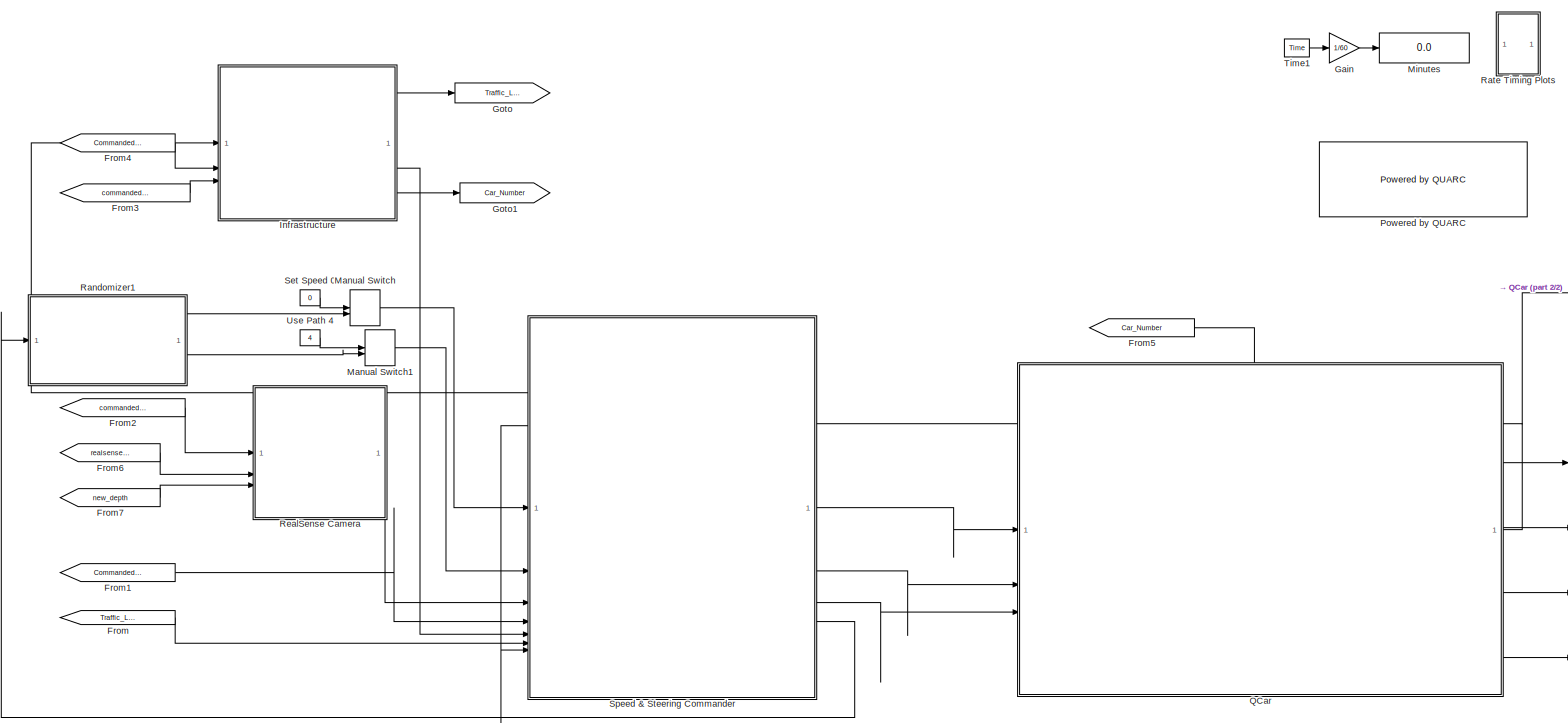
[diagram: root canvas - part 1/2, most of the canvas]
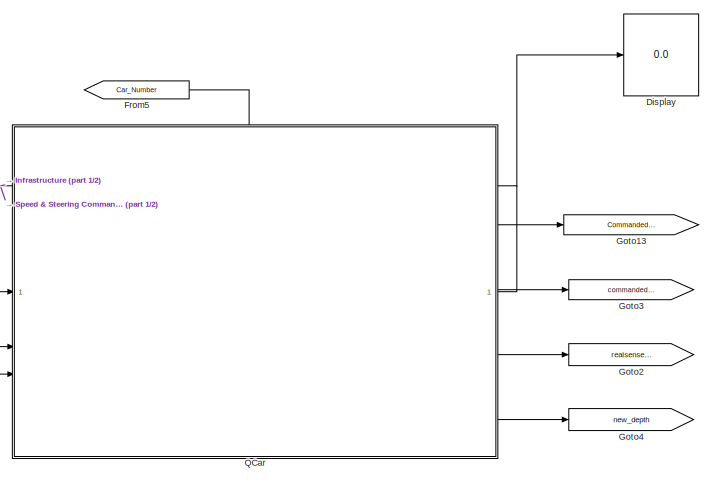
[diagram: root canvas - part 2/2, middle right region]
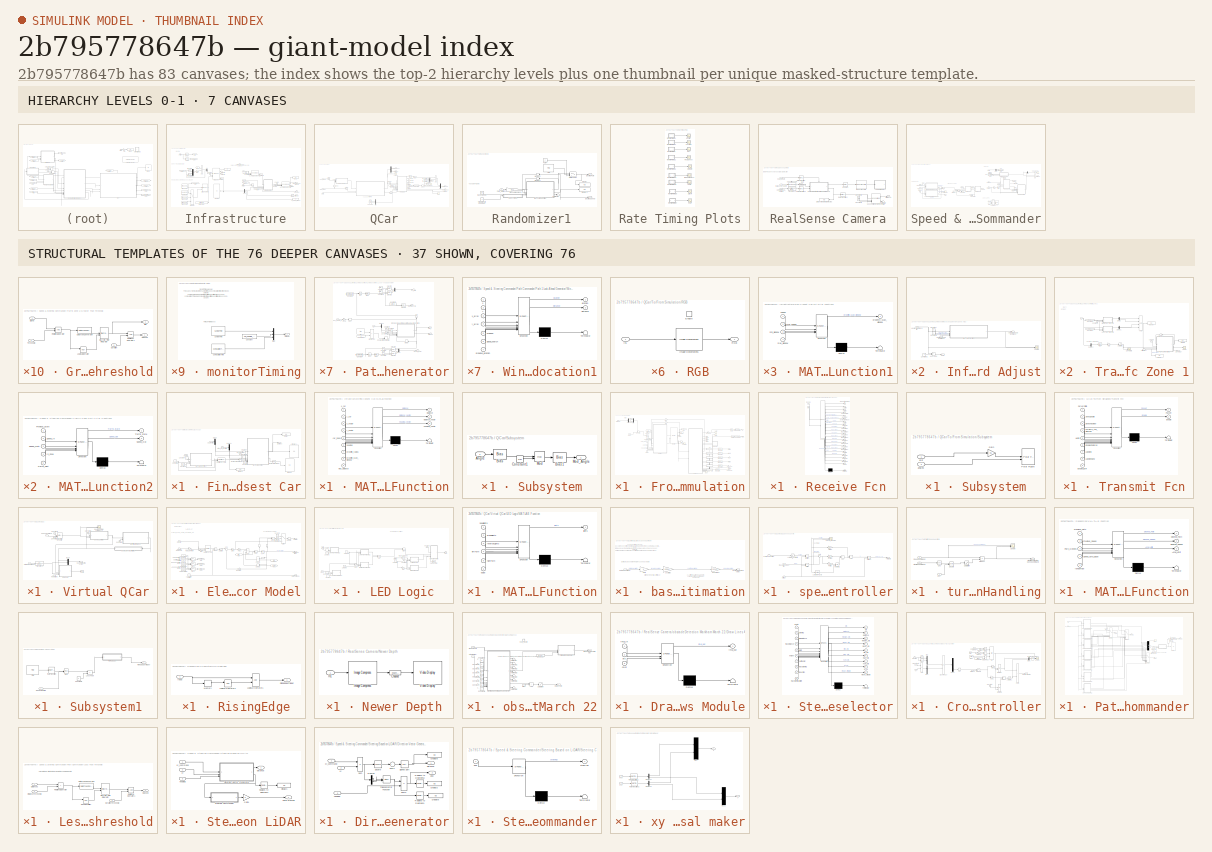
[diagram: thumbnail index - top-2 hierarchy levels (7 canvases) + 37 structural-template representatives of the remaining 76 canvases]
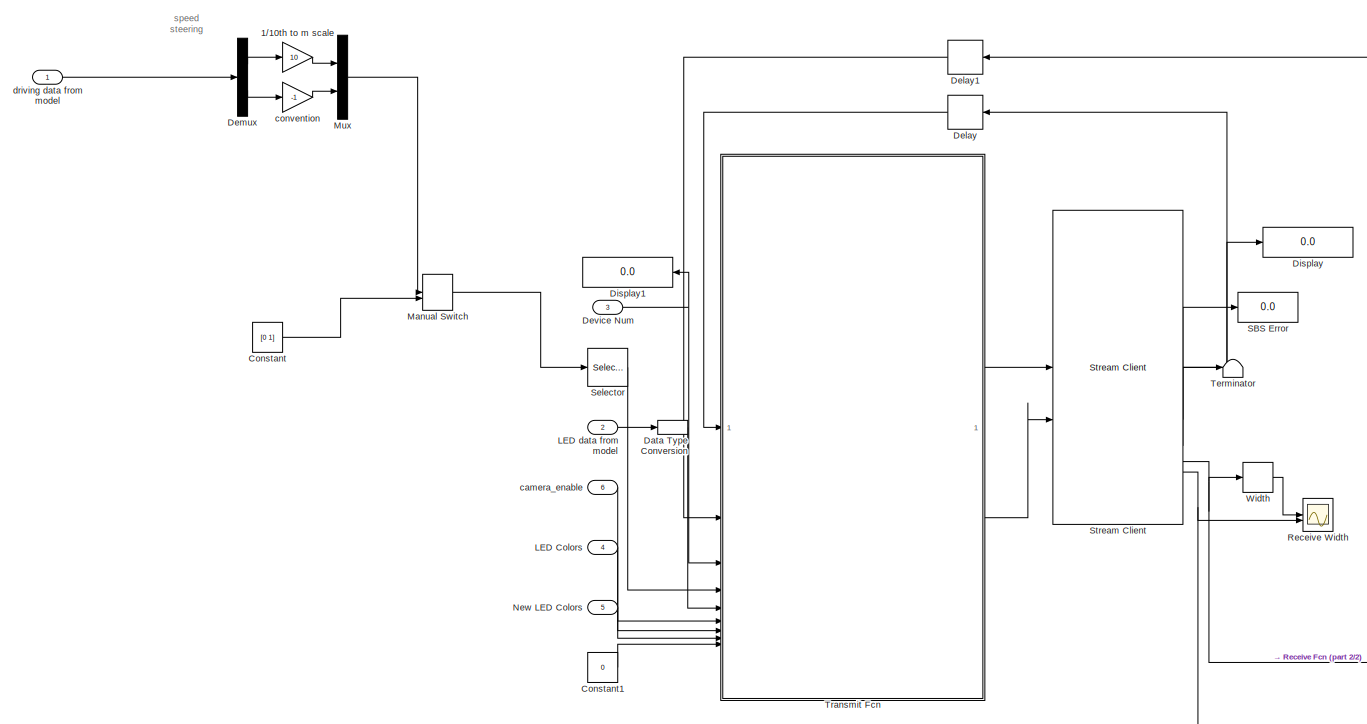
[diagram: QCar/To/From Simulation - part 1/2, middle left region]
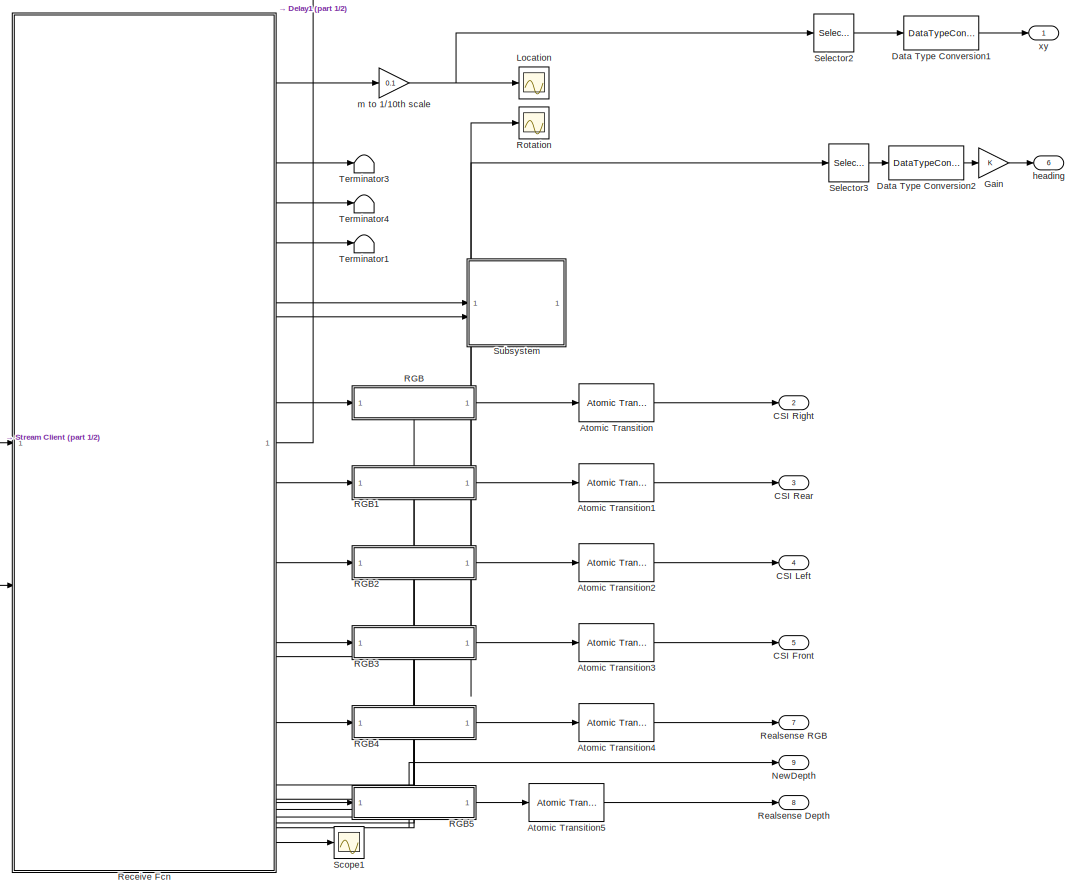
[diagram: QCar/To/From Simulation - part 2/2, right side, full height]
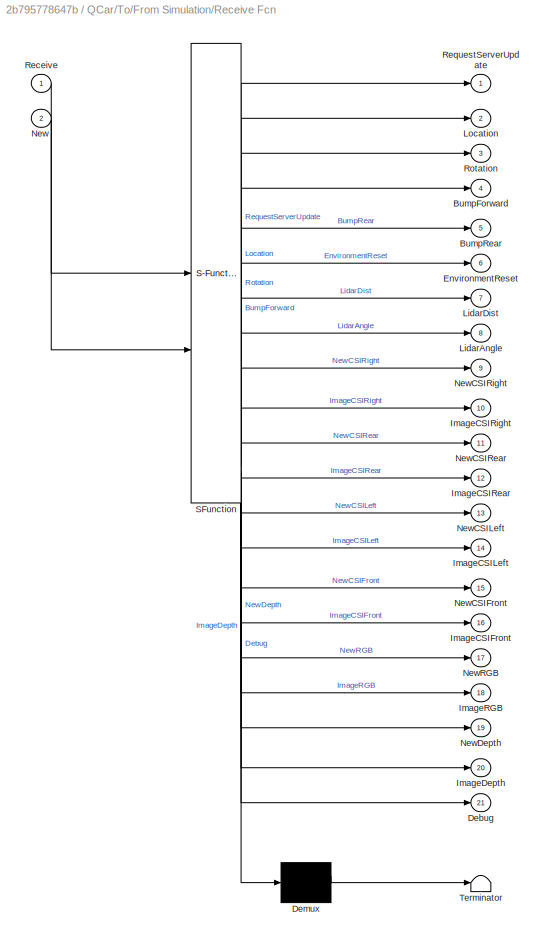
MODEL slx_2b795778647b
KIND model
CONFIG AbsTol = auto
CONFIG EnableMultiTasking = on
CONFIG FixedStep = Controller_Sample_Time
CONFIG MaxStep = auto
CONFIG MinStep = auto
CONFIG RelTol = 1e-3
CONFIG SampleTimeConstraint = Unconstrained
CONFIG SolverName = ode1
CONFIG StartTime = 0.0
CONFIG StopTime = inf
BLOCK [Display] Display
  Decimation = 1
BLOCK [From] From
  GotoTag = Traffic_Light
BLOCK [From] From1
  GotoTag = Commanded_Speed
BLOCK [From] From2
  GotoTag = commanded_steering
BLOCK [From] From3
  GotoTag = commanded_steering
BLOCK [From] From4
  GotoTag = Commanded_Speed
BLOCK [From] From5
  GotoTag = Car_Number
BLOCK [From] From6
  GotoTag = realsense_depth
BLOCK [From] From7
  GotoTag = new_depth
BLOCK [Gain] Gain
  Gain = 1/60
BLOCK [Goto] Goto
  GotoTag = Traffic_Light
BLOCK [Goto] Goto1
  GotoTag = Car_Number
BLOCK [Goto] Goto13
  GotoTag = Commanded_Speed
BLOCK [Goto] Goto2
  GotoTag = realsense_depth
BLOCK [Goto] Goto3
  GotoTag = commanded_steering
BLOCK [Goto] Goto4
  GotoTag = new_depth
BLOCK [SubSystem] Infrastructure
BLOCK [Display] Infrastructure/2 is connected
  Decimation = 100
BLOCK [Sum] Infrastructure/Add
  IconShape = rectangular
BLOCK [Display] Infrastructure/All QCar Data
BLOCK [Saturate] Infrastructure/Bool Sat
  LowerLimit = 0
  UpperLimit = 1
BLOCK [Constant] Infrastructure/Constant1
  Value = 10
BLOCK [Constant] Infrastructure/Constant2
BLOCK [Constant] Infrastructure/Constant4
BLOCK [Constant] Infrastructure/Constant6
  Value = 10
BLOCK [Constant] Infrastructure/Constant7
BLOCK [Demux] Infrastructure/Demux
  Outputs = [10 1 1]
BLOCK [Display] Infrastructure/Display
BLOCK [Outport] Infrastructure/Distance to closest car ahead
  Port = 2
BLOCK [SubSystem] Infrastructure/Find Closest Car
BLOCK [Constant] Infrastructure/Find Closest Car/Constant1
  Value = 65
BLOCK [Constant] Infrastructure/Find Closest Car/Constant2
  Value = 45
BLOCK [Constant] Infrastructure/Find Closest Car/Constant6
BLOCK [Constant] Infrastructure/Find Closest Car/Constant7
BLOCK [Constant] Infrastructure/Find Closest Car/Constant8
  Value = 10
BLOCK [Reference] Infrastructure/Find Closest Car/Degrees to Radians  REF=simulink_extras/Transformations/Degrees to
Radians
  SourceBlock = simulink_extras/Transformations/Degrees to\nRadians
  SourceType = DegreesToRadians
BLOCK [Demux] Infrastructure/Find Closest Car/Demux
  Outputs = 2
BLOCK [Demux] Infrastructure/Find Closest Car/Demux1
  Outputs = 2
BLOCK [Display] Infrastructure/Find Closest Car/Display
  Decimation = 100
BLOCK [Display] Infrastructure/Find Closest Car/Display1
  Decimation = 100
BLOCK [Display] Infrastructure/Find Closest Car/Display2
  Decimation = 100
BLOCK [Display] Infrastructure/Find Closest Car/Display3
  Decimation = 100
BLOCK [SubSystem] Infrastructure/Find Closest Car/MATLAB Function
  ErrorFcn = Stateflow.Translate.translate
  PermitHierarchicalResolution = ExplicitOnly
  SFBlockType = MATLAB Function
  TreatAsAtomicUnit = on
BLOCK [Demux] Infrastructure/Find Closest Car/MATLAB Function/ Demux 
  Outputs = 1
BLOCK [S-Function] Infrastructure/Find Closest Car/MATLAB Function/ SFunction 
  EnableBusSupport = on
  FunctionName = sf_sfun
  PortCounts = [9 4]
  SFcnIsStateOwnerBlock = off
  SFunctionDeploymentMode = off
  Tag = Stateflow S-Function 27
BLOCK [Terminator] Infrastructure/Find Closest Car/MATLAB Function/ Terminator 
BLOCK [Inport] Infrastructure/Find Closest Car/MATLAB Function/car_index
  Port = 5
BLOCK [Outport] Infrastructure/Find Closest Car/MATLAB Function/distance
  VectorParamsAs1DForOutWhenUnconnected = off
BLOCK [Outport] Infrastructure/Find Closest Car/MATLAB Function/distance_vector
  Port = 2
BLOCK [Inport] Infrastructure/Find Closest Car/MATLAB Function/heading
  Port = 6
BLOCK [Outport] Infrastructure/Find Closest Car/MATLAB Function/heading_vector
  Port = 3
BLOCK [Inport] Infrastructure/Find Closest Car/MATLAB Function/max_distance
  Port = 9
BLOCK [Inport] Infrastructure/Find Closest Car/MATLAB Function/proximity_radius
  Port = 7
BLOCK [Inport] Infrastructure/Find Closest Car/MATLAB Function/proximity_scan_window
  Port = 8
BLOCK [Inport] Infrastructure/Find Closest Car/MATLAB Function/x_car
BLOCK [Inport] Infrastructure/Find Closest Car/MATLAB Function/x_vector
  Port = 3
BLOCK [Inport] Infrastructure/Find Closest Car/MATLAB Function/y_car
  Port = 2
BLOCK [Inport] Infrastructure/Find Closest Car/MATLAB Function/y_vector
  Port = 4
BLOCK [SubSystem] Infrastructure/Find Closest Car/MATLAB Function1
  ErrorFcn = Stateflow.Translate.translate
  PermitHierarchicalResolution = ExplicitOnly
  SFBlockType = MATLAB Function
  TreatAsAtomicUnit = on
BLOCK [Demux] Infrastructure/Find Closest Car/MATLAB Function1/ Demux 
  Outputs = 1
BLOCK [S-Function] Infrastructure/Find Closest Car/MATLAB Function1/ SFunction 
  EnableBusSupport = on
  FunctionName = sf_sfun
  PortCounts = [4 2]
  SFcnIsStateOwnerBlock = off
  SFunctionDeploymentMode = off
  Tag = Stateflow S-Function 29
BLOCK [Terminator] Infrastructure/Find Closest Car/MATLAB Function1/ Terminator 
BLOCK [Inport] Infrastructure/Find Closest Car/MATLAB Function1/max_speed
  Port = 2
BLOCK [Inport] Infrastructure/Find Closest Car/MATLAB Function1/max_window
  Port = 4
BLOCK [Inport] Infrastructure/Find Closest Car/MATLAB Function1/min_window
  Port = 3
BLOCK [Outport] Infrastructure/Find Closest Car/MATLAB Function1/proximity_scan_window
  VectorParamsAs1DForOutWhenUnconnected = off
BLOCK [Inport] Infrastructure/Find Closest Car/MATLAB Function1/speed
BLOCK [Reference] Infrastructure/Find Closest Car/Radians to Degrees  REF=simulink_extras/Transformations/Radians
to Degrees
  SourceBlock = simulink_extras/Transformations/Radians\nto Degrees
  SourceType = RadiansToDegrees
BLOCK [Reference] Infrastructure/Find Closest Car/Saturation Dynamic  REF=simulink/Discontinuities/Saturation
Dynamic
  SourceBlock = simulink/Discontinuities/Saturation\nDynamic
  SourceType = Saturation Dynamic
BLOCK [Inport] Infrastructure/Find Closest Car/car_heading
  Port = 3
BLOCK [Inport] Infrastructure/Find Closest Car/car_index
  Port = 5
BLOCK [Inport] Infrastructure/Find Closest Car/car_position
  Port = 2
BLOCK [Outport] Infrastructure/Find Closest Car/distance
BLOCK [Inport] Infrastructure/Find Closest Car/other_car_position
  Port = 4
BLOCK [Inport] Infrastructure/Find Closest Car/speed 
BLOCK [From] Infrastructure/From
  GotoTag = car_number
BLOCK [From] Infrastructure/From1
  CloseFcn = tagdialog Close
  GotoTag = mod_heading
BLOCK [From] Infrastructure/From16
  CloseFcn = tagdialog Close
  GotoTag = mod_heading
BLOCK [From] Infrastructure/From19
  CloseFcn = tagdialog Close
  GotoTag = xy
BLOCK [From] Infrastructure/From9
  CloseFcn = tagdialog Close
  GotoTag = xy
BLOCK [Gain] Infrastructure/Gain1
  Gain = .11537*1
BLOCK [Goto] Infrastructure/Goto
  GotoTag = car_number
BLOCK [Goto] Infrastructure/Goto3
  GotoTag = mod_heading
BLOCK [Goto] Infrastructure/Goto7
  GotoTag = xy
BLOCK [Reference] Infrastructure/Infrastructure URI  REF=quarc_library/Strings/String Display
  SourceBlock = quarc_library/Strings/String Display
  SourceProductName = QUARC Targets
  SourceType = String Display
BLOCK [Reference] Infrastructure/Model Argument  REF=quarc_library/Sources/Signals/Model Argument
  AttributesFormatString = (-%<argument_name>)
  SourceBlock = quarc_library/Sources/Signals/Model Argument
  SourceProductName = QUARC Targets
  SourceType = Model Argument
BLOCK [MultiPortSwitch] Infrastructure/Multiport Switch
  DataPortIndices = {4,5}
  DataPortOrder = Specify indices
  InputSameDT = off
  SaturateOnIntegerOverflow = off
BLOCK [Mux] Infrastructure/Mux
  DisplayOption = bar
  Inputs = 2
BLOCK [Mux] Infrastructure/Mux3
  DisplayOption = bar
  Inputs = 2
BLOCK [Reference] Infrastructure/Second-Order Low-Pass Filter  REF=quarc_library/Continuous/Second-Order
Low-Pass Filter
  SourceBlock = quarc_library/Continuous/Second-Order\nLow-Pass Filter
  SourceProductName = QUARC Targets
  SourceType = Second-Order Low-Pass Filter
BLOCK [Reference] Infrastructure/Second-Order Low-Pass Filter1  REF=quarc_library/Continuous/Second-Order
Low-Pass Filter
  SourceBlock = quarc_library/Continuous/Second-Order\nLow-Pass Filter
  SourceProductName = QUARC Targets
  SourceType = Second-Order Low-Pass Filter
BLOCK [Selector] Infrastructure/Selector
  IndexOptions = Index vector (dialog)
  Indices = 1:2
  InputPortWidth = 3
  OutputSizes = 1
BLOCK [Selector] Infrastructure/Selector1
  IndexOptions = Index vector (dialog)
  Indices = 3
  InputPortWidth = 3
  OutputSizes = 1
BLOCK [Inport] Infrastructure/Steering
  Port = 3
BLOCK [Reference] Infrastructure/Stream Server  REF=quarc_library/Communications/Basic/Stream Server
  SourceBlock = quarc_library/Communications/Basic/Stream Server
  SourceProductName = QUARC Targets
  SourceType = Stream Server
BLOCK [Reference] Infrastructure/String Concatenate  REF=quarc_library/Strings/String Concatenate
  SourceBlock = quarc_library/Strings/String Concatenate
  SourceProductName = QUARC Targets
  SourceType = String Concatenate
BLOCK [Reference] Infrastructure/String Constant  REF=quarc_library/Strings/String Constant
  AttributesFormatString = "tcpip://localhost:"
  SourceBlock = quarc_library/Strings/String Constant
  SourceProductName = QUARC Targets
  SourceType = String Constant
BLOCK [Reference] Infrastructure/String Constant1  REF=quarc_library/Strings/String Constant
  AttributesFormatString = "4444"
  SourceBlock = quarc_library/Strings/String Constant
  SourceProductName = QUARC Targets
  SourceType = String Constant
BLOCK [Reference] Infrastructure/String Constant2  REF=quarc_library/Strings/String Constant
  AttributesFormatString = "5555"
  SourceBlock = quarc_library/Strings/String Constant
  SourceProductName = QUARC Targets
  SourceType = String Constant
BLOCK [Sum] Infrastructure/Sum1
  IconShape = rectangular
  Inputs = +-
BLOCK [Terminator] Infrastructure/Terminator
BLOCK [Terminator] Infrastructure/Terminator1
BLOCK [Terminator] Infrastructure/Terminator2
BLOCK [Terminator] Infrastructure/Terminator3
BLOCK [Terminator] Infrastructure/Terminator4
BLOCK [Outport] Infrastructure/Traffic Light
BLOCK [Trigonometry] Infrastructure/Trigonometric Function
  Operator = cos
BLOCK [Trigonometry] Infrastructure/Trigonometric Function1
BLOCK [Outport] Infrastructure/car_number
  Port = 3
BLOCK [Display] Infrastructure/car_number_streamed
  Decimation = 1
BLOCK [Inport] Infrastructure/position
BLOCK [Inport] Infrastructure/speed 
  Port = 2
BLOCK [ManualSwitch] Manual Switch
  CurrentSetting = 0
BLOCK [ManualSwitch] Manual Switch1
  CurrentSetting = 0
BLOCK [Display] Minutes
BLOCK [Reference] Powered by QUARC  REF=quarc_library/Logos/Powered by QUARC
  SourceBlock = quarc_library/Logos/Powered by QUARC
  SourceProductName = QUARC Targets
  SourceType = Powered by QUARC
BLOCK [SubSystem] QCar
  PortSchema = {"entries":[{"content":{"sides":[{"content":{"connectorIds":["In1","In2","In3"]},"type":"ConnectorPlacement.EquallySpacedRectSide","uuid":"02a1560c-0405-4b97-a286-7d926425b90e"},{"content":{"connectorIds":["Out1","Out2","Out3","Out4","Out5"],"side":"RIGHT"},"type":"ConnectorPlacement.EquallySpacedRectSide","uuid":"39c5c8b2-4245-4ec7-b5b3-4c98e6a2673a"},{"content":{"connectorIds":["In4"],"side":"TO...<+285ch>
BLOCK [Inport] QCar/Car Number
  Port = 4
BLOCK [Scope] QCar/Commands
  Floating = off
  NumInputPorts = 1
  ScopeSpecificationString = Simulink.scopes.TimeScopeBlockCfg('CurrentConfiguration', extmgr.ConfigurationSet(extmgr.Configuration('Core','General UI',true),extmgr.Configuration('Core','Source UI',true),extmgr.Configuration('Sources','WiredSimulink',true,'DataLoggingVariableName','ScopeData2'),extmgr.Configuration('Visuals','Time Domain',true,'SerializedDisplays',{struct('MinYLimReal','-0.77061','MaxYLimReal','1.20463','YLab...<+1432ch>
BLOCK [Constant] QCar/Constant
  SampleTime = RealSense_Sample_Time
  Value = [0 0 0 0 0]
BLOCK [Constant] QCar/Constant2
  Value = 20
BLOCK [Constant] QCar/Constant5
  Value = 0
BLOCK [Constant] QCar/Constant8
  Value = zeros (3,33)
BLOCK [Demux] QCar/Demux
  Outputs = 2
BLOCK [Gain] QCar/Gain1
  Gain = .11537*2
BLOCK [Gain] QCar/Gain3
  Gain = [1 1]
BLOCK [Inport] QCar/Hazard
  Port = 3
BLOCK [Scope] QCar/Heading
  Floating = off
  NumInputPorts = 1
  ScopeSpecificationString = Simulink.scopes.TimeScopeBlockCfg('CurrentConfiguration', extmgr.ConfigurationSet(extmgr.Configuration('Core','General UI',true),extmgr.Configuration('Core','Source UI',true),extmgr.Configuration('Sources','WiredSimulink',true,'DataLoggingVariableName','ScopeData1'),extmgr.Configuration('Visuals','Time Domain',true,'SerializedDisplays',{struct('MinYLimReal','-224.99895','MaxYLimReal','224.99951','...<+1464ch>
BLOCK [Reference] QCar/Inverse Modulus  REF=quarc_library/Discontinuities/Inverse
Modulus
  SourceBlock = quarc_library/Discontinuities/Inverse\nModulus
  SourceProductName = QUARC Targets
  SourceType = Inverse Modulus
BLOCK [Memory] QCar/Memory
BLOCK [Memory] QCar/Memory1
  InheritSampleTime = on
  InitialCondition = zeros (1,16)
  LinearizeAsDelay = on
  LinearizeMemory = on
BLOCK [Memory] QCar/Memory2
  InheritSampleTime = on
  LinearizeAsDelay = on
  LinearizeMemory = on
  NameLocation = right
BLOCK [Memory] QCar/Memory5
  InheritSampleTime = on
  InitialCondition = [0 0]
  LinearizeAsDelay = on
  LinearizeMemory = on
BLOCK [Memory] QCar/Memory6
  InheritSampleTime = on
  LinearizeAsDelay = on
  LinearizeMemory = on
BLOCK [Mux] QCar/Mux
  DisplayOption = bar
  Inputs = 2
BLOCK [Mux] QCar/Mux1
  DisplayOption = bar
  Inputs = 2
BLOCK [Mux] QCar/Mux3
  DisplayOption = bar
  Inputs = 2
BLOCK [Outport] QCar/NewDepth
  Port = 5
BLOCK [Outport] QCar/Position (x,y,theta)
BLOCK [DiscretePulseGenerator] QCar/Pulse Generator
  SampleTime = RealSense_Sample_Time
BLOCK [Reference] QCar/Radians to Degrees  REF=simulink_extras/Transformations/Radians
to Degrees
  SourceBlock = simulink_extras/Transformations/Radians\nto Degrees
  SourceType = RadiansToDegrees
BLOCK [Outport] QCar/Realsense Depth
  Port = 4
BLOCK [Saturate] QCar/Saturation
  LowerLimit = -0.6
  UpperLimit = 0.6
BLOCK [Scope] QCar/Scope
  Floating = off
  NumInputPorts = 1
  ScopeSpecificationString = Simulink.scopes.TimeScopeBlockCfg('CurrentConfiguration', extmgr.ConfigurationSet(extmgr.Configuration('Core','General UI',true),extmgr.Configuration('Core','Source UI',true),extmgr.Configuration('Sources','WiredSimulink',true,'DataLoggingVariableName','ScopeData1'),extmgr.Configuration('Visuals','Time Domain',true),extmgr.Configuration('Tools','Plot Navigation',true),extmgr.Configuration('Tools',...<+40ch>
BLOCK [Inport] QCar/Speed_Cmd (m//s)
BLOCK [Inport] QCar/Steering_Cmd (rad)
  Port = 2
BLOCK [SubSystem] QCar/Subsystem
BLOCK [Inport] QCar/Subsystem/Angle
BLOCK [Bias] QCar/Subsystem/Bias
  Bias = pi
  SaturateOnIntegerOverflow = off
BLOCK [Bias] QCar/Subsystem/Bias1
  Bias = -pi
  SaturateOnIntegerOverflow = off
BLOCK [Constant] QCar/Subsystem/Constant1
  Value = 2*pi
BLOCK [Math] QCar/Subsystem/Mod
  Operator = mod
BLOCK [Outport] QCar/Subsystem/Mod_Angle
BLOCK [Sum] QCar/Sum1
  IconShape = rectangular
BLOCK [Terminator] QCar/Terminator
BLOCK [Terminator] QCar/Terminator1
BLOCK [Terminator] QCar/Terminator2
BLOCK [Terminator] QCar/Terminator3
BLOCK [Terminator] QCar/Terminator4
BLOCK [SubSystem] QCar/To//From Simulation
BLOCK [Gain] QCar/To//From Simulation/1//10th to m scale
  Gain = 10
  NameLocation = top
BLOCK [Reference] QCar/To//From Simulation/Atomic Transition  REF=quarc_library/Advanced/Asynchronous/Atomic Transition
  SourceBlock = quarc_library/Advanced/Asynchronous/Atomic Transition
  SourceProductName = QUARC Targets
  SourceType = Atomic Transition
BLOCK [Reference] QCar/To//From Simulation/Atomic Transition1  REF=quarc_library/Advanced/Asynchronous/Atomic Transition
  SourceBlock = quarc_library/Advanced/Asynchronous/Atomic Transition
  SourceProductName = QUARC Targets
  SourceType = Atomic Transition
BLOCK [Reference] QCar/To//From Simulation/Atomic Transition2  REF=quarc_library/Advanced/Asynchronous/Atomic Transition
  SourceBlock = quarc_library/Advanced/Asynchronous/Atomic Transition
  SourceProductName = QUARC Targets
  SourceType = Atomic Transition
BLOCK [Reference] QCar/To//From Simulation/Atomic Transition3  REF=quarc_library/Advanced/Asynchronous/Atomic Transition
  SourceBlock = quarc_library/Advanced/Asynchronous/Atomic Transition
  SourceProductName = QUARC Targets
  SourceType = Atomic Transition
BLOCK [Reference] QCar/To//From Simulation/Atomic Transition4  REF=quarc_library/Advanced/Asynchronous/Atomic Transition
  SourceBlock = quarc_library/Advanced/Asynchronous/Atomic Transition
  SourceProductName = QUARC Targets
  SourceType = Atomic Transition
BLOCK [Reference] QCar/To//From Simulation/Atomic Transition5  REF=quarc_library/Advanced/Asynchronous/Atomic Transition
  SourceBlock = quarc_library/Advanced/Asynchronous/Atomic Transition
  SourceProductName = QUARC Targets
  SourceType = Atomic Transition
BLOCK [Outport] QCar/To//From Simulation/CSI Front
  Port = 5
BLOCK [Outport] QCar/To//From Simulation/CSI Left
  Port = 4
BLOCK [Outport] QCar/To//From Simulation/CSI Rear
  Port = 3
BLOCK [Outport] QCar/To//From Simulation/CSI Right
  Port = 2
BLOCK [Constant] QCar/To//From Simulation/Constant
  Value = [0 1]
BLOCK [Constant] QCar/To//From Simulation/Constant1
  Value = 0
BLOCK [DataTypeConversion] QCar/To//From Simulation/Data Type Conversion
  OutDataTypeStr = uint8
  RndMeth = Floor
  SaturateOnIntegerOverflow = off
BLOCK [DataTypeConversion] QCar/To//From Simulation/Data Type Conversion1
  RndMeth = Floor
  SaturateOnIntegerOverflow = off
BLOCK [DataTypeConversion] QCar/To//From Simulation/Data Type Conversion2
  RndMeth = Floor
  SaturateOnIntegerOverflow = off
BLOCK [Delay] QCar/To//From Simulation/Delay
  DelayLength = 1
  InputPortMap = u0
BLOCK [Delay] QCar/To//From Simulation/Delay1
  DelayLength = 1
  InputPortMap = u0
BLOCK [Demux] QCar/To//From Simulation/Demux
  Outputs = 2
BLOCK [Inport] QCar/To//From Simulation/Device Num
  Port = 3
BLOCK [Display] QCar/To//From Simulation/Display
  Decimation = 1
BLOCK [Display] QCar/To//From Simulation/Display1
  Decimation = 1
BLOCK [Gain] QCar/To//From Simulation/Gain
BLOCK [Inport] QCar/To//From Simulation/LED Colors
  Port = 4
BLOCK [Inport] QCar/To//From Simulation/LED data from model
  Port = 2
BLOCK [Scope] QCar/To//From Simulation/Location
  Floating = off
  NumInputPorts = 1
  ScopeSpecificationString = Simulink.scopes.TimeScopeBlockCfg('CurrentConfiguration', extmgr.ConfigurationSet(extmgr.Configuration('Core','General UI',true),extmgr.Configuration('Core','Source UI',true),extmgr.Configuration('Sources','WiredSimulink',true,'DataLoggingVariableName','ScopeData1'),extmgr.Configuration('Visuals','Time Domain',true,'SerializedDisplays',{struct('MinYLimReal','-5.15388','MaxYLimReal','0.85802','YLab...<+1468ch>
BLOCK [ManualSwitch] QCar/To//From Simulation/Manual Switch
BLOCK [Mux] QCar/To//From Simulation/Mux
  DisplayOption = bar
  Inputs = 2
BLOCK [Inport] QCar/To//From Simulation/New LED Colors
  Port = 5
BLOCK [Outport] QCar/To//From Simulation/NewDepth
  Port = 9
BLOCK [SubSystem] QCar/To//From Simulation/RGB
BLOCK [EnablePort] QCar/To//From Simulation/RGB/Enable
  StatesWhenEnabling = reset
BLOCK [Reference] QCar/To//From Simulation/RGB/Image Decompress  REF=quarc_library/Image Processing/Generic/Image Decompress
  AttributesFormatString = (%<algorithm>)
  SourceBlock = quarc_library/Image Processing/Generic/Image Decompress
  SourceProductName = QUARC Targets
  SourceType = Image Decompress
BLOCK [Inport] QCar/To//From Simulation/RGB/In1
BLOCK [Outport] QCar/To//From Simulation/RGB/RGB
  VectorParamsAs1DForOutWhenUnconnected = off
BLOCK [SubSystem] QCar/To//From Simulation/RGB1
BLOCK [EnablePort] QCar/To//From Simulation/RGB1/Enable
  StatesWhenEnabling = reset
BLOCK [Reference] QCar/To//From Simulation/RGB1/Image Decompress  REF=quarc_library/Image Processing/Generic/Image Decompress
  AttributesFormatString = (%<algorithm>)
  SourceBlock = quarc_library/Image Processing/Generic/Image Decompress
  SourceProductName = QUARC Targets
  SourceType = Image Decompress
BLOCK [Inport] QCar/To//From Simulation/RGB1/In1
BLOCK [Outport] QCar/To//From Simulation/RGB1/RGB
  VectorParamsAs1DForOutWhenUnconnected = off
BLOCK [SubSystem] QCar/To//From Simulation/RGB2
BLOCK [EnablePort] QCar/To//From Simulation/RGB2/Enable
  StatesWhenEnabling = reset
BLOCK [Reference] QCar/To//From Simulation/RGB2/Image Decompress  REF=quarc_library/Image Processing/Generic/Image Decompress
  AttributesFormatString = (%<algorithm>)
  SourceBlock = quarc_library/Image Processing/Generic/Image Decompress
  SourceProductName = QUARC Targets
  SourceType = Image Decompress
BLOCK [Inport] QCar/To//From Simulation/RGB2/In1
BLOCK [Outport] QCar/To//From Simulation/RGB2/RGB
  VectorParamsAs1DForOutWhenUnconnected = off
BLOCK [SubSystem] QCar/To//From Simulation/RGB3
BLOCK [EnablePort] QCar/To//From Simulation/RGB3/Enable
  StatesWhenEnabling = reset
BLOCK [Reference] QCar/To//From Simulation/RGB3/Image Decompress  REF=quarc_library/Image Processing/Generic/Image Decompress
  AttributesFormatString = (%<algorithm>)
  SourceBlock = quarc_library/Image Processing/Generic/Image Decompress
  SourceProductName = QUARC Targets
  SourceType = Image Decompress
BLOCK [Inport] QCar/To//From Simulation/RGB3/In1
BLOCK [Outport] QCar/To//From Simulation/RGB3/RGB
  VectorParamsAs1DForOutWhenUnconnected = off
BLOCK [SubSystem] QCar/To//From Simulation/RGB4
BLOCK [EnablePort] QCar/To//From Simulation/RGB4/Enable
  StatesWhenEnabling = reset
BLOCK [Reference] QCar/To//From Simulation/RGB4/Image Decompress  REF=quarc_library/Image Processing/Generic/Image Decompress
  AttributesFormatString = (%<algorithm>)
  SourceBlock = quarc_library/Image Processing/Generic/Image Decompress
  SourceProductName = QUARC Targets
  SourceType = Image Decompress
BLOCK [Inport] QCar/To//From Simulation/RGB4/In1
BLOCK [Outport] QCar/To//From Simulation/RGB4/RGB
  VectorParamsAs1DForOutWhenUnconnected = off
BLOCK [SubSystem] QCar/To//From Simulation/RGB5
BLOCK [EnablePort] QCar/To//From Simulation/RGB5/Enable
  StatesWhenEnabling = reset
BLOCK [Reference] QCar/To//From Simulation/RGB5/Image Decompress  REF=quarc_library/Image Processing/Generic/Image Decompress
  AttributesFormatString = (%<algorithm>)
  SourceBlock = quarc_library/Image Processing/Generic/Image Decompress
  SourceProductName = QUARC Targets
  SourceType = Image Decompress
BLOCK [Inport] QCar/To//From Simulation/RGB5/In1
BLOCK [Outport] QCar/To//From Simulation/RGB5/RGB
  VectorParamsAs1DForOutWhenUnconnected = off
BLOCK [Outport] QCar/To//From Simulation/Realsense Depth
  Port = 8
BLOCK [Outport] QCar/To//From Simulation/Realsense RGB
  Port = 7
BLOCK [SubSystem] QCar/To//From Simulation/Receive Fcn
  ErrorFcn = Stateflow.Translate.translate
  PermitHierarchicalResolution = ExplicitOnly
  SFBlockType = MATLAB Function
  TreatAsAtomicUnit = on
BLOCK [Demux] QCar/To//From Simulation/Receive Fcn/ Demux 
  Outputs = 1
BLOCK [S-Function] QCar/To//From Simulation/Receive Fcn/ SFunction 
  EnableBusSupport = on
  FunctionName = sf_sfun
  PortCounts = [2 22]
  SFcnIsStateOwnerBlock = off
  SFunctionDeploymentMode = off
  Tag = Stateflow S-Function 9
BLOCK [Terminator] QCar/To//From Simulation/Receive Fcn/ Terminator 
BLOCK [Outport] QCar/To//From Simulation/Receive Fcn/BumpForward
  Port = 4
  VectorParamsAs1DForOutWhenUnconnected = off
BLOCK [Outport] QCar/To//From Simulation/Receive Fcn/BumpRear
  Port = 5
  VectorParamsAs1DForOutWhenUnconnected = off
BLOCK [Outport] QCar/To//From Simulation/Receive Fcn/Debug
  Port = 21
BLOCK [Outport] QCar/To//From Simulation/Receive Fcn/EnvironmentReset
  Port = 6
  VectorParamsAs1DForOutWhenUnconnected = off
BLOCK [Outport] QCar/To//From Simulation/Receive Fcn/ImageCSIFront
  Port = 16
BLOCK [Outport] QCar/To//From Simulation/Receive Fcn/ImageCSILeft
  Port = 14
BLOCK [Outport] QCar/To//From Simulation/Receive Fcn/ImageCSIRear
  Port = 12
BLOCK [Outport] QCar/To//From Simulation/Receive Fcn/ImageCSIRight
  Port = 10
BLOCK [Outport] QCar/To//From Simulation/Receive Fcn/ImageDepth
  Port = 20
BLOCK [Outport] QCar/To//From Simulation/Receive Fcn/ImageRGB
  Port = 18
BLOCK [Outport] QCar/To//From Simulation/Receive Fcn/LidarAngle
  Port = 8
BLOCK [Outport] QCar/To//From Simulation/Receive Fcn/LidarDist
  Port = 7
BLOCK [Outport] QCar/To//From Simulation/Receive Fcn/Location
  Port = 2
  VectorParamsAs1DForOutWhenUnconnected = off
BLOCK [Inport] QCar/To//From Simulation/Receive Fcn/New
  Port = 2
BLOCK [Outport] QCar/To//From Simulation/Receive Fcn/NewCSIFront
  Port = 15
BLOCK [Outport] QCar/To//From Simulation/Receive Fcn/NewCSILeft
  Port = 13
BLOCK [Outport] QCar/To//From Simulation/Receive Fcn/NewCSIRear
  Port = 11
BLOCK [Outport] QCar/To//From Simulation/Receive Fcn/NewCSIRight
  Port = 9
BLOCK [Outport] QCar/To//From Simulation/Receive Fcn/NewDepth
  Port = 19
BLOCK [Outport] QCar/To//From Simulation/Receive Fcn/NewRGB
  Port = 17
BLOCK [Inport] QCar/To//From Simulation/Receive Fcn/Receive
BLOCK [Outport] QCar/To//From Simulation/Receive Fcn/RequestServerUpdate
  VectorParamsAs1DForOutWhenUnconnected = off
BLOCK [Outport] QCar/To//From Simulation/Receive Fcn/Rotation
  Port = 3
  VectorParamsAs1DForOutWhenUnconnected = off
BLOCK [Scope] QCar/To//From Simulation/Receive Width
  Floating = off
  NumInputPorts = 2
  ScopeSpecificationString = Simulink.scopes.TimeScopeBlockCfg('CurrentConfiguration', extmgr.ConfigurationSet(extmgr.Configuration('Core','General UI',true),extmgr.Configuration('Core','Source UI',true),extmgr.Configuration('Sources','WiredSimulink',true,'DataLoggingVariableName','ScopeData2'),extmgr.Configuration('Visuals','Time Domain',true,'SerializedDisplays',{struct('MinYLimReal','30.00000','MaxYLimReal','50.00000','YLa...<+2181ch>
BLOCK [Scope] QCar/To//From Simulation/Rotation
  Floating = off
  NumInputPorts = 1
  ScopeSpecificationString = Simulink.scopes.TimeScopeBlockCfg('CurrentConfiguration', extmgr.ConfigurationSet(extmgr.Configuration('Core','General UI',true),extmgr.Configuration('Core','Source UI',true),extmgr.Configuration('Sources','WiredSimulink',true,'DataLoggingVariableName','ScopeData3'),extmgr.Configuration('Visuals','Time Domain',true,'SerializedDisplays',{struct('MinYLimReal','-0.0000006','MaxYLimReal','0.00000007',...<+1565ch>
BLOCK [Display] QCar/To//From Simulation/SBS Error
  Decimation = 1
BLOCK [Scope] QCar/To//From Simulation/Scope1
  Floating = off
  NumInputPorts = 1
  ScopeSpecificationString = Simulink.scopes.TimeScopeBlockCfg('CurrentConfiguration', extmgr.ConfigurationSet(extmgr.Configuration('Core','General UI',true),extmgr.Configuration('Core','Source UI',true),extmgr.Configuration('Sources','WiredSimulink',true,'DataLoggingVariableName','ScopeData4'),extmgr.Configuration('Visuals','Time Domain',true,'SerializedDisplays',{struct('MinYLimReal','8197.85881','MaxYLimReal','8209.00103',...<+1469ch>
BLOCK [Selector] QCar/To//From Simulation/Selector
  IndexOptions = Index vector (dialog)
  Indices = [2 1]
  InputPortWidth = 2
  OutputSizes = 1
BLOCK [Selector] QCar/To//From Simulation/Selector2
  IndexOptions = Index vector (dialog)
  Indices = 1:2
  InputPortWidth = 3
  OutputSizes = 1
BLOCK [Selector] QCar/To//From Simulation/Selector3
  IndexOptions = Index vector (dialog)
  Indices = 3
  InputPortWidth = 3
  OutputSizes = 1
BLOCK [Reference] QCar/To//From Simulation/Stream Client  REF=quarc_library/Communications/Basic/Stream Client
  AttributesFormatString = "tcpip://localhost:18000?nagle='off'"
  SourceBlock = quarc_library/Communications/Basic/Stream Client
  SourceProductName = QUARC Targets
  SourceType = Stream Client
BLOCK [SubSystem] QCar/To//From Simulation/Subsystem
BLOCK [Gain] QCar/To//From Simulation/Subsystem/Gain
  Gain = 0.1
BLOCK [Reference] QCar/To//From Simulation/Subsystem/Polar Figure  REF=quarc_library/Sinks/Figures/Polar Figure
  SourceBlock = quarc_library/Sinks/Figures/Polar Figure
  SourceProductName = QUARC Targets
  SourceType = Polar Figure
BLOCK [Inport] QCar/To//From Simulation/Subsystem/angles
  Port = 2
BLOCK [Inport] QCar/To//From Simulation/Subsystem/dist
BLOCK [Terminator] QCar/To//From Simulation/Terminator
BLOCK [Terminator] QCar/To//From Simulation/Terminator1
BLOCK [Terminator] QCar/To//From Simulation/Terminator3
BLOCK [Terminator] QCar/To//From Simulation/Terminator4
BLOCK [SubSystem] QCar/To//From Simulation/Transmit Fcn
  ErrorFcn = Stateflow.Translate.translate
  PermitHierarchicalResolution = ExplicitOnly
  SFBlockType = MATLAB Function
  TreatAsAtomicUnit = on
BLOCK [Demux] QCar/To//From Simulation/Transmit Fcn/ Demux 
  Outputs = 1
BLOCK [S-Function] QCar/To//From Simulation/Transmit Fcn/ SFunction 
  EnableBusSupport = on
  FunctionName = sf_sfun
  PortCounts = [9 3]
  SFcnIsStateOwnerBlock = off
  SFunctionDeploymentMode = off
  Tag = Stateflow S-Function 6
BLOCK [Terminator] QCar/To//From Simulation/Transmit Fcn/ Terminator 
BLOCK [Inport] QCar/To//From Simulation/Transmit Fcn/DeviceNumber
  Port = 3
BLOCK [Outport] QCar/To//From Simulation/Transmit Fcn/Enable
  Port = 2
  VectorParamsAs1DForOutWhenUnconnected = off
BLOCK [Inport] QCar/To//From Simulation/Transmit Fcn/EnableCameras
  Port = 6
BLOCK [Inport] QCar/To//From Simulation/Transmit Fcn/EnableLIDAR
  Port = 9
BLOCK [Inport] QCar/To//From Simulation/Transmit Fcn/Forward_And_Steering
  Port = 4
BLOCK [Inport] QCar/To//From Simulation/Transmit Fcn/LEDStrip
  Port = 7
BLOCK [Inport] QCar/To//From Simulation/Transmit Fcn/LEDStripNew
  Port = 8
BLOCK [Inport] QCar/To//From Simulation/Transmit Fcn/Lights
  Port = 5
BLOCK [Outport] QCar/To//From Simulation/Transmit Fcn/Packet
  VectorParamsAs1DForOutWhenUnconnected = off
BLOCK [Inport] QCar/To//From Simulation/Transmit Fcn/SendUpdate
  Port = 2
BLOCK [Inport] QCar/To//From Simulation/Transmit Fcn/ServerState
BLOCK [Width] QCar/To//From Simulation/Width
BLOCK [Inport] QCar/To//From Simulation/camera_enable
  Port = 6
BLOCK [Gain] QCar/To//From Simulation/convention
  Gain = -1
BLOCK [Inport] QCar/To//From Simulation/driving data from model
BLOCK [Outport] QCar/To//From Simulation/heading
  Port = 6
BLOCK [Gain] QCar/To//From Simulation/m to 1//10th scale
  Gain = 0.1
BLOCK [Outport] QCar/To//From Simulation/xy
BLOCK [Trigonometry] QCar/Trigonometric Function
  Operator = cos
BLOCK [Trigonometry] QCar/Trigonometric Function1
BLOCK [SubSystem] QCar/Virtual QCar
BLOCK [Constant] QCar/Virtual QCar/Constant1
  Value = .3
BLOCK [Constant] QCar/Virtual QCar/Constant3
BLOCK [Constant] QCar/Virtual QCar/Constant4
  Value = 2
BLOCK [Constant] QCar/Virtual QCar/Constant5
  Value = -inf
BLOCK [SubSystem] QCar/Virtual QCar/Electric Motor Model
BLOCK [Signum] QCar/Virtual QCar/Electric Motor Model/ 
  NameLocation = top
BLOCK [Signum] QCar/Virtual QCar/Electric Motor Model/  
  NameLocation = right
BLOCK [Signum] QCar/Virtual QCar/Electric Motor Model/   
  NameLocation = left
BLOCK [Constant] QCar/Virtual QCar/Electric Motor Model/100% Battery Health
  Value = 12.6
BLOCK [Constant] QCar/Virtual QCar/Electric Motor Model/Added kinectic friction from road
  NameLocation = left
  Value = 0.0015
BLOCK [Constant] QCar/Virtual QCar/Electric Motor Model/Added viscous friction from road
  NameLocation = left
  Value = 2.5e-6
BLOCK [Gain] QCar/Virtual QCar/Electric Motor Model/Back EMF
  Gain = 0.0025
  NameLocation = top
BLOCK [Outport] QCar/Virtual QCar/Electric Motor Model/Battery Voltage (V)
  Port = 3
BLOCK [Reference] QCar/Virtual QCar/Electric Motor Model/Compare To Constant  REF=simulink/Logic and Bit
Operations/Compare
To Constant
  SourceBlock = simulink/Logic and Bit\nOperations/Compare\nTo Constant
  SourceType = Compare To Constant
BLOCK [Constant] QCar/Virtual QCar/Electric Motor Model/Constant1
  Value = 0
BLOCK [Gain] QCar/Virtual QCar/Electric Motor Model/Convention (QCar motor drive is inverted)
  NameLocation = top
BLOCK [Gain] QCar/Virtual QCar/Electric Motor Model/Current
  Gain = 1/0.6
BLOCK [Outport] QCar/Virtual QCar/Electric Motor Model/Current (A)
  Port = 2
BLOCK [Product] QCar/Virtual QCar/Electric Motor Model/Divide
  Inputs = */
BLOCK [From] QCar/Virtual QCar/Electric Motor Model/From
  GotoTag = inertia
BLOCK [From] QCar/Virtual QCar/Electric Motor Model/From1
  GotoTag = damping
  NameLocation = top
BLOCK [From] QCar/Virtual QCar/Electric Motor Model/From2
  GotoTag = friction
  NameLocation = top
BLOCK [Gain] QCar/Virtual QCar/Electric Motor Model/Gain
  Gain = -1
BLOCK [Goto] QCar/Virtual QCar/Electric Motor Model/Goto
  GotoTag = inertia
BLOCK [Goto] QCar/Virtual QCar/Electric Motor Model/Goto1
  GotoTag = damping
BLOCK [Goto] QCar/Virtual QCar/Electric Motor Model/Goto2
  GotoTag = friction
BLOCK [Constant] QCar/Virtual QCar/Electric Motor Model/Load - 1 No load - 0
  NameLocation = top
BLOCK [Outport] QCar/Virtual QCar/Electric Motor Model/Motor Speed (rad//s)
BLOCK [Constant] QCar/Virtual QCar/Electric Motor Model/Motor damping
  NameLocation = left
  Value = 1.0e-6
BLOCK [Constant] QCar/Virtual QCar/Electric Motor Model/Motor kinectic friction
  NameLocation = left
  Value = 0.0001
BLOCK [Constant] QCar/Virtual QCar/Electric Motor Model/Motor//Differential//Wheel inertia
  NameLocation = left
  Value = 0.3e-6
BLOCK [Constant] QCar/Virtual QCar/Electric Motor Model/No load inertia plus road
  NameLocation = left
  Value = 0.3e-5
BLOCK [Product] QCar/Virtual QCar/Electric Motor Model/Product
BLOCK [Product] QCar/Virtual QCar/Electric Motor Model/Product1
BLOCK [RateLimiter] QCar/Virtual QCar/Electric Motor Model/Rate Limiter
  FallingSlewLimit = -1*10
  RisingSlewLimit = 1*10
  SampleTimeMode = inherited
BLOCK [Saturate] QCar/Virtual QCar/Electric Motor Model/Saturation
  LowerLimit = -12.6
  UpperLimit = 12.6
BLOCK [Reference] QCar/Virtual QCar/Electric Motor Model/Saturation Dynamic  REF=simulink/Discontinuities/Saturation
Dynamic
  SourceBlock = simulink/Discontinuities/Saturation\nDynamic
  SourceType = Saturation Dynamic
BLOCK [Sum] QCar/Virtual QCar/Electric Motor Model/Sum1
  Inputs = |+-
BLOCK [Sum] QCar/Virtual QCar/Electric Motor Model/Sum2
  IconShape = rectangular
  Inputs = +--
BLOCK [Switch] QCar/Virtual QCar/Electric Motor Model/Switch
  Criteria = u2 > Threshold
  InputSameDT = off
  SaturateOnIntegerOverflow = off
BLOCK [Switch] QCar/Virtual QCar/Electric Motor Model/Switch1
  Criteria = u2 > Threshold
  InputSameDT = off
  SaturateOnIntegerOverflow = off
BLOCK [Switch] QCar/Virtual QCar/Electric Motor Model/Switch2
  Criteria = u2 > Threshold
  InputSameDT = off
  SaturateOnIntegerOverflow = off
BLOCK [Switch] QCar/Virtual QCar/Electric Motor Model/Switch3
  Criteria = u2 > Threshold
  InputSameDT = off
  SaturateOnIntegerOverflow = off
BLOCK [Gain] QCar/Virtual QCar/Electric Motor Model/Torque
  Gain = 0.0025
BLOCK [Product] QCar/Virtual QCar/Electric Motor Model/coloumb
BLOCK [Product] QCar/Virtual QCar/Electric Motor Model/damping
BLOCK [Inport] QCar/Virtual QCar/Electric Motor Model/motor PWM Command (%)
BLOCK [Inport] QCar/Virtual QCar/Electric Motor Model/motor_limit
  Port = 2
BLOCK [Integrator] QCar/Virtual QCar/Electric Motor Model/q_dot
BLOCK [Inport] QCar/Virtual QCar/Headlights
  NameLocation = left
  Port = 3
BLOCK [SubSystem] QCar/Virtual QCar/LED Logic
BLOCK [Logic] QCar/Virtual QCar/LED Logic/ Brake
  AllPortsSameDT = off
  IconShape = distinctive
  Operator = OR
  OutDataTypeStr = boolean
BLOCK [Logic] QCar/Virtual QCar/LED Logic/AND
  AllPortsSameDT = off
  IconShape = distinctive
  OutDataTypeStr = boolean
BLOCK [Constant] QCar/Virtual QCar/LED Logic/Constant1
  Value = 20
BLOCK [Constant] QCar/Virtual QCar/LED Logic/Constant2
  Value = .1
BLOCK [Constant] QCar/Virtual QCar/LED Logic/Constant3
  Value = 0
BLOCK [Constant] QCar/Virtual QCar/LED Logic/Constant4
  Value = .1
BLOCK [Constant] QCar/Virtual QCar/LED Logic/Constant5
  Value = 0
BLOCK [Constant] QCar/Virtual QCar/LED Logic/Constant6
  Value = .2
BLOCK [Constant] QCar/Virtual QCar/LED Logic/Constant7
  Value = .01
BLOCK [Constant] QCar/Virtual QCar/LED Logic/Constant8
  Value = .1
BLOCK [Gain] QCar/Virtual QCar/LED Logic/Gain
  Gain = -1
BLOCK [Gain] QCar/Virtual QCar/LED Logic/Gain1
  Gain = -1
BLOCK [SubSystem] QCar/Virtual QCar/LED Logic/Greater Than Threshold1
BLOCK [DataTypeConversion] QCar/Virtual QCar/LED Logic/Greater Than Threshold1/Data Type Conversion
  RndMeth = Floor
  SaturateOnIntegerOverflow = off
BLOCK [DiscreteIntegrator] QCar/Virtual QCar/LED Logic/Greater Than Threshold1/Discrete-Time Integrator
  ExternalReset = level
  ICPrevOutput = DiscIntNeverNeededParam
  ICPrevScaledInput = DiscIntNeverNeededParam
  NameLocation = top
  Priority = 1
  SampleTime = qc_get_step_size
BLOCK [Inport] QCar/Virtual QCar/LED Logic/Greater Than Threshold1/Duration
  Port = 3
BLOCK [Logic] QCar/Virtual QCar/LED Logic/Greater Than Threshold1/Logical Operator
  AllPortsSameDT = off
  Operator = NOT
  OutDataTypeStr = boolean
BLOCK [RelationalOperator] QCar/Virtual QCar/LED Logic/Greater Than Threshold1/Relational Operator
  InputSameDT = off
BLOCK [RelationalOperator] QCar/Virtual QCar/LED Logic/Greater Than Threshold1/Relational Operator1
  InputSameDT = off
BLOCK [Inport] QCar/Virtual QCar/LED Logic/Greater Than Threshold1/Signal
BLOCK [Inport] QCar/Virtual QCar/LED Logic/Greater Than Threshold1/Threshold
  Port = 2
BLOCK [Outport] QCar/Virtual QCar/LED Logic/Greater Than Threshold1/elapsed
  VectorParamsAs1DForOutWhenUnconnected = off
BLOCK [Outport] QCar/Virtual QCar/LED Logic/Greater Than Threshold1/time
  Port = 2
  VectorParamsAs1DForOutWhenUnconnected = off
BLOCK [Inport] QCar/Virtual QCar/LED Logic/Headlights
  Port = 4
BLOCK [Outport] QCar/Virtual QCar/LED Logic/LEDs
BLOCK [SubSystem] QCar/Virtual QCar/LED Logic/Left Threshold
BLOCK [DataTypeConversion] QCar/Virtual QCar/LED Logic/Left Threshold/Data Type Conversion
  RndMeth = Floor
  SaturateOnIntegerOverflow = off
BLOCK [DiscreteIntegrator] QCar/Virtual QCar/LED Logic/Left Threshold/Discrete-Time Integrator
  ExternalReset = level
  ICPrevOutput = DiscIntNeverNeededParam
  ICPrevScaledInput = DiscIntNeverNeededParam
  NameLocation = top
  Priority = 1
  SampleTime = qc_get_step_size
BLOCK [Inport] QCar/Virtual QCar/LED Logic/Left Threshold/Duration
  Port = 3
BLOCK [Logic] QCar/Virtual QCar/LED Logic/Left Threshold/Logical Operator
  AllPortsSameDT = off
  Operator = NOT
  OutDataTypeStr = boolean
BLOCK [RelationalOperator] QCar/Virtual QCar/LED Logic/Left Threshold/Relational Operator
  InputSameDT = off
BLOCK [RelationalOperator] QCar/Virtual QCar/LED Logic/Left Threshold/Relational Operator1
  InputSameDT = off
BLOCK [Inport] QCar/Virtual QCar/LED Logic/Left Threshold/Signal
BLOCK [Inport] QCar/Virtual QCar/LED Logic/Left Threshold/Threshold
  Port = 2
BLOCK [Outport] QCar/Virtual QCar/LED Logic/Left Threshold/elapsed
  VectorParamsAs1DForOutWhenUnconnected = off
BLOCK [Outport] QCar/Virtual QCar/LED Logic/Left Threshold/time
  Port = 2
  VectorParamsAs1DForOutWhenUnconnected = off
BLOCK [SubSystem] QCar/Virtual QCar/LED Logic/Less Than Threshold1
BLOCK [DataTypeConversion] QCar/Virtual QCar/LED Logic/Less Than Threshold1/Data Type Conversion
  RndMeth = Floor
  SaturateOnIntegerOverflow = off
BLOCK [DiscreteIntegrator] QCar/Virtual QCar/LED Logic/Less Than Threshold1/Discrete-Time Integrator
  ExternalReset = level
  ICPrevOutput = DiscIntNeverNeededParam
  ICPrevScaledInput = DiscIntNeverNeededParam
  NameLocation = top
  Priority = 1
  SampleTime = qc_get_step_size
BLOCK [Inport] QCar/Virtual QCar/LED Logic/Less Than Threshold1/Duration
  Port = 3
BLOCK [Logic] QCar/Virtual QCar/LED Logic/Less Than Threshold1/Logical Operator
  AllPortsSameDT = off
  Operator = NOT
  OutDataTypeStr = boolean
BLOCK [RelationalOperator] QCar/Virtual QCar/LED Logic/Less Than Threshold1/Relational Operator
  InputSameDT = off
  Operator = <
BLOCK [RelationalOperator] QCar/Virtual QCar/LED Logic/Less Than Threshold1/Relational Operator1
  InputSameDT = off
BLOCK [Inport] QCar/Virtual QCar/LED Logic/Less Than Threshold1/Signal
BLOCK [Inport] QCar/Virtual QCar/LED Logic/Less Than Threshold1/Threshold
  Port = 2
BLOCK [Outport] QCar/Virtual QCar/LED Logic/Less Than Threshold1/elapsed
  VectorParamsAs1DForOutWhenUnconnected = off
BLOCK [Outport] QCar/Virtual QCar/LED Logic/Less Than Threshold1/time
  Port = 2
  VectorParamsAs1DForOutWhenUnconnected = off
BLOCK [SubSystem] QCar/Virtual QCar/LED Logic/Less Than Threshold2
BLOCK [DataTypeConversion] QCar/Virtual QCar/LED Logic/Less Than Threshold2/Data Type Conversion
  RndMeth = Floor
  SaturateOnIntegerOverflow = off
BLOCK [DiscreteIntegrator] QCar/Virtual QCar/LED Logic/Less Than Threshold2/Discrete-Time Integrator
  ExternalReset = level
  ICPrevOutput = DiscIntNeverNeededParam
  ICPrevScaledInput = DiscIntNeverNeededParam
  NameLocation = top
  Priority = 1
  SampleTime = qc_get_step_size
BLOCK [Inport] QCar/Virtual QCar/LED Logic/Less Than Threshold2/Duration
  Port = 3
BLOCK [Logic] QCar/Virtual QCar/LED Logic/Less Than Threshold2/Logical Operator
  AllPortsSameDT = off
  Operator = NOT
  OutDataTypeStr = boolean
BLOCK [RelationalOperator] QCar/Virtual QCar/LED Logic/Less Than Threshold2/Relational Operator
  InputSameDT = off
  Operator = <
BLOCK [RelationalOperator] QCar/Virtual QCar/LED Logic/Less Than Threshold2/Relational Operator1
  InputSameDT = off
BLOCK [Inport] QCar/Virtual QCar/LED Logic/Less Than Threshold2/Signal
BLOCK [Inport] QCar/Virtual QCar/LED Logic/Less Than Threshold2/Threshold
  Port = 2
BLOCK [Outport] QCar/Virtual QCar/LED Logic/Less Than Threshold2/elapsed
  VectorParamsAs1DForOutWhenUnconnected = off
BLOCK [Outport] QCar/Virtual QCar/LED Logic/Less Than Threshold2/time
  Port = 2
  VectorParamsAs1DForOutWhenUnconnected = off
BLOCK [SubSystem] QCar/Virtual QCar/LED Logic/Less Than Threshold3
BLOCK [DataTypeConversion] QCar/Virtual QCar/LED Logic/Less Than Threshold3/Data Type Conversion
  RndMeth = Floor
  SaturateOnIntegerOverflow = off
BLOCK [DiscreteIntegrator] QCar/Virtual QCar/LED Logic/Less Than Threshold3/Discrete-Time Integrator
  ExternalReset = level
  ICPrevOutput = DiscIntNeverNeededParam
  ICPrevScaledInput = DiscIntNeverNeededParam
  NameLocation = top
  Priority = 1
  SampleTime = qc_get_step_size
BLOCK [Inport] QCar/Virtual QCar/LED Logic/Less Than Threshold3/Duration
  Port = 3
BLOCK [Logic] QCar/Virtual QCar/LED Logic/Less Than Threshold3/Logical Operator
  AllPortsSameDT = off
  Operator = NOT
  OutDataTypeStr = boolean
BLOCK [RelationalOperator] QCar/Virtual QCar/LED Logic/Less Than Threshold3/Relational Operator
  InputSameDT = off
  Operator = <
BLOCK [RelationalOperator] QCar/Virtual QCar/LED Logic/Less Than Threshold3/Relational Operator1
  InputSameDT = off
BLOCK [Inport] QCar/Virtual QCar/LED Logic/Less Than Threshold3/Signal
BLOCK [Inport] QCar/Virtual QCar/LED Logic/Less Than Threshold3/Threshold
  Port = 2
BLOCK [Outport] QCar/Virtual QCar/LED Logic/Less Than Threshold3/elapsed
  VectorParamsAs1DForOutWhenUnconnected = off
BLOCK [Outport] QCar/Virtual QCar/LED Logic/Less Than Threshold3/time
  Port = 2
  VectorParamsAs1DForOutWhenUnconnected = off
BLOCK [SubSystem] QCar/Virtual QCar/LED Logic/MATLAB Function
  ErrorFcn = Stateflow.Translate.translate
  LibrarySourceBlock = simulink/User-Defined\nFunctions/MATLAB Function
  PermitHierarchicalResolution = ExplicitOnly
  SFBlockType = MATLAB Function
  TreatAsAtomicUnit = on
BLOCK [Demux] QCar/Virtual QCar/LED Logic/MATLAB Function/ Demux 
  Outputs = 1
BLOCK [S-Function] QCar/Virtual QCar/LED Logic/MATLAB Function/ SFunction 
  EnableBusSupport = on
  FunctionName = sf_sfun
  PortCounts = [6 2]
  SFcnIsStateOwnerBlock = off
  SFunctionDeploymentMode = off
  Tag = Stateflow S-Function 11
BLOCK [Terminator] QCar/Virtual QCar/LED Logic/MATLAB Function/ Terminator 
BLOCK [Inport] QCar/Virtual QCar/LED Logic/MATLAB Function/breaklights
  Port = 2
BLOCK [Inport] QCar/Virtual QCar/LED Logic/MATLAB Function/headlights
BLOCK [Inport] QCar/Virtual QCar/LED Logic/MATLAB Function/leftTurn
  Port = 4
BLOCK [Outport] QCar/Virtual QCar/LED Logic/MATLAB Function/lights
BLOCK [Inport] QCar/Virtual QCar/LED Logic/MATLAB Function/pulse
  Port = 6
BLOCK [Inport] QCar/Virtual QCar/LED Logic/MATLAB Function/reverseLights
  Port = 3
BLOCK [Inport] QCar/Virtual QCar/LED Logic/MATLAB Function/rightTurn
  Port = 5
BLOCK [DiscretePulseGenerator] QCar/Virtual QCar/LED Logic/Pulse Generator
  NameLocation = top
  Period = 500
  PulseWidth = 250
  SampleTime = qc_get_step_size
BLOCK [Reference] QCar/Virtual QCar/LED Logic/Radians to Degrees  REF=simulink_extras/Transformations/Radians
to Degrees
  SourceBlock = simulink_extras/Transformations/Radians\nto Degrees
  SourceType = RadiansToDegrees
BLOCK [SubSystem] QCar/Virtual QCar/LED Logic/Right Threshold
BLOCK [DataTypeConversion] QCar/Virtual QCar/LED Logic/Right Threshold/Data Type Conversion
  RndMeth = Floor
  SaturateOnIntegerOverflow = off
BLOCK [DiscreteIntegrator] QCar/Virtual QCar/LED Logic/Right Threshold/Discrete-Time Integrator
  ExternalReset = level
  ICPrevOutput = DiscIntNeverNeededParam
  ICPrevScaledInput = DiscIntNeverNeededParam
  NameLocation = top
  Priority = 1
  SampleTime = qc_get_step_size
BLOCK [Inport] QCar/Virtual QCar/LED Logic/Right Threshold/Duration
  Port = 3
BLOCK [Logic] QCar/Virtual QCar/LED Logic/Right Threshold/Logical Operator
  AllPortsSameDT = off
  Operator = NOT
  OutDataTypeStr = boolean
BLOCK [RelationalOperator] QCar/Virtual QCar/LED Logic/Right Threshold/Relational Operator
  InputSameDT = off
  Operator = <
BLOCK [RelationalOperator] QCar/Virtual QCar/LED Logic/Right Threshold/Relational Operator1
  InputSameDT = off
BLOCK [Inport] QCar/Virtual QCar/LED Logic/Right Threshold/Signal
BLOCK [Inport] QCar/Virtual QCar/LED Logic/Right Threshold/Threshold
  Port = 2
BLOCK [Outport] QCar/Virtual QCar/LED Logic/Right Threshold/elapsed
  VectorParamsAs1DForOutWhenUnconnected = off
BLOCK [Outport] QCar/Virtual QCar/LED Logic/Right Threshold/time
  Port = 2
  VectorParamsAs1DForOutWhenUnconnected = off
BLOCK [Inport] QCar/Virtual QCar/LED Logic/Speed
BLOCK [Inport] QCar/Virtual QCar/LED Logic/Steering
  Port = 3
BLOCK [Inport] QCar/Virtual QCar/LED Logic/Throttle
  Port = 2
BLOCK [Outport] QCar/Virtual QCar/LEDs
  Port = 2
BLOCK [Mux] QCar/Virtual QCar/Mux4
  DisplayOption = bar
  Inputs = 2
BLOCK [Reference] QCar/Virtual QCar/Rate Limiter Dynamic  REF=simulink/Discontinuities/Rate Limiter
Dynamic
  SourceBlock = simulink/Discontinuities/Rate Limiter\nDynamic
  SourceType = Rate Limiter Dynamic
BLOCK [Inport] QCar/Virtual QCar/Speed Command
  NameLocation = left
BLOCK [Scope] QCar/Virtual QCar/Speed Controller Performance
  Floating = off
  NumInputPorts = 2
  ScopeSpecificationString = Simulink.scopes.TimeScopeBlockCfg('CurrentConfiguration', extmgr.ConfigurationSet(extmgr.Configuration('Core','General UI',true),extmgr.Configuration('Core','Source UI',true),extmgr.Configuration('Sources','WiredSimulink',true,'DataLoggingVariableName','ScopeData1'),extmgr.Configuration('Visuals','Time Domain',true,'SerializedDisplays',{struct('MinYLimReal','-1','MaxYLimReal','3','YLabelReal','','...<+1449ch>
BLOCK [Outport] QCar/Virtual QCar/Speed Steering Actual
BLOCK [Inport] QCar/Virtual QCar/Steering Command
  NameLocation = left
  Port = 2
BLOCK [TransferFcn] QCar/Virtual QCar/Transfer Fcn
  Denominator = [0.16 1]
BLOCK [SubSystem] QCar/Virtual QCar/basicSpeedEstimation
  NameLocation = top
BLOCK [Gain] QCar/Virtual QCar/basicSpeedEstimation/gear ratios
  Gain = (13*19)/(70*37)
BLOCK [Outport] QCar/Virtual QCar/basicSpeedEstimation/longitudinalCarSpeed (m//s)
  VectorParamsAs1DForOutWhenUnconnected = off
BLOCK [Inport] QCar/Virtual QCar/basicSpeedEstimation/motorSpeed (rad//s)
BLOCK [Gain] QCar/Virtual QCar/basicSpeedEstimation/to rot//s
BLOCK [Gain] QCar/Virtual QCar/basicSpeedEstimation/wheel radius
  Gain = 0.0342
BLOCK [SubSystem] QCar/Virtual QCar/speedController
BLOCK [Sum] QCar/Virtual QCar/speedController/Add
  IconShape = rectangular
BLOCK [Sum] QCar/Virtual QCar/speedController/Add1
  IconShape = rectangular
BLOCK [Reference] QCar/Virtual QCar/speedController/Compare To Zero  REF=simulink/Logic and Bit
Operations/Compare
To Zero
  SourceBlock = simulink/Logic and Bit\nOperations/Compare\nTo Zero
  SourceType = Compare To Zero
BLOCK [Integrator] QCar/Virtual QCar/speedController/Integrator1
  ExternalReset = either
  LimitOutput = on
  LowerSaturationLimit = -0.4
  UpperSaturationLimit = 0.4
BLOCK [Gain] QCar/Virtual QCar/speedController/Kff (% // m//s)
  Gain = 0.1
BLOCK [Gain] QCar/Virtual QCar/speedController/Ki (% // m) 
  Gain = .5
BLOCK [Gain] QCar/Virtual QCar/speedController/Kp (% // m//s)
  Gain = .5
BLOCK [Product] QCar/Virtual QCar/speedController/Multiply
BLOCK [Product] QCar/Virtual QCar/speedController/Multiply1
BLOCK [Product] QCar/Virtual QCar/speedController/Multiply2
BLOCK [Outport] QCar/Virtual QCar/speedController/PWM Cmd
  VectorParamsAs1DForOutWhenUnconnected = off
BLOCK [Scope] QCar/Virtual QCar/speedController/Speed_Tracking
  Floating = off
  NumInputPorts = 2
  ScopeSpecificationString = Simulink.scopes.TimeScopeBlockCfg('CurrentConfiguration', extmgr.ConfigurationSet(extmgr.Configuration('Core','General UI',true),extmgr.Configuration('Core','Source UI',true),extmgr.Configuration('Sources','WiredSimulink',true,'DataLoggingVariableName','ScopeData1'),extmgr.Configuration('Visuals','Time Domain',true,'SerializedDisplays',{struct('MinYLimReal','-0.40588','MaxYLimReal','3.46656','YLab...<+1517ch>
BLOCK [Sum] QCar/Virtual QCar/speedController/Sum
  Inputs = |+-
BLOCK [Inport] QCar/Virtual QCar/speedController/arm (0,1)
BLOCK [Saturate] QCar/Virtual QCar/speedController/command saturation
  LowerLimit = -5
  UpperLimit = 5
BLOCK [Inport] QCar/Virtual QCar/speedController/desiredSpeed (m//s)
  Port = 2
BLOCK [Inport] QCar/Virtual QCar/speedController/measuredSpeed (m//s)
  Port = 3
BLOCK [Outport] QCar/commanded speed
  Port = 2
BLOCK [Outport] QCar/commanded steering
  Port = 3
BLOCK [SubSystem] QCar/turnSpeedHandling
BLOCK [Trigonometry] QCar/turnSpeedHandling/Cos
  Operator = cos
BLOCK [Inport] QCar/turnSpeedHandling/Cos ^
  Port = 2
BLOCK [Product] QCar/turnSpeedHandling/Product
BLOCK [Saturate] QCar/turnSpeedHandling/Saturation
  LowerLimit = .3
  UpperLimit = 1
BLOCK [Scope] QCar/turnSpeedHandling/Scope
  Floating = off
  NumInputPorts = 2
  ScopeSpecificationString = Simulink.scopes.TimeScopeBlockCfg('CurrentConfiguration', extmgr.ConfigurationSet(extmgr.Configuration('Core','General UI',true),extmgr.Configuration('Core','Source UI',true),extmgr.Configuration('Sources','WiredSimulink',true,'DataLoggingVariableName','ScopeData2'),extmgr.Configuration('Visuals','Time Domain',true,'SerializedDisplays',{struct('MinYLimReal','-0.06025','MaxYLimReal','2.22893','YLab...<+1496ch>
BLOCK [Inport] QCar/turnSpeedHandling/Speed Command
BLOCK [Math] QCar/turnSpeedHandling/Square
  Operator = pow
  SignedPower = on
BLOCK [Outport] QCar/turnSpeedHandling/Steering Adjusted Speed Command
  VectorParamsAs1DForOutWhenUnconnected = off
BLOCK [Inport] QCar/turnSpeedHandling/Steering Command
  Port = 3
BLOCK [SubSystem] Randomizer1
BLOCK [Constant] Randomizer1/Base Speed
  Value = .35
BLOCK [Outport] Randomizer1/Desired Path
  Port = 2
BLOCK [Outport] Randomizer1/Desired Speed
BLOCK [Display] Randomizer1/Display
BLOCK [Display] Randomizer1/Display1
BLOCK [SubSystem] Randomizer1/MATLAB Function
  ErrorFcn = Stateflow.Translate.translate
  PermitHierarchicalResolution = ExplicitOnly
  SFBlockType = MATLAB Function
  TreatAsAtomicUnit = on
BLOCK [Demux] Randomizer1/MATLAB Function/ Demux 
  Outputs = 1
BLOCK [S-Function] Randomizer1/MATLAB Function/ SFunction 
  EnableBusSupport = on
  FunctionName = sf_sfun
  PortCounts = [5 4]
  SFcnIsStateOwnerBlock = off
  SFunctionDeploymentMode = off
  Tag = Stateflow S-Function 3
BLOCK [Terminator] Randomizer1/MATLAB Function/ Terminator 
BLOCK [Outport] Randomizer1/MATLAB Function/Accel_Limit
  Port = 3
BLOCK [Outport] Randomizer1/MATLAB Function/Desired_Path
  VectorParamsAs1DForOutWhenUnconnected = off
BLOCK [Outport] Randomizer1/MATLAB Function/Desired_Speed
  Port = 2
BLOCK [Inport] Randomizer1/MATLAB Function/Path_Options
  Port = 3
BLOCK [Inport] Randomizer1/MATLAB Function/Previous_Path
BLOCK [Inport] Randomizer1/MATLAB Function/Previous_Speed
  Port = 2
BLOCK [Inport] Randomizer1/MATLAB Function/Speed_Cmd_Base
  Port = 4
BLOCK [Inport] Randomizer1/MATLAB Function/randomize
  Port = 5
BLOCK [Gain] Randomizer1/Manual Map Mask
  Gain = [1 1 1 1 1 1 0]
  NameLocation = top
BLOCK [Memory] Randomizer1/Memory1
  InheritSampleTime = on
  InitialCondition = 2
  LinearizeAsDelay = on
  LinearizeMemory = on
  NameLocation = top
BLOCK [Memory] Randomizer1/Memory2
  InheritSampleTime = on
  InitialCondition = 1
  LinearizeAsDelay = on
  LinearizeMemory = on
  NameLocation = top
BLOCK [Constant] Randomizer1/Path 4
  Value = 4
BLOCK [Inport] Randomizer1/Path_Options
BLOCK [Switch] Randomizer1/Start on path 4
  Criteria = u2 > Threshold
  InputSameDT = off
  SaturateOnIntegerOverflow = off
  Threshold = 8
BLOCK [SubSystem] Randomizer1/Subsystem1
BLOCK [Constant] Randomizer1/Subsystem1/Constant1
BLOCK [RelationalOperator] Randomizer1/Subsystem1/Less Than
  InputSameDT = off
  Operator = <
  OutDataTypeStr = boolean
  RndMeth = Simplest
BLOCK [Math] Randomizer1/Subsystem1/Mod
  Operator = mod
BLOCK [Inport] Randomizer1/Subsystem1/Random Period
BLOCK [RateTransition] Randomizer1/Subsystem1/Rate Transition
  OutPortSampleTime = qc_get_step_size
BLOCK [SubSystem] Randomizer1/Subsystem1/RisingEdge
BLOCK [Inport] Randomizer1/Subsystem1/RisingEdge/Input
BLOCK [Logic] Randomizer1/Subsystem1/RisingEdge/Logical Operator1
  AllPortsSameDT = off
BLOCK [Logic] Randomizer1/Subsystem1/RisingEdge/Logical Operator2
  AllPortsSameDT = off
  Operator = NOT
BLOCK [Memory] Randomizer1/Subsystem1/RisingEdge/Memory
  InheritSampleTime = on
  LinearizeMemory = on
BLOCK [Outport] Randomizer1/Subsystem1/RisingEdge/RisingEdgeTrigger
  VectorParamsAs1DForOutWhenUnconnected = off
BLOCK [Outport] Randomizer1/Subsystem1/RisingEdgeTrigger
BLOCK [Reference] Randomizer1/Subsystem1/Time  REF=quarc_library/Sources/Time/Time
  SourceBlock = quarc_library/Sources/Time/Time
  SourceProductName = QUARC Targets
  SourceType = Time
BLOCK [Terminator] Randomizer1/Terminator
BLOCK [Reference] Randomizer1/Time  REF=quarc_library/Sources/Time/Time
  SourceBlock = quarc_library/Sources/Time/Time
  SourceProductName = QUARC Targets
  SourceType = Time
BLOCK [Constant] Randomizer1/Time b//w Path Changes
  Value = 3
BLOCK [SubSystem] Rate Timing Plots
BLOCK [Scope] Rate Timing Plots/Audio
  Floating = off
  NumInputPorts = 1
  ScopeSpecificationString = Simulink.scopes.TimeScopeBlockCfg('CurrentConfiguration', extmgr.ConfigurationSet(extmgr.Configuration('Core','General UI',true,'DisplayFullSourceName',false,'ShowMainToolbar',true),extmgr.Configuration('Sources','WiredSimulink',true,'DataLogging',false,'DataLoggingVariableName','ScopeData2','DataLoggingLimitDataPoints',false,'DataLoggingMaxPoints','5000','DataLoggingDecimateData',false,'DataLoggi...<+1998ch>
BLOCK [Scope] Rate Timing Plots/CSI
  Floating = off
  NumInputPorts = 1
  ScopeSpecificationString = Simulink.scopes.TimeScopeBlockCfg('CurrentConfiguration', extmgr.ConfigurationSet(extmgr.Configuration('Core','General UI',true),extmgr.Configuration('Core','Source UI',true),extmgr.Configuration('Sources','WiredSimulink',true,'DataLoggingVariableName','ScopeData3'),extmgr.Configuration('Visuals','Time Domain',true,'SerializedDisplays',{struct('MinYLimReal','-0.17934','MaxYLimReal','1.61402','YLab...<+1632ch>
BLOCK [Scope] Rate Timing Plots/Control
  Floating = off
  NumInputPorts = 1
  ScopeSpecificationString = Simulink.scopes.TimeScopeBlockCfg('CurrentConfiguration', extmgr.ConfigurationSet(extmgr.Configuration('Core','General UI',true),extmgr.Configuration('Core','Source UI',true),extmgr.Configuration('Sources','WiredSimulink',true,'DataLoggingVariableName','ScopeData1'),extmgr.Configuration('Visuals','Time Domain',true,'SerializedDisplays',{struct('MinYLimReal','-0.17933','MaxYLimReal','1.61397','YLab...<+1634ch>
BLOCK [Scope] Rate Timing Plots/Image Displays
  Floating = off
  NumInputPorts = 1
  ScopeSpecificationString = Simulink.scopes.TimeScopeBlockCfg('CurrentConfiguration', extmgr.ConfigurationSet(extmgr.Configuration('Core','General UI',true,'DisplayFullSourceName',false,'ShowMainToolbar',true),extmgr.Configuration('Sources','WiredSimulink',true,'DataLogging',false,'DataLoggingVariableName','ScopeData2','DataLoggingLimitDataPoints',false,'DataLoggingMaxPoints','5000','DataLoggingDecimateData',false,'DataLoggi...<+1998ch>
BLOCK [Scope] Rate Timing Plots/Joystick
  Commented = on
  Floating = off
  NumInputPorts = 1
  ScopeSpecificationString = Simulink.scopes.TimeScopeBlockCfg('CurrentConfiguration', extmgr.ConfigurationSet(extmgr.Configuration('Core','General UI',true,'DisplayFullSourceName',false,'ShowMainToolbar',true),extmgr.Configuration('Sources','WiredSimulink',true,'DataLogging',false,'DataLoggingVariableName','ScopeData3','DataLoggingLimitDataPoints',false,'DataLoggingMaxPoints','5000','DataLoggingDecimateData',false,'DataLoggi...<+1996ch>
BLOCK [Scope] Rate Timing Plots/LCD
  Floating = off
  NumInputPorts = 1
  ScopeSpecificationString = Simulink.scopes.TimeScopeBlockCfg('CurrentConfiguration', extmgr.ConfigurationSet(extmgr.Configuration('Core','General UI',true,'DisplayFullSourceName',false,'ShowMainToolbar',true),extmgr.Configuration('Sources','WiredSimulink',true,'DataLogging',false,'DataLoggingVariableName','ScopeData1','DataLoggingLimitDataPoints',false,'DataLoggingMaxPoints','5000','DataLoggingDecimateData',false,'DataLoggi...<+1999ch>
BLOCK [Scope] Rate Timing Plots/LiDAR
  Floating = off
  NumInputPorts = 1
  ScopeSpecificationString = Simulink.scopes.TimeScopeBlockCfg('CurrentConfiguration', extmgr.ConfigurationSet(extmgr.Configuration('Core','General UI',true),extmgr.Configuration('Core','Source UI',true),extmgr.Configuration('Sources','WiredSimulink',true,'DataLoggingVariableName','ScopeData6'),extmgr.Configuration('Visuals','Time Domain',true,'SerializedDisplays',{struct('MinYLimReal','-0.01107','MaxYLimReal','0.09979','YLab...<+1553ch>
BLOCK [Scope] Rate Timing Plots/NN Rate
  Floating = off
  NumInputPorts = 1
  ScopeSpecificationString = Simulink.scopes.TimeScopeBlockCfg('CurrentConfiguration', extmgr.ConfigurationSet(extmgr.Configuration('Core','General UI',true,'DisplayFullSourceName',false,'ShowMainToolbar',true),extmgr.Configuration('Sources','WiredSimulink',true,'DataLogging',false,'DataLoggingVariableName','ScopeData3','DataLoggingLimitDataPoints',false,'DataLoggingMaxPoints','5000','DataLoggingDecimateData',false,'DataLoggi...<+2001ch>
BLOCK [Scope] Rate Timing Plots/RealSense
  Floating = off
  NumInputPorts = 1
  ScopeSpecificationString = Simulink.scopes.TimeScopeBlockCfg('CurrentConfiguration', extmgr.ConfigurationSet(extmgr.Configuration('Core','General UI',true),extmgr.Configuration('Core','Source UI',true),extmgr.Configuration('Sources','WiredSimulink',true,'DataLoggingVariableName','ScopeData1'),extmgr.Configuration('Visuals','Time Domain',true,'SerializedDisplays',{struct('MinYLimReal','-0.13845','MaxYLimReal','1.24605','YLab...<+1634ch>
BLOCK [SubSystem] Rate Timing Plots/monitorTiming
BLOCK [Reference] Rate Timing Plots/monitorTiming/Computation Time  REF=quarc_library/Sources/Time/Computation Time
  SourceBlock = quarc_library/Sources/Time/Computation Time
  SourceProductName = QUARC Targets
  SourceType = Computation Time
BLOCK [Constant] Rate Timing Plots/monitorTiming/Constant
  SampleTime = -1
  Value = CSI_Sample_Time/2
BLOCK [Mux] Rate Timing Plots/monitorTiming/Mux
  DisplayOption = bar
  Inputs = 3
BLOCK [Reference] Rate Timing Plots/monitorTiming/Sample Time  REF=quarc_library/Sources/Time/Sample Time
  Priority = -99
  SourceBlock = quarc_library/Sources/Time/Sample Time
  SourceProductName = QUARC Targets
  SourceType = Sample Time
BLOCK [Outport] Rate Timing Plots/monitorTiming/Timing (s)
  VectorParamsAs1DForOutWhenUnconnected = off
BLOCK [SubSystem] Rate Timing Plots/monitorTiming1
BLOCK [Reference] Rate Timing Plots/monitorTiming1/Computation Time  REF=quarc_library/Sources/Time/Computation Time
  SourceBlock = quarc_library/Sources/Time/Computation Time
  SourceProductName = QUARC Targets
  SourceType = Computation Time
BLOCK [Constant] Rate Timing Plots/monitorTiming1/Constant
  SampleTime = -1
  Value = qc_get_step_size
BLOCK [Mux] Rate Timing Plots/monitorTiming1/Mux
  DisplayOption = bar
  Inputs = 3
BLOCK [Reference] Rate Timing Plots/monitorTiming1/Sample Time  REF=quarc_library/Sources/Time/Sample Time
  Priority = -99
  SourceBlock = quarc_library/Sources/Time/Sample Time
  SourceProductName = QUARC Targets
  SourceType = Sample Time
BLOCK [Outport] Rate Timing Plots/monitorTiming1/Timing (s)
  VectorParamsAs1DForOutWhenUnconnected = off
BLOCK [SubSystem] Rate Timing Plots/monitorTiming2
BLOCK [Reference] Rate Timing Plots/monitorTiming2/Computation Time  REF=quarc_library/Sources/Time/Computation Time
  SourceBlock = quarc_library/Sources/Time/Computation Time
  SourceProductName = QUARC Targets
  SourceType = Computation Time
BLOCK [Constant] Rate Timing Plots/monitorTiming2/Constant
  SampleTime = -1
  Value = RealSense_Sample_Time
BLOCK [Mux] Rate Timing Plots/monitorTiming2/Mux
  DisplayOption = bar
  Inputs = 3
BLOCK [Reference] Rate Timing Plots/monitorTiming2/Sample Time  REF=quarc_library/Sources/Time/Sample Time
  Priority = -99
  SourceBlock = quarc_library/Sources/Time/Sample Time
  SourceProductName = QUARC Targets
  SourceType = Sample Time
BLOCK [Outport] Rate Timing Plots/monitorTiming2/Timing (s)
  VectorParamsAs1DForOutWhenUnconnected = off
BLOCK [SubSystem] Rate Timing Plots/monitorTiming3
BLOCK [Reference] Rate Timing Plots/monitorTiming3/Computation Time  REF=quarc_library/Sources/Time/Computation Time
  SourceBlock = quarc_library/Sources/Time/Computation Time
  SourceProductName = QUARC Targets
  SourceType = Computation Time
BLOCK [Constant] Rate Timing Plots/monitorTiming3/Constant
  SampleTime = -1
  Value = ImageDisplay_Sample_Time
BLOCK [Mux] Rate Timing Plots/monitorTiming3/Mux
  DisplayOption = bar
  Inputs = 3
BLOCK [Reference] Rate Timing Plots/monitorTiming3/Sample Time  REF=quarc_library/Sources/Time/Sample Time
  Priority = -99
  SourceBlock = quarc_library/Sources/Time/Sample Time
  SourceProductName = QUARC Targets
  SourceType = Sample Time
BLOCK [Outport] Rate Timing Plots/monitorTiming3/Timing (s)
  VectorParamsAs1DForOutWhenUnconnected = off
BLOCK [SubSystem] Rate Timing Plots/monitorTiming4
  Commented = on
BLOCK [Reference] Rate Timing Plots/monitorTiming4/Computation Time  REF=quarc_library/Sources/Time/Computation Time
  SourceBlock = quarc_library/Sources/Time/Computation Time
  SourceProductName = QUARC Targets
  SourceType = Computation Time
BLOCK [Constant] Rate Timing Plots/monitorTiming4/Constant
  SampleTime = -1
  Value = Joystick_Sample_Time
BLOCK [Mux] Rate Timing Plots/monitorTiming4/Mux
  DisplayOption = bar
  Inputs = 3
BLOCK [Reference] Rate Timing Plots/monitorTiming4/Sample Time  REF=quarc_library/Sources/Time/Sample Time
  Priority = -99
  SourceBlock = quarc_library/Sources/Time/Sample Time
  SourceProductName = QUARC Targets
  SourceType = Sample Time
BLOCK [Outport] Rate Timing Plots/monitorTiming4/Timing (s)
  VectorParamsAs1DForOutWhenUnconnected = off
BLOCK [SubSystem] Rate Timing Plots/monitorTiming5
BLOCK [Reference] Rate Timing Plots/monitorTiming5/Computation Time  REF=quarc_library/Sources/Time/Computation Time
  SourceBlock = quarc_library/Sources/Time/Computation Time
  SourceProductName = QUARC Targets
  SourceType = Computation Time
BLOCK [Constant] Rate Timing Plots/monitorTiming5/Constant
  SampleTime = -1
  Value = LiDAR_Sample_Time
BLOCK [Mux] Rate Timing Plots/monitorTiming5/Mux
  DisplayOption = bar
  Inputs = 3
BLOCK [Reference] Rate Timing Plots/monitorTiming5/Sample Time  REF=quarc_library/Sources/Time/Sample Time
  Priority = -99
  SourceBlock = quarc_library/Sources/Time/Sample Time
  SourceProductName = QUARC Targets
  SourceType = Sample Time
BLOCK [Outport] Rate Timing Plots/monitorTiming5/Timing (s)
  VectorParamsAs1DForOutWhenUnconnected = off
BLOCK [SubSystem] Rate Timing Plots/monitorTiming6
BLOCK [Reference] Rate Timing Plots/monitorTiming6/Computation Time  REF=quarc_library/Sources/Time/Computation Time
  SourceBlock = quarc_library/Sources/Time/Computation Time
  SourceProductName = QUARC Targets
  SourceType = Computation Time
BLOCK [Constant] Rate Timing Plots/monitorTiming6/Constant
  SampleTime = -1
  Value = NN_Sample_Time
BLOCK [Mux] Rate Timing Plots/monitorTiming6/Mux
  DisplayOption = bar
  Inputs = 3
BLOCK [Reference] Rate Timing Plots/monitorTiming6/Sample Time  REF=quarc_library/Sources/Time/Sample Time
  Priority = -99
  SourceBlock = quarc_library/Sources/Time/Sample Time
  SourceProductName = QUARC Targets
  SourceType = Sample Time
BLOCK [Outport] Rate Timing Plots/monitorTiming6/Timing (s)
  VectorParamsAs1DForOutWhenUnconnected = off
BLOCK [SubSystem] Rate Timing Plots/monitorTiming7
BLOCK [Reference] Rate Timing Plots/monitorTiming7/Computation Time  REF=quarc_library/Sources/Time/Computation Time
  SourceBlock = quarc_library/Sources/Time/Computation Time
  SourceProductName = QUARC Targets
  SourceType = Computation Time
BLOCK [Constant] Rate Timing Plots/monitorTiming7/Constant
  SampleTime = -1
BLOCK [Mux] Rate Timing Plots/monitorTiming7/Mux
  DisplayOption = bar
  Inputs = 3
BLOCK [Reference] Rate Timing Plots/monitorTiming7/Sample Time  REF=quarc_library/Sources/Time/Sample Time
  Priority = -99
  SourceBlock = quarc_library/Sources/Time/Sample Time
  SourceProductName = QUARC Targets
  SourceType = Sample Time
BLOCK [Outport] Rate Timing Plots/monitorTiming7/Timing (s)
  VectorParamsAs1DForOutWhenUnconnected = off
BLOCK [SubSystem] Rate Timing Plots/monitorTiming8
BLOCK [Reference] Rate Timing Plots/monitorTiming8/Computation Time  REF=quarc_library/Sources/Time/Computation Time
  SourceBlock = quarc_library/Sources/Time/Computation Time
  SourceProductName = QUARC Targets
  SourceType = Computation Time
BLOCK [Constant] Rate Timing Plots/monitorTiming8/Constant
  SampleTime = -1
  Value = Audio_Sample_Time
BLOCK [Mux] Rate Timing Plots/monitorTiming8/Mux
  DisplayOption = bar
  Inputs = 3
BLOCK [Reference] Rate Timing Plots/monitorTiming8/Sample Time  REF=quarc_library/Sources/Time/Sample Time
  Priority = -99
  SourceBlock = quarc_library/Sources/Time/Sample Time
  SourceProductName = QUARC Targets
  SourceType = Sample Time
BLOCK [Outport] Rate Timing Plots/monitorTiming8/Timing (s)
  VectorParamsAs1DForOutWhenUnconnected = off
BLOCK [SubSystem] RealSense Camera
BLOCK [Constant] RealSense Camera/Constant8
  Value = 50
BLOCK [Constant] RealSense Camera/Constant9
BLOCK [Outport] RealSense Camera/Distance
BLOCK [Display] RealSense Camera/Distance to Object Detected
  Decimation = 1
BLOCK [Gain] RealSense Camera/Gain
  Gain = 3.9/255
  NameLocation = top
BLOCK [Reference] RealSense Camera/Image Transform  REF=quarc_library/Image Processing/Generic/Image Transform
  AttributesFormatString = (%<algorithm>)
  SourceBlock = quarc_library/Image Processing/Generic/Image Transform
  SourceProductName = QUARC Targets
  SourceType = Image Transform
BLOCK [SubSystem] RealSense Camera/Newer Depth
  CopyFcn = set_param(gcbh, 'UserData', gcb);\nset_param(gcbh, 'LinkStatus', 'none');
  LoadFcn = set_param(gcbh, 'UserData', gcb);
  NameChangeFcn = video_display_show([get_param(gcbh, 'UserData'), '/Video Display'], 'rename', [gcb, '/Video Display']);\nvideo_display_show([gcb, '/Video Display'], 'add', gcb);\nset_param(gcbh, 'UserData', gcb);
  OpenFcn = video_display_show([gcb, '/Video Display'], 'show', gcb);
  PreDeleteFcn = video_display_show([gcb, '/Video Display'], 'delete');
  StartFcn = video_display_show([gcb, '/Video Display'], 'add', gcb);
  UndoDeleteFcn = set_param(gcbh, 'UserData', gcb);
BLOCK [Reference] RealSense Camera/Newer Depth/Channel  REF=quarc_library/Signal Routing/Channel
  SourceBlock = quarc_library/Signal Routing/Channel
  SourceProductName = QUARC Targets
  SourceType = Channel
BLOCK [Reference] RealSense Camera/Newer Depth/Image Compress  REF=quarc_library/Image Processing/Generic/Image Compress
  AttributesFormatString = (%<algorithm>)
  SourceBlock = quarc_library/Image Processing/Generic/Image Compress
  SourceProductName = QUARC Targets
  SourceType = Image Compress
BLOCK [Inport] RealSense Camera/Newer Depth/In1
BLOCK [Reference] RealSense Camera/Newer Depth/Video Display  REF=quarc_library/Multimedia/Video Display
  SourceBlock = quarc_library/Multimedia/Video Display
  SourceProductName = QUARC Targets
  SourceType = Video Display
  Tag = Smart_City_QCar2_VIRTUAL_car4/RealSense Camera/Newer Depth/Video Display
  UserDataPersistent = on
BLOCK [RateTransition] RealSense Camera/Rate Transition
BLOCK [RateTransition] RealSense Camera/Rate Transition2
BLOCK [RateTransition] RealSense Camera/Rate Transition4
BLOCK [Reference] RealSense Camera/Second-Order Low-Pass Filter2  REF=quarc_library/Continuous/Second-Order
Low-Pass Filter
  SourceBlock = quarc_library/Continuous/Second-Order\nLow-Pass Filter
  SourceProductName = QUARC Targets
  SourceType = Second-Order Low-Pass Filter
BLOCK [Terminator] RealSense Camera/Terminator
BLOCK [TransferFcn] RealSense Camera/Transfer Fcn
  Denominator = [1 10]
  Numerator = [10]
BLOCK [Inport] RealSense Camera/commanded_steering
BLOCK [DataTypeConversion] RealSense Camera/convert to double
  NameLocation = top
  RndMeth = Floor
  SaturateOnIntegerOverflow = off
BLOCK [Inport] RealSense Camera/new_depth
  Port = 3
BLOCK [SubSystem] RealSense Camera/obstacleDetection Markham March 22
BLOCK [Sum] RealSense Camera/obstacleDetection Markham March 22/Add
  IconShape = rectangular
BLOCK [Constant] RealSense Camera/obstacleDetection Markham March 22/Bias
  Value = 0
BLOCK [Constant] RealSense Camera/obstacleDetection Markham March 22/Box Color
  Value = [255 0 0]
BLOCK [Constant] RealSense Camera/obstacleDetection Markham March 22/Constant1
  Value = 200
BLOCK [Constant] RealSense Camera/obstacleDetection Markham March 22/Constant2
  Value = 0.1
BLOCK [Constant] RealSense Camera/obstacleDetection Markham March 22/Constant3
  Value = 5
BLOCK [Constant] RealSense Camera/obstacleDetection Markham March 22/Constant4
  Value = 50
BLOCK [Constant] RealSense Camera/obstacleDetection Markham March 22/Constant5
  Value = .55
BLOCK [Constant] RealSense Camera/obstacleDetection Markham March 22/Constant6
  Value = 0.5
BLOCK [Constant] RealSense Camera/obstacleDetection Markham March 22/Constant7
  Value = 0.5
BLOCK [Constant] RealSense Camera/obstacleDetection Markham March 22/Constant8
BLOCK [SubSystem] RealSense Camera/obstacleDetection Markham March 22/Draw Lines Module
  ErrorFcn = Stateflow.Translate.translate
  PermitHierarchicalResolution = ExplicitOnly
  SFBlockType = MATLAB Function
  TreatAsAtomicUnit = on
BLOCK [Demux] RealSense Camera/obstacleDetection Markham March 22/Draw Lines Module/ Demux 
  Outputs = 1
BLOCK [S-Function] RealSense Camera/obstacleDetection Markham March 22/Draw Lines Module/ SFunction 
  EnableBusSupport = on
  FunctionName = sf_sfun
  PortCounts = [3 2]
  SFcnIsStateOwnerBlock = off
  SFunctionDeploymentMode = off
  Tag = Stateflow S-Function 17
BLOCK [Terminator] RealSense Camera/obstacleDetection Markham March 22/Draw Lines Module/ Terminator 
BLOCK [Inport] RealSense Camera/obstacleDetection Markham March 22/Draw Lines Module/color
  Port = 3
BLOCK [Inport] RealSense Camera/obstacleDetection Markham March 22/Draw Lines Module/img_in
BLOCK [Outport] RealSense Camera/obstacleDetection Markham March 22/Draw Lines Module/img_out
  VectorParamsAs1DForOutWhenUnconnected = off
BLOCK [Inport] RealSense Camera/obstacleDetection Markham March 22/Draw Lines Module/pts
  Port = 2
BLOCK [Saturate] RealSense Camera/obstacleDetection Markham March 22/Saturation
  LowerLimit = 0.05
  UpperLimit = 10
BLOCK [SubSystem] RealSense Camera/obstacleDetection Markham March 22/Steering based image subselector
  ErrorFcn = Stateflow.Translate.translate
  PermitHierarchicalResolution = ExplicitOnly
  SFBlockType = MATLAB Function
  TreatAsAtomicUnit = on
BLOCK [Demux] RealSense Camera/obstacleDetection Markham March 22/Steering based image subselector/ Demux 
  Outputs = 1
BLOCK [S-Function] RealSense Camera/obstacleDetection Markham March 22/Steering based image subselector/ SFunction 
  EnableBusSupport = on
  FunctionName = sf_sfun
  PortCounts = [10 10]
  SFcnIsStateOwnerBlock = off
  SFunctionDeploymentMode = off
  Tag = Stateflow S-Function 2
BLOCK [Terminator] RealSense Camera/obstacleDetection Markham March 22/Steering based image subselector/ Terminator 
BLOCK [Inport] RealSense Camera/obstacleDetection Markham March 22/Steering based image subselector/depth
BLOCK [Outport] RealSense Camera/obstacleDetection Markham March 22/Steering based image subselector/distance
  Port = 2
  VectorParamsAs1DForOutWhenUnconnected = off
BLOCK [Inport] RealSense Camera/obstacleDetection Markham March 22/Steering based image subselector/height
  Port = 6
BLOCK [Inport] RealSense Camera/obstacleDetection Markham March 22/Steering based image subselector/maxDistance
  Port = 4
BLOCK [Inport] RealSense Camera/obstacleDetection Markham March 22/Steering based image subselector/maxSteering
  Port = 8
BLOCK [Inport] RealSense Camera/obstacleDetection Markham March 22/Steering based image subselector/maxSteeringWidth
  Port = 10
BLOCK [Outport] RealSense Camera/obstacleDetection Markham March 22/Steering based image subselector/max_pts
  Port = 6
BLOCK [Outport] RealSense Camera/obstacleDetection Markham March 22/Steering based image subselector/mean_middle
  Port = 9
BLOCK [Outport] RealSense Camera/obstacleDetection Markham March 22/Steering based image subselector/mean_pts
  Port = 4
BLOCK [Outport] RealSense Camera/obstacleDetection Markham March 22/Steering based image subselector/median_pts
  Port = 3
BLOCK [Inport] RealSense Camera/obstacleDetection Markham March 22/Steering based image subselector/minDistance
  Port = 3
BLOCK [Outport] RealSense Camera/obstacleDetection Markham March 22/Steering based image subselector/min_pts
  Port = 5
BLOCK [Outport] RealSense Camera/obstacleDetection Markham March 22/Steering based image subselector/num_pts
  Port = 7
BLOCK [Outport] RealSense Camera/obstacleDetection Markham March 22/Steering based image subselector/pt_25
  Port = 8
BLOCK [Outport] RealSense Camera/obstacleDetection Markham March 22/Steering based image subselector/pts
  VectorParamsAs1DForOutWhenUnconnected = off
BLOCK [Inport] RealSense Camera/obstacleDetection Markham March 22/Steering based image subselector/reduction
  Port = 9
BLOCK [Inport] RealSense Camera/obstacleDetection Markham March 22/Steering based image subselector/steering
  Port = 2
BLOCK [Inport] RealSense Camera/obstacleDetection Markham March 22/Steering based image subselector/vertCenter
  Port = 7
BLOCK [Inport] RealSense Camera/obstacleDetection Markham March 22/Steering based image subselector/width
  Port = 5
BLOCK [Terminator] RealSense Camera/obstacleDetection Markham March 22/Terminator
BLOCK [Terminator] RealSense Camera/obstacleDetection Markham March 22/Terminator1
BLOCK [Terminator] RealSense Camera/obstacleDetection Markham March 22/Terminator2
BLOCK [Terminator] RealSense Camera/obstacleDetection Markham March 22/Terminator3
BLOCK [Terminator] RealSense Camera/obstacleDetection Markham March 22/Terminator4
BLOCK [Terminator] RealSense Camera/obstacleDetection Markham March 22/Terminator5
BLOCK [Terminator] RealSense Camera/obstacleDetection Markham March 22/Terminator6
BLOCK [Outport] RealSense Camera/obstacleDetection Markham March 22/distance (m)
  Port = 2
BLOCK [Inport] RealSense Camera/obstacleDetection Markham March 22/imageDepth
BLOCK [Outport] RealSense Camera/obstacleDetection Markham March 22/imageDepthForDisplay
  VectorParamsAs1DForOutWhenUnconnected = off
BLOCK [EnablePort] RealSense Camera/obstacleDetection Markham March 22/new_depth
  PropagateVarSize = During execution
BLOCK [Inport] RealSense Camera/obstacleDetection Markham March 22/steering (rad)
  Port = 2
BLOCK [Inport] RealSense Camera/realsense_depth
  Port = 2
BLOCK [RateTransition] RealSense Camera/to 16Hz4
  NameLocation = top
  OutPortSampleTime = ImageDisplay_Sample_Time
BLOCK [Constant] Set Speed 0
  Value = 0
BLOCK [SubSystem] Speed & Steering Commander
BLOCK [Bias] Speed & Steering Commander/Bias
  Bias = 0.3
  SaturateOnIntegerOverflow = off
BLOCK [Inport] Speed & Steering Commander/Commanded Speed
  Port = 4
BLOCK [Constant] Speed & Steering Commander/Constant
BLOCK [Constant] Speed & Steering Commander/Constant1
  Value = 0
BLOCK [Constant] Speed & Steering Commander/Constant2
BLOCK [SubSystem] Speed & Steering Commander/Cross Track Controller
BLOCK [Inport] Speed & Steering Commander/Cross Track Controller/Commanded_Speed
  Port = 5
BLOCK [Constant] Speed & Steering Commander/Cross Track Controller/Constant
  Value = 0
BLOCK [Constant] Speed & Steering Commander/Cross Track Controller/Constant1
BLOCK [Constant] Speed & Steering Commander/Cross Track Controller/Constant6
  Value = Initialization_Time
BLOCK [Trigonometry] Speed & Steering Commander/Cross Track Controller/Cos
  Operator = cos
BLOCK [Trigonometry] Speed & Steering Commander/Cross Track Controller/Cos1
BLOCK [Reference] Speed & Steering Commander/Cross Track Controller/Cross Product  REF=quarc_library/Math Operations/Vectors/Cross Product
  SourceBlock = quarc_library/Math Operations/Vectors/Cross Product
  SourceProductName = QUARC Targets
  SourceType = Cross Product
BLOCK [Demux] Speed & Steering Commander/Cross Track Controller/Demux
  Outputs = 3
BLOCK [RelationalOperator] Speed & Steering Commander/Cross Track Controller/Equal
  InputSameDT = off
  Operator = ==
  OutDataTypeStr = boolean
  RndMeth = Simplest
BLOCK [RelationalOperator] Speed & Steering Commander/Cross Track Controller/Equal1
  InputSameDT = off
  Operator = ~=
  OutDataTypeStr = boolean
  RndMeth = Simplest
BLOCK [Gain] Speed & Steering Commander/Cross Track Controller/Gain3
BLOCK [Gain] Speed & Steering Commander/Cross Track Controller/Gain6
  Gain = 3
BLOCK [RelationalOperator] Speed & Steering Commander/Cross Track Controller/GreaterThan
  InputSameDT = off
  Operator = <
  OutDataTypeStr = boolean
  RndMeth = Simplest
BLOCK [Inport] Speed & Steering Commander/Cross Track Controller/Heading
  Port = 4
BLOCK [Integrator] Speed & Steering Commander/Cross Track Controller/Integrator
  ExternalReset = level
  LimitOutput = on
  LowerSaturationLimit = -.2
  UpperSaturationLimit = .2
BLOCK [Integrator] Speed & Steering Commander/Cross Track Controller/Integrator1
  ExternalReset = level
  LimitOutput = on
  LowerSaturationLimit = 0
  UpperSaturationLimit = 1
BLOCK [Memory] Speed & Steering Commander/Cross Track Controller/Memory1
  InheritSampleTime = on
  InitialCondition = 6
  LinearizeAsDelay = on
  LinearizeMemory = on
BLOCK [Mux] Speed & Steering Commander/Cross Track Controller/Mux
  DisplayOption = bar
  Inputs = 3
BLOCK [Mux] Speed & Steering Commander/Cross Track Controller/Mux1
  DisplayOption = bar
  Inputs = 2
BLOCK [Mux] Speed & Steering Commander/Cross Track Controller/Mux2
  DisplayOption = bar
  Inputs = 2
BLOCK [Logic] Speed & Steering Commander/Cross Track Controller/OR
  AllPortsSameDT = off
  IconShape = distinctive
  Inputs = 3
  Operator = OR
  OutDataTypeStr = boolean
BLOCK [Inport] Speed & Steering Commander/Cross Track Controller/Path
  Port = 6
BLOCK [Product] Speed & Steering Commander/Cross Track Controller/Product
BLOCK [Product] Speed & Steering Commander/Cross Track Controller/Product3
BLOCK [Reference] Speed & Steering Commander/Cross Track Controller/Radians to Degrees  REF=simulink_extras/Transformations/Radians
to Degrees
  SourceBlock = simulink_extras/Transformations/Radians\nto Degrees
  SourceType = RadiansToDegrees
BLOCK [Saturate] Speed & Steering Commander/Cross Track Controller/Saturation1
  LowerLimit = -.2
  UpperLimit = .2
BLOCK [Scope] Speed & Steering Commander/Cross Track Controller/Scope1
  Floating = off
  NumInputPorts = 2
  ScopeSpecificationString = Simulink.scopes.TimeScopeBlockCfg('CurrentConfiguration', extmgr.ConfigurationSet(extmgr.Configuration('Core','General UI',true,'DisplayFullSourceName',false,'ShowMainToolbar',true),extmgr.Configuration('Sources','WiredSimulink',true,'DataLogging',false,'DataLoggingVariableName','ScopeData2','DataLoggingLimitDataPoints',false,'DataLoggingMaxPoints','5000','DataLoggingDecimateData',false,'DataLoggi...<+1997ch>
BLOCK [Signum] Speed & Steering Commander/Cross Track Controller/Sign
BLOCK [Sum] Speed & Steering Commander/Cross Track Controller/Sum
  IconShape = rectangular
  Inputs = +-
BLOCK [Sum] Speed & Steering Commander/Cross Track Controller/Sum2
  IconShape = rectangular
BLOCK [Reference] Speed & Steering Commander/Cross Track Controller/Time1  REF=quarc_library/Sources/Time/Time
  SourceBlock = quarc_library/Sources/Time/Time
  SourceProductName = QUARC Targets
  SourceType = Time
BLOCK [Inport] Speed & Steering Commander/Cross Track Controller/closest point
BLOCK [Inport] Speed & Steering Commander/Cross Track Controller/distance
  Port = 2
BLOCK [Outport] Speed & Steering Commander/Cross Track Controller/steering correction
BLOCK [Inport] Speed & Steering Commander/Cross Track Controller/xy
  Port = 3
BLOCK [Demux] Speed & Steering Commander/Demux
  Outputs = 2
BLOCK [Inport] Speed & Steering Commander/Desired Path
  Port = 2
BLOCK [Inport] Speed & Steering Commander/Desired Speed
BLOCK [Display] Speed & Steering Commander/Display1
BLOCK [Inport] Speed & Steering Commander/Distance to closest car ahead
  Port = 5
BLOCK [Inport] Speed & Steering Commander/Distance to obstacle
  Port = 3
BLOCK [From] Speed & Steering Commander/From1
  CloseFcn = tagdialog Close
  GotoTag = xy
BLOCK [From] Speed & Steering Commander/From15
  CloseFcn = tagdialog Close
  GotoTag = xy_cmd
BLOCK [From] Speed & Steering Commander/From16
  CloseFcn = tagdialog Close
  GotoTag = heading
BLOCK [From] Speed & Steering Commander/From19
  CloseFcn = tagdialog Close
  GotoTag = xy
BLOCK [From] Speed & Steering Commander/From25
  CloseFcn = tagdialog Close
  GotoTag = xy
BLOCK [From] Speed & Steering Commander/From26
  CloseFcn = tagdialog Close
  GotoTag = heading
BLOCK [From] Speed & Steering Commander/From3
  CloseFcn = tagdialog Close
  GotoTag = xy
BLOCK [From] Speed & Steering Commander/From45
  CloseFcn = tagdialog Close
  GotoTag = xy_cmd
BLOCK [From] Speed & Steering Commander/From5
  CloseFcn = tagdialog Close
  GotoTag = xy
BLOCK [From] Speed & Steering Commander/From9
  CloseFcn = tagdialog Close
  GotoTag = xy
BLOCK [Gain] Speed & Steering Commander/Gain2
  Gain = .4
BLOCK [Goto] Speed & Steering Commander/Goto10
  GotoTag = xy_cmd
BLOCK [Goto] Speed & Steering Commander/Goto4
  GotoTag = xy
BLOCK [Goto] Speed & Steering Commander/Goto5
  GotoTag = heading
BLOCK [Outport] Speed & Steering Commander/Honk
  Port = 3
BLOCK [SubSystem] Speed & Steering Commander/Infrastructure Car Detection Speed Adjust
BLOCK [Outport] Speed & Steering Commander/Infrastructure Car Detection Speed Adjust/Adjusted Speed Command
  VectorParamsAs1DForOutWhenUnconnected = off
BLOCK [Constant] Speed & Steering Commander/Infrastructure Car Detection Speed Adjust/Constant
  Value = 0.3
BLOCK [Constant] Speed & Steering Commander/Infrastructure Car Detection Speed Adjust/Constant1
  Value = .4
BLOCK [Constant] Speed & Steering Commander/Infrastructure Car Detection Speed Adjust/Constant2
BLOCK [Inport] Speed & Steering Commander/Infrastructure Car Detection Speed Adjust/Desired Speed Command
  Port = 2
BLOCK [Outport] Speed & Steering Commander/Infrastructure Car Detection Speed Adjust/Honk
  Port = 2
BLOCK [RelationalOperator] Speed & Steering Commander/Infrastructure Car Detection Speed Adjust/Less Than
  InputSameDT = off
  Operator = <
  OutDataTypeStr = boolean
  RndMeth = Simplest
BLOCK [SubSystem] Speed & Steering Commander/Infrastructure Car Detection Speed Adjust/MATLAB Function
  ErrorFcn = Stateflow.Translate.translate
  PermitHierarchicalResolution = ExplicitOnly
  SFBlockType = MATLAB Function
  TreatAsAtomicUnit = on
BLOCK [Demux] Speed & Steering Commander/Infrastructure Car Detection Speed Adjust/MATLAB Function/ Demux 
  Outputs = 1
BLOCK [S-Function] Speed & Steering Commander/Infrastructure Car Detection Speed Adjust/MATLAB Function/ SFunction 
  EnableBusSupport = on
  FunctionName = sf_sfun
  PortCounts = [4 2]
  SFcnIsStateOwnerBlock = off
  SFunctionDeploymentMode = off
  Tag = Stateflow S-Function 7
BLOCK [Terminator] Speed & Steering Commander/Infrastructure Car Detection Speed Adjust/MATLAB Function/ Terminator 
BLOCK [Inport] Speed & Steering Commander/Infrastructure Car Detection Speed Adjust/MATLAB Function/nominal_speed
  Port = 4
BLOCK [Inport] Speed & Steering Commander/Infrastructure Car Detection Speed Adjust/MATLAB Function/nominal_tracking_distance
  Port = 3
BLOCK [Inport] Speed & Steering Commander/Infrastructure Car Detection Speed Adjust/MATLAB Function/obstacle_distance
BLOCK [Outport] Speed & Steering Commander/Infrastructure Car Detection Speed Adjust/MATLAB Function/speed_cmd
  VectorParamsAs1DForOutWhenUnconnected = off
BLOCK [Inport] Speed & Steering Commander/Infrastructure Car Detection Speed Adjust/MATLAB Function/stop_distance
  Port = 2
BLOCK [Scope] Speed & Steering Commander/Infrastructure Car Detection Speed Adjust/Scope
  Floating = off
  NumInputPorts = 2
  ScopeSpecificationString = Simulink.scopes.TimeScopeBlockCfg('CurrentConfiguration', extmgr.ConfigurationSet(extmgr.Configuration('Core','General UI',true,'DisplayFullSourceName',false,'ShowMainToolbar',true),extmgr.Configuration('Sources','WiredSimulink',true,'DataLogging',false,'DataLoggingVariableName','ScopeData1','DataLoggingLimitDataPoints',false,'DataLoggingMaxPoints','5000','DataLoggingDecimateData',false,'DataLoggi...<+2000ch>
BLOCK [Inport] Speed & Steering Commander/Infrastructure Car Detection Speed Adjust/obstacleDistance (m)
BLOCK [ManualSwitch] Speed & Steering Commander/Manual Switch
BLOCK [ManualSwitch] Speed & Steering Commander/Manual Switch1
BLOCK [Memory] Speed & Steering Commander/Memory
  InheritSampleTime = on
  LinearizeAsDelay = on
  LinearizeMemory = on
BLOCK [MinMax] Speed & Steering Commander/Min
  Inputs = 2
BLOCK [Mux] Speed & Steering Commander/Mux3
  DisplayOption = bar
  Inputs = 2
BLOCK [SubSystem] Speed & Steering Commander/Path Commander
BLOCK [DataTypeConversion] Speed & Steering Commander/Path Commander/Data Type Conversion
  NameLocation = right
  RndMeth = Floor
  SaturateOnIntegerOverflow = off
BLOCK [Display] Speed & Steering Commander/Path Commander/Display
BLOCK [Scope] Speed & Steering Commander/Path Commander/Distance  
  Floating = off
  NumInputPorts = 1
  ScopeSpecificationString = Simulink.scopes.TimeScopeBlockCfg('CurrentConfiguration', extmgr.ConfigurationSet(extmgr.Configuration('Core','General UI',true,'DisplayFullSourceName',false,'ShowMainToolbar',true),extmgr.Configuration('Sources','WiredSimulink',true,'DataLogging',false,'DataLoggingVariableName','ScopeData1','DataLoggingLimitDataPoints',false,'DataLoggingMaxPoints','5000','DataLoggingDecimateData',false,'DataLoggi...<+2006ch>
BLOCK [Constant] Speed & Steering Commander/Path Commander/Distance (m) to a viable path
  Value = 0.05
BLOCK [Constant] Speed & Steering Commander/Path Commander/Duration that car is within distance of viable path
  Value = 0.3
BLOCK [SubSystem] Speed & Steering Commander/Path Commander/Less Than Threshold
BLOCK [DataTypeConversion] Speed & Steering Commander/Path Commander/Less Than Threshold/Data Type Conversion
  RndMeth = Floor
  SaturateOnIntegerOverflow = off
BLOCK [DiscreteIntegrator] Speed & Steering Commander/Path Commander/Less Than Threshold/Discrete-Time Integrator
  ExternalReset = level
  ICPrevOutput = DiscIntNeverNeededParam
  ICPrevScaledInput = DiscIntNeverNeededParam
  NameLocation = top
  Priority = 1
  SampleTime = qc_get_step_size
BLOCK [Inport] Speed & Steering Commander/Path Commander/Less Than Threshold/Distance Threshold
  Port = 2
BLOCK [Inport] Speed & Steering Commander/Path Commander/Less Than Threshold/Distances
BLOCK [Inport] Speed & Steering Commander/Path Commander/Less Than Threshold/Duration Threshold
  Port = 3
BLOCK [RelationalOperator] Speed & Steering Commander/Path Commander/Less Than Threshold/Relational Operator
  InputSameDT = off
  Operator = <
BLOCK [RelationalOperator] Speed & Steering Commander/Path Commander/Less Than Threshold/Relational Operator1
  InputSameDT = off
BLOCK [Logic] Speed & Steering Commander/Path Commander/Less Than Threshold/Reset Condition
  AllPortsSameDT = off
  Operator = NOT
  OutDataTypeStr = boolean
BLOCK [Outport] Speed & Steering Commander/Path Commander/Less Than Threshold/elapsed
  VectorParamsAs1DForOutWhenUnconnected = off
BLOCK [MultiPortSwitch] Speed & Steering Commander/Path Commander/Multiport Switch
  DiagnosticForDefault = None
  InputSameDT = off
  Inputs = 7
  SaturateOnIntegerOverflow = off
BLOCK [MultiPortSwitch] Speed & Steering Commander/Path Commander/Multiport Switch1
  DiagnosticForDefault = None
  InputSameDT = off
  Inputs = 7
  SaturateOnIntegerOverflow = off
BLOCK [MultiPortSwitch] Speed & Steering Commander/Path Commander/Multiport Switch2
  DiagnosticForDefault = None
  InputSameDT = off
  Inputs = 7
  SaturateOnIntegerOverflow = off
BLOCK [Mux] Speed & Steering Commander/Path Commander/Mux
  DisplayOption = bar
  Inputs = 7
BLOCK [SubSystem] Speed & Steering Commander/Path Commander/Path 1  Look Ahead Generator
BLOCK [Bias] Speed & Steering Commander/Path Commander/Path 1  Look Ahead Generator/Bias1
  Bias = 1
  SaturateOnIntegerOverflow = off
BLOCK [Bias] Speed & Steering Commander/Path Commander/Path 1  Look Ahead Generator/Bias3
  Bias = 1
  SaturateOnIntegerOverflow = off
BLOCK [Constant] Speed & Steering Commander/Path Commander/Path 1  Look Ahead Generator/Constant
  Value = path_x
BLOCK [Constant] Speed & Steering Commander/Path Commander/Path 1  Look Ahead Generator/Constant1
  Value = length(path_x)
BLOCK [Constant] Speed & Steering Commander/Path Commander/Path 1  Look Ahead Generator/Constant10
  Value = 10
BLOCK [Constant] Speed & Steering Commander/Path Commander/Path 1  Look Ahead Generator/Constant11
BLOCK [Constant] Speed & Steering Commander/Path Commander/Path 1  Look Ahead Generator/Constant2
  Value = path_x
BLOCK [Constant] Speed & Steering Commander/Path Commander/Path 1  Look Ahead Generator/Constant3
  Value = path_y
BLOCK [Constant] Speed & Steering Commander/Path Commander/Path 1  Look Ahead Generator/Constant4
  Value = path_y
BLOCK [Constant] Speed & Steering Commander/Path Commander/Path 1  Look Ahead Generator/Constant5
  Value = 100
BLOCK [Constant] Speed & Steering Commander/Path Commander/Path 1  Look Ahead Generator/Constant6
  Value = path_x
BLOCK [Constant] Speed & Steering Commander/Path Commander/Path 1  Look Ahead Generator/Constant7
  Value = length(path_x)
BLOCK [Constant] Speed & Steering Commander/Path Commander/Path 1  Look Ahead Generator/Constant8
  Value = path_y
BLOCK [Constant] Speed & Steering Commander/Path Commander/Path 1  Look Ahead Generator/Constant9
  Value = path_x
BLOCK [Demux] Speed & Steering Commander/Path Commander/Path 1  Look Ahead Generator/Demux1
  Outputs = 2
BLOCK [Rounding] Speed & Steering Commander/Path Commander/Path 1  Look Ahead Generator/Floor
BLOCK [RelationalOperator] Speed & Steering Commander/Path Commander/Path 1  Look Ahead Generator/GreaterThan
  InputSameDT = off
  Operator = <
  OutDataTypeStr = boolean
  RndMeth = Simplest
BLOCK [ManualSwitch] Speed & Steering Commander/Path Commander/Path 1  Look Ahead Generator/Manual Switch
  CurrentSetting = 0
BLOCK [Memory] Speed & Steering Commander/Path Commander/Path 1  Look Ahead Generator/Memory
  InheritSampleTime = on
  InitialCondition = 1
  LinearizeAsDelay = on
  LinearizeMemory = on
  NameLocation = top
BLOCK [Math] Speed & Steering Commander/Path Commander/Path 1  Look Ahead Generator/Mod
  Operator = mod
BLOCK [Math] Speed & Steering Commander/Path Commander/Path 1  Look Ahead Generator/Mod1
  Operator = mod
BLOCK [Mux] Speed & Steering Commander/Path Commander/Path 1  Look Ahead Generator/Mux
  DisplayOption = bar
  Inputs = 2
BLOCK [Mux] Speed & Steering Commander/Path Commander/Path 1  Look Ahead Generator/Mux1
  DisplayOption = bar
  Inputs = 2
BLOCK [Selector] Speed & Steering Commander/Path Commander/Path 1  Look Ahead Generator/Selector1
  IndexOptions = Index vector (port)
  Indices = [1 3]
  InputPortWidth = length(path_x)
  OutputSizes = 1
BLOCK [Selector] Speed & Steering Commander/Path Commander/Path 1  Look Ahead Generator/Selector2
  IndexOptions = Index vector (port)
  Indices = [1 3]
  InputPortWidth = length(path_x)
  OutputSizes = 1
BLOCK [Selector] Speed & Steering Commander/Path Commander/Path 1  Look Ahead Generator/Selector3
  IndexOptions = Index vector (port)
  Indices = [1 3]
  InputPortWidth = length(path_x)
  OutputSizes = 1
BLOCK [Selector] Speed & Steering Commander/Path Commander/Path 1  Look Ahead Generator/Selector4
  IndexOptions = Index vector (port)
  Indices = [1 3]
  InputPortWidth = length(path_x)
  OutputSizes = 1
BLOCK [Selector] Speed & Steering Commander/Path Commander/Path 1  Look Ahead Generator/Selector5
  IndexOptions = Index vector (port)
  Indices = [1 3]
  InputPortWidth = length(path_x)
  OutputSizes = 1
BLOCK [Sum] Speed & Steering Commander/Path Commander/Path 1  Look Ahead Generator/Sum
  IconShape = rectangular
  NameLocation = right
BLOCK [Reference] Speed & Steering Commander/Path Commander/Path 1  Look Ahead Generator/Time  REF=quarc_library/Sources/Time/Time
  SourceBlock = quarc_library/Sources/Time/Time
  SourceProductName = QUARC Targets
  SourceType = Time
BLOCK [SubSystem] Speed & Steering Commander/Path Commander/Path 1  Look Ahead Generator/Windowed Closest Point Locator *Feedback the location1
  ErrorFcn = Stateflow.Translate.translate
  PermitHierarchicalResolution = ExplicitOnly
  SFBlockType = MATLAB Function
  TreatAsAtomicUnit = on
BLOCK [Demux] Speed & Steering Commander/Path Commander/Path 1  Look Ahead Generator/Windowed Closest Point Locator *Feedback the location1/ Demux 
  Outputs = 1
BLOCK [S-Function] Speed & Steering Commander/Path Commander/Path 1  Look Ahead Generator/Windowed Closest Point Locator *Feedback the location1/ SFunction 
  EnableBusSupport = on
  FunctionName = sf_sfun
  PortCounts = [7 3]
  SFcnIsStateOwnerBlock = off
  SFunctionDeploymentMode = off
  Tag = Stateflow S-Function 19
BLOCK [Terminator] Speed & Steering Commander/Path Commander/Path 1  Look Ahead Generator/Windowed Closest Point Locator *Feedback the location1/ Terminator 
BLOCK [Outport] Speed & Steering Commander/Path Commander/Path 1  Look Ahead Generator/Windowed Closest Point Locator *Feedback the location1/distance
  Port = 2
  VectorParamsAs1DForOutWhenUnconnected = off
BLOCK [Inport] Speed & Steering Commander/Path Commander/Path 1  Look Ahead Generator/Windowed Closest Point Locator *Feedback the location1/global_search
  Port = 6
BLOCK [Outport] Speed & Steering Commander/Path Commander/Path 1  Look Ahead Generator/Windowed Closest Point Locator *Feedback the location1/location
  VectorParamsAs1DForOutWhenUnconnected = off
BLOCK [Inport] Speed & Steering Commander/Path Commander/Path 1  Look Ahead Generator/Windowed Closest Point Locator *Feedback the location1/previous_location
  Port = 7
BLOCK [Inport] Speed & Steering Commander/Path Commander/Path 1  Look Ahead Generator/Windowed Closest Point Locator *Feedback the location1/window
  Port = 5
BLOCK [Inport] Speed & Steering Commander/Path Commander/Path 1  Look Ahead Generator/Windowed Closest Point Locator *Feedback the location1/x
BLOCK [Inport] Speed & Steering Commander/Path Commander/Path 1  Look Ahead Generator/Windowed Closest Point Locator *Feedback the location1/x_array
  Port = 3
BLOCK [Inport] Speed & Steering Commander/Path Commander/Path 1  Look Ahead Generator/Windowed Closest Point Locator *Feedback the location1/y
  Port = 2
BLOCK [Inport] Speed & Steering Commander/Path Commander/Path 1  Look Ahead Generator/Windowed Closest Point Locator *Feedback the location1/y_array
  Port = 4
BLOCK [Outport] Speed & Steering Commander/Path Commander/Path 1  Look Ahead Generator/closest_point
  Port = 2
BLOCK [Outport] Speed & Steering Commander/Path Commander/Path 1  Look Ahead Generator/distance
  Port = 3
BLOCK [Outport] Speed & Steering Commander/Path Commander/Path 1  Look Ahead Generator/heading_cmd
  Port = 5
BLOCK [Inport] Speed & Steering Commander/Path Commander/Path 1  Look Ahead Generator/look_ahead_d
  Port = 2
BLOCK [Gain] Speed & Steering Commander/Path Commander/Path 1  Look Ahead Generator/m->cm
  Gain = 100
BLOCK [Outport] Speed & Steering Commander/Path Commander/Path 1  Look Ahead Generator/path_i
  Port = 4
BLOCK [Inport] Speed & Steering Commander/Path Commander/Path 1  Look Ahead Generator/xy
BLOCK [Outport] Speed & Steering Commander/Path Commander/Path 1  Look Ahead Generator/xy_cmd
BLOCK [SubSystem] Speed & Steering Commander/Path Commander/Path 2  Look Ahead Generator
BLOCK [Bias] Speed & Steering Commander/Path Commander/Path 2  Look Ahead Generator/Bias1
  Bias = 1
  SaturateOnIntegerOverflow = off
BLOCK [Bias] Speed & Steering Commander/Path Commander/Path 2  Look Ahead Generator/Bias3
  Bias = 1
  SaturateOnIntegerOverflow = off
BLOCK [Constant] Speed & Steering Commander/Path Commander/Path 2  Look Ahead Generator/Constant
  Value = path_x2
BLOCK [Constant] Speed & Steering Commander/Path Commander/Path 2  Look Ahead Generator/Constant1
  Value = length(path_x2)
BLOCK [Constant] Speed & Steering Commander/Path Commander/Path 2  Look Ahead Generator/Constant10
  Value = 10
BLOCK [Constant] Speed & Steering Commander/Path Commander/Path 2  Look Ahead Generator/Constant11
BLOCK [Constant] Speed & Steering Commander/Path Commander/Path 2  Look Ahead Generator/Constant2
  Value = path_x2
BLOCK [Constant] Speed & Steering Commander/Path Commander/Path 2  Look Ahead Generator/Constant3
  Value = path_y2
BLOCK [Constant] Speed & Steering Commander/Path Commander/Path 2  Look Ahead Generator/Constant4
  Value = path_y2
BLOCK [Constant] Speed & Steering Commander/Path Commander/Path 2  Look Ahead Generator/Constant5
  Value = 100
BLOCK [Constant] Speed & Steering Commander/Path Commander/Path 2  Look Ahead Generator/Constant6
  Value = path_x2
BLOCK [Constant] Speed & Steering Commander/Path Commander/Path 2  Look Ahead Generator/Constant7
  Value = length(path_x2)
BLOCK [Constant] Speed & Steering Commander/Path Commander/Path 2  Look Ahead Generator/Constant8
  Value = path_y2
BLOCK [Constant] Speed & Steering Commander/Path Commander/Path 2  Look Ahead Generator/Constant9
  Value = path_x2
BLOCK [Demux] Speed & Steering Commander/Path Commander/Path 2  Look Ahead Generator/Demux1
  Outputs = 2
BLOCK [Rounding] Speed & Steering Commander/Path Commander/Path 2  Look Ahead Generator/Floor
BLOCK [RelationalOperator] Speed & Steering Commander/Path Commander/Path 2  Look Ahead Generator/GreaterThan
  InputSameDT = off
  Operator = <
  OutDataTypeStr = boolean
  RndMeth = Simplest
BLOCK [ManualSwitch] Speed & Steering Commander/Path Commander/Path 2  Look Ahead Generator/Manual Switch
  CurrentSetting = 0
BLOCK [Memory] Speed & Steering Commander/Path Commander/Path 2  Look Ahead Generator/Memory
  InheritSampleTime = on
  InitialCondition = 1
  LinearizeAsDelay = on
  LinearizeMemory = on
  NameLocation = top
BLOCK [Math] Speed & Steering Commander/Path Commander/Path 2  Look Ahead Generator/Mod
  Operator = mod
BLOCK [Math] Speed & Steering Commander/Path Commander/Path 2  Look Ahead Generator/Mod1
  Operator = mod
BLOCK [Mux] Speed & Steering Commander/Path Commander/Path 2  Look Ahead Generator/Mux
  DisplayOption = bar
  Inputs = 2
BLOCK [Mux] Speed & Steering Commander/Path Commander/Path 2  Look Ahead Generator/Mux1
  DisplayOption = bar
  Inputs = 2
BLOCK [Selector] Speed & Steering Commander/Path Commander/Path 2  Look Ahead Generator/Selector1
  IndexOptions = Index vector (port)
  Indices = [1 3]
  InputPortWidth = length(path_x2)
  OutputSizes = 1
BLOCK [Selector] Speed & Steering Commander/Path Commander/Path 2  Look Ahead Generator/Selector2
  IndexOptions = Index vector (port)
  Indices = [1 3]
  InputPortWidth = length(path_x2)
  OutputSizes = 1
BLOCK [Selector] Speed & Steering Commander/Path Commander/Path 2  Look Ahead Generator/Selector3
  IndexOptions = Index vector (port)
  Indices = [1 3]
  InputPortWidth = length(path_x2)
  OutputSizes = 1
BLOCK [Selector] Speed & Steering Commander/Path Commander/Path 2  Look Ahead Generator/Selector4
  IndexOptions = Index vector (port)
  Indices = [1 3]
  InputPortWidth = length(path_x2)
  OutputSizes = 1
BLOCK [Selector] Speed & Steering Commander/Path Commander/Path 2  Look Ahead Generator/Selector5
  IndexOptions = Index vector (port)
  Indices = [1 3]
  InputPortWidth = length(path_x2)
  OutputSizes = 1
BLOCK [Sum] Speed & Steering Commander/Path Commander/Path 2  Look Ahead Generator/Sum
  IconShape = rectangular
  NameLocation = right
BLOCK [Reference] Speed & Steering Commander/Path Commander/Path 2  Look Ahead Generator/Time  REF=quarc_library/Sources/Time/Time
  SourceBlock = quarc_library/Sources/Time/Time
  SourceProductName = QUARC Targets
  SourceType = Time
BLOCK [SubSystem] Speed & Steering Commander/Path Commander/Path 2  Look Ahead Generator/Windowed Closest Point Locator *Feedback the location1
  ErrorFcn = Stateflow.Translate.translate
  PermitHierarchicalResolution = ExplicitOnly
  SFBlockType = MATLAB Function
  TreatAsAtomicUnit = on
BLOCK [Demux] Speed & Steering Commander/Path Commander/Path 2  Look Ahead Generator/Windowed Closest Point Locator *Feedback the location1/ Demux 
  Outputs = 1
BLOCK [S-Function] Speed & Steering Commander/Path Commander/Path 2  Look Ahead Generator/Windowed Closest Point Locator *Feedback the location1/ SFunction 
  EnableBusSupport = on
  FunctionName = sf_sfun
  PortCounts = [7 3]
  SFcnIsStateOwnerBlock = off
  SFunctionDeploymentMode = off
  Tag = Stateflow S-Function 20
BLOCK [Terminator] Speed & Steering Commander/Path Commander/Path 2  Look Ahead Generator/Windowed Closest Point Locator *Feedback the location1/ Terminator 
BLOCK [Outport] Speed & Steering Commander/Path Commander/Path 2  Look Ahead Generator/Windowed Closest Point Locator *Feedback the location1/distance
  Port = 2
  VectorParamsAs1DForOutWhenUnconnected = off
BLOCK [Inport] Speed & Steering Commander/Path Commander/Path 2  Look Ahead Generator/Windowed Closest Point Locator *Feedback the location1/global_search
  Port = 6
BLOCK [Outport] Speed & Steering Commander/Path Commander/Path 2  Look Ahead Generator/Windowed Closest Point Locator *Feedback the location1/location
  VectorParamsAs1DForOutWhenUnconnected = off
BLOCK [Inport] Speed & Steering Commander/Path Commander/Path 2  Look Ahead Generator/Windowed Closest Point Locator *Feedback the location1/previous_location
  Port = 7
BLOCK [Inport] Speed & Steering Commander/Path Commander/Path 2  Look Ahead Generator/Windowed Closest Point Locator *Feedback the location1/window
  Port = 5
BLOCK [Inport] Speed & Steering Commander/Path Commander/Path 2  Look Ahead Generator/Windowed Closest Point Locator *Feedback the location1/x
BLOCK [Inport] Speed & Steering Commander/Path Commander/Path 2  Look Ahead Generator/Windowed Closest Point Locator *Feedback the location1/x_array
  Port = 3
BLOCK [Inport] Speed & Steering Commander/Path Commander/Path 2  Look Ahead Generator/Windowed Closest Point Locator *Feedback the location1/y
  Port = 2
BLOCK [Inport] Speed & Steering Commander/Path Commander/Path 2  Look Ahead Generator/Windowed Closest Point Locator *Feedback the location1/y_array
  Port = 4
BLOCK [Outport] Speed & Steering Commander/Path Commander/Path 2  Look Ahead Generator/closest_point
  Port = 2
BLOCK [Outport] Speed & Steering Commander/Path Commander/Path 2  Look Ahead Generator/distance
  Port = 3
BLOCK [Outport] Speed & Steering Commander/Path Commander/Path 2  Look Ahead Generator/heading_cmd
  Port = 5
BLOCK [Inport] Speed & Steering Commander/Path Commander/Path 2  Look Ahead Generator/look_ahead_d
  Port = 2
BLOCK [Gain] Speed & Steering Commander/Path Commander/Path 2  Look Ahead Generator/m->cm
  Gain = 100
BLOCK [Outport] Speed & Steering Commander/Path Commander/Path 2  Look Ahead Generator/path_i
  Port = 4
BLOCK [Inport] Speed & Steering Commander/Path Commander/Path 2  Look Ahead Generator/xy
BLOCK [Outport] Speed & Steering Commander/Path Commander/Path 2  Look Ahead Generator/xy_cmd
BLOCK [SubSystem] Speed & Steering Commander/Path Commander/Path 3  Look Ahead Generator
BLOCK [Bias] Speed & Steering Commander/Path Commander/Path 3  Look Ahead Generator/Bias1
  Bias = 1
  SaturateOnIntegerOverflow = off
BLOCK [Bias] Speed & Steering Commander/Path Commander/Path 3  Look Ahead Generator/Bias3
  Bias = 1
  SaturateOnIntegerOverflow = off
BLOCK [Constant] Speed & Steering Commander/Path Commander/Path 3  Look Ahead Generator/Constant
  Value = path_x3
BLOCK [Constant] Speed & Steering Commander/Path Commander/Path 3  Look Ahead Generator/Constant1
  Value = length(path_x3)
BLOCK [Constant] Speed & Steering Commander/Path Commander/Path 3  Look Ahead Generator/Constant10
  Value = 10
BLOCK [Constant] Speed & Steering Commander/Path Commander/Path 3  Look Ahead Generator/Constant11
BLOCK [Constant] Speed & Steering Commander/Path Commander/Path 3  Look Ahead Generator/Constant2
  Value = path_x3
BLOCK [Constant] Speed & Steering Commander/Path Commander/Path 3  Look Ahead Generator/Constant3
  Value = path_y3
BLOCK [Constant] Speed & Steering Commander/Path Commander/Path 3  Look Ahead Generator/Constant4
  Value = path_y3
BLOCK [Constant] Speed & Steering Commander/Path Commander/Path 3  Look Ahead Generator/Constant5
  Value = 100
BLOCK [Constant] Speed & Steering Commander/Path Commander/Path 3  Look Ahead Generator/Constant6
  Value = path_x3
BLOCK [Constant] Speed & Steering Commander/Path Commander/Path 3  Look Ahead Generator/Constant7
  Value = length(path_x3)
BLOCK [Constant] Speed & Steering Commander/Path Commander/Path 3  Look Ahead Generator/Constant8
  Value = path_y3
BLOCK [Constant] Speed & Steering Commander/Path Commander/Path 3  Look Ahead Generator/Constant9
  Value = path_x3
BLOCK [Demux] Speed & Steering Commander/Path Commander/Path 3  Look Ahead Generator/Demux1
  Outputs = 2
BLOCK [Rounding] Speed & Steering Commander/Path Commander/Path 3  Look Ahead Generator/Floor
BLOCK [RelationalOperator] Speed & Steering Commander/Path Commander/Path 3  Look Ahead Generator/GreaterThan
  InputSameDT = off
  Operator = <
  OutDataTypeStr = boolean
  RndMeth = Simplest
BLOCK [ManualSwitch] Speed & Steering Commander/Path Commander/Path 3  Look Ahead Generator/Manual Switch
  CurrentSetting = 0
BLOCK [Memory] Speed & Steering Commander/Path Commander/Path 3  Look Ahead Generator/Memory
  InheritSampleTime = on
  InitialCondition = 1
  LinearizeAsDelay = on
  LinearizeMemory = on
  NameLocation = top
BLOCK [Math] Speed & Steering Commander/Path Commander/Path 3  Look Ahead Generator/Mod
  Operator = mod
BLOCK [Math] Speed & Steering Commander/Path Commander/Path 3  Look Ahead Generator/Mod1
  Operator = mod
BLOCK [Mux] Speed & Steering Commander/Path Commander/Path 3  Look Ahead Generator/Mux
  DisplayOption = bar
  Inputs = 2
BLOCK [Mux] Speed & Steering Commander/Path Commander/Path 3  Look Ahead Generator/Mux1
  DisplayOption = bar
  Inputs = 2
BLOCK [Selector] Speed & Steering Commander/Path Commander/Path 3  Look Ahead Generator/Selector1
  IndexOptions = Index vector (port)
  Indices = [1 3]
  InputPortWidth = length(path_x3)
  OutputSizes = 1
BLOCK [Selector] Speed & Steering Commander/Path Commander/Path 3  Look Ahead Generator/Selector2
  IndexOptions = Index vector (port)
  Indices = [1 3]
  InputPortWidth = length(path_x3)
  OutputSizes = 1
BLOCK [Selector] Speed & Steering Commander/Path Commander/Path 3  Look Ahead Generator/Selector3
  IndexOptions = Index vector (port)
  Indices = [1 3]
  InputPortWidth = length(path_x3)
  OutputSizes = 1
BLOCK [Selector] Speed & Steering Commander/Path Commander/Path 3  Look Ahead Generator/Selector4
  IndexOptions = Index vector (port)
  Indices = [1 3]
  InputPortWidth = length(path_x3)
  OutputSizes = 1
BLOCK [Selector] Speed & Steering Commander/Path Commander/Path 3  Look Ahead Generator/Selector5
  IndexOptions = Index vector (port)
  Indices = [1 3]
  InputPortWidth = length(path_x3)
  OutputSizes = 1
BLOCK [Sum] Speed & Steering Commander/Path Commander/Path 3  Look Ahead Generator/Sum
  IconShape = rectangular
  NameLocation = right
BLOCK [Reference] Speed & Steering Commander/Path Commander/Path 3  Look Ahead Generator/Time  REF=quarc_library/Sources/Time/Time
  SourceBlock = quarc_library/Sources/Time/Time
  SourceProductName = QUARC Targets
  SourceType = Time
BLOCK [SubSystem] Speed & Steering Commander/Path Commander/Path 3  Look Ahead Generator/Windowed Closest Point Locator *Feedback the location1
  ErrorFcn = Stateflow.Translate.translate
  PermitHierarchicalResolution = ExplicitOnly
  SFBlockType = MATLAB Function
  TreatAsAtomicUnit = on
BLOCK [Demux] Speed & Steering Commander/Path Commander/Path 3  Look Ahead Generator/Windowed Closest Point Locator *Feedback the location1/ Demux 
  Outputs = 1
BLOCK [S-Function] Speed & Steering Commander/Path Commander/Path 3  Look Ahead Generator/Windowed Closest Point Locator *Feedback the location1/ SFunction 
  EnableBusSupport = on
  FunctionName = sf_sfun
  PortCounts = [7 3]
  SFcnIsStateOwnerBlock = off
  SFunctionDeploymentMode = off
  Tag = Stateflow S-Function 5
BLOCK [Terminator] Speed & Steering Commander/Path Commander/Path 3  Look Ahead Generator/Windowed Closest Point Locator *Feedback the location1/ Terminator 
BLOCK [Outport] Speed & Steering Commander/Path Commander/Path 3  Look Ahead Generator/Windowed Closest Point Locator *Feedback the location1/distance
  Port = 2
  VectorParamsAs1DForOutWhenUnconnected = off
BLOCK [Inport] Speed & Steering Commander/Path Commander/Path 3  Look Ahead Generator/Windowed Closest Point Locator *Feedback the location1/global_search
  Port = 6
BLOCK [Outport] Speed & Steering Commander/Path Commander/Path 3  Look Ahead Generator/Windowed Closest Point Locator *Feedback the location1/location
  VectorParamsAs1DForOutWhenUnconnected = off
BLOCK [Inport] Speed & Steering Commander/Path Commander/Path 3  Look Ahead Generator/Windowed Closest Point Locator *Feedback the location1/previous_location
  Port = 7
BLOCK [Inport] Speed & Steering Commander/Path Commander/Path 3  Look Ahead Generator/Windowed Closest Point Locator *Feedback the location1/window
  Port = 5
BLOCK [Inport] Speed & Steering Commander/Path Commander/Path 3  Look Ahead Generator/Windowed Closest Point Locator *Feedback the location1/x
BLOCK [Inport] Speed & Steering Commander/Path Commander/Path 3  Look Ahead Generator/Windowed Closest Point Locator *Feedback the location1/x_array
  Port = 3
BLOCK [Inport] Speed & Steering Commander/Path Commander/Path 3  Look Ahead Generator/Windowed Closest Point Locator *Feedback the location1/y
  Port = 2
BLOCK [Inport] Speed & Steering Commander/Path Commander/Path 3  Look Ahead Generator/Windowed Closest Point Locator *Feedback the location1/y_array
  Port = 4
BLOCK [Outport] Speed & Steering Commander/Path Commander/Path 3  Look Ahead Generator/closest_point
  Port = 2
BLOCK [Outport] Speed & Steering Commander/Path Commander/Path 3  Look Ahead Generator/distance
  Port = 3
BLOCK [Outport] Speed & Steering Commander/Path Commander/Path 3  Look Ahead Generator/heading_cmd
  Port = 5
BLOCK [Inport] Speed & Steering Commander/Path Commander/Path 3  Look Ahead Generator/look_ahead_d
  Port = 2
BLOCK [Gain] Speed & Steering Commander/Path Commander/Path 3  Look Ahead Generator/m->cm
  Gain = 100
BLOCK [Outport] Speed & Steering Commander/Path Commander/Path 3  Look Ahead Generator/path_i
  Port = 4
BLOCK [Inport] Speed & Steering Commander/Path Commander/Path 3  Look Ahead Generator/xy
BLOCK [Outport] Speed & Steering Commander/Path Commander/Path 3  Look Ahead Generator/xy_cmd
BLOCK [SubSystem] Speed & Steering Commander/Path Commander/Path 4  Look Ahead Generator
BLOCK [Bias] Speed & Steering Commander/Path Commander/Path 4  Look Ahead Generator/Bias1
  Bias = 1
  SaturateOnIntegerOverflow = off
BLOCK [Bias] Speed & Steering Commander/Path Commander/Path 4  Look Ahead Generator/Bias3
  Bias = 1
  SaturateOnIntegerOverflow = off
BLOCK [Constant] Speed & Steering Commander/Path Commander/Path 4  Look Ahead Generator/Constant
  Value = path_x4
BLOCK [Constant] Speed & Steering Commander/Path Commander/Path 4  Look Ahead Generator/Constant1
  Value = length(path_x4)
BLOCK [Constant] Speed & Steering Commander/Path Commander/Path 4  Look Ahead Generator/Constant10
  Value = 10
BLOCK [Constant] Speed & Steering Commander/Path Commander/Path 4  Look Ahead Generator/Constant11
BLOCK [Constant] Speed & Steering Commander/Path Commander/Path 4  Look Ahead Generator/Constant2
  Value = path_x4
BLOCK [Constant] Speed & Steering Commander/Path Commander/Path 4  Look Ahead Generator/Constant3
  Value = path_y4
BLOCK [Constant] Speed & Steering Commander/Path Commander/Path 4  Look Ahead Generator/Constant4
  Value = path_y4
BLOCK [Constant] Speed & Steering Commander/Path Commander/Path 4  Look Ahead Generator/Constant5
  Value = 100
BLOCK [Constant] Speed & Steering Commander/Path Commander/Path 4  Look Ahead Generator/Constant6
  Value = path_x4
BLOCK [Constant] Speed & Steering Commander/Path Commander/Path 4  Look Ahead Generator/Constant7
  Value = length(path_x4)
BLOCK [Constant] Speed & Steering Commander/Path Commander/Path 4  Look Ahead Generator/Constant8
  Value = path_y4
BLOCK [Constant] Speed & Steering Commander/Path Commander/Path 4  Look Ahead Generator/Constant9
  Value = path_x4
BLOCK [Demux] Speed & Steering Commander/Path Commander/Path 4  Look Ahead Generator/Demux1
  Outputs = 2
BLOCK [Rounding] Speed & Steering Commander/Path Commander/Path 4  Look Ahead Generator/Floor
BLOCK [RelationalOperator] Speed & Steering Commander/Path Commander/Path 4  Look Ahead Generator/GreaterThan
  InputSameDT = off
  Operator = <
  OutDataTypeStr = boolean
  RndMeth = Simplest
BLOCK [ManualSwitch] Speed & Steering Commander/Path Commander/Path 4  Look Ahead Generator/Manual Switch
  CurrentSetting = 0
BLOCK [Memory] Speed & Steering Commander/Path Commander/Path 4  Look Ahead Generator/Memory
  InheritSampleTime = on
  InitialCondition = 1
  LinearizeAsDelay = on
  LinearizeMemory = on
  NameLocation = top
BLOCK [Math] Speed & Steering Commander/Path Commander/Path 4  Look Ahead Generator/Mod
  Operator = mod
BLOCK [Math] Speed & Steering Commander/Path Commander/Path 4  Look Ahead Generator/Mod1
  Operator = mod
BLOCK [Mux] Speed & Steering Commander/Path Commander/Path 4  Look Ahead Generator/Mux
  DisplayOption = bar
  Inputs = 2
BLOCK [Mux] Speed & Steering Commander/Path Commander/Path 4  Look Ahead Generator/Mux1
  DisplayOption = bar
  Inputs = 2
BLOCK [Selector] Speed & Steering Commander/Path Commander/Path 4  Look Ahead Generator/Selector1
  IndexOptions = Index vector (port)
  Indices = [1 3]
  InputPortWidth = length(path_x4)
  OutputSizes = 1
BLOCK [Selector] Speed & Steering Commander/Path Commander/Path 4  Look Ahead Generator/Selector2
  IndexOptions = Index vector (port)
  Indices = [1 3]
  InputPortWidth = length(path_x4)
  OutputSizes = 1
BLOCK [Selector] Speed & Steering Commander/Path Commander/Path 4  Look Ahead Generator/Selector3
  IndexOptions = Index vector (port)
  Indices = [1 3]
  InputPortWidth = length(path_x4)
  OutputSizes = 1
BLOCK [Selector] Speed & Steering Commander/Path Commander/Path 4  Look Ahead Generator/Selector4
  IndexOptions = Index vector (port)
  Indices = [1 3]
  InputPortWidth = length(path_x4)
  OutputSizes = 1
BLOCK [Selector] Speed & Steering Commander/Path Commander/Path 4  Look Ahead Generator/Selector5
  IndexOptions = Index vector (port)
  Indices = [1 3]
  InputPortWidth = length(path_x4)
  OutputSizes = 1
BLOCK [Sum] Speed & Steering Commander/Path Commander/Path 4  Look Ahead Generator/Sum
  IconShape = rectangular
  NameLocation = right
BLOCK [Reference] Speed & Steering Commander/Path Commander/Path 4  Look Ahead Generator/Time  REF=quarc_library/Sources/Time/Time
  SourceBlock = quarc_library/Sources/Time/Time
  SourceProductName = QUARC Targets
  SourceType = Time
BLOCK [SubSystem] Speed & Steering Commander/Path Commander/Path 4  Look Ahead Generator/Windowed Closest Point Locator *Feedback the location1
  ErrorFcn = Stateflow.Translate.translate
  PermitHierarchicalResolution = ExplicitOnly
  SFBlockType = MATLAB Function
  TreatAsAtomicUnit = on
BLOCK [Demux] Speed & Steering Commander/Path Commander/Path 4  Look Ahead Generator/Windowed Closest Point Locator *Feedback the location1/ Demux 
  Outputs = 1
BLOCK [S-Function] Speed & Steering Commander/Path Commander/Path 4  Look Ahead Generator/Windowed Closest Point Locator *Feedback the location1/ SFunction 
  EnableBusSupport = on
  FunctionName = sf_sfun
  PortCounts = [7 3]
  SFcnIsStateOwnerBlock = off
  SFunctionDeploymentMode = off
  Tag = Stateflow S-Function 22
BLOCK [Terminator] Speed & Steering Commander/Path Commander/Path 4  Look Ahead Generator/Windowed Closest Point Locator *Feedback the location1/ Terminator 
BLOCK [Outport] Speed & Steering Commander/Path Commander/Path 4  Look Ahead Generator/Windowed Closest Point Locator *Feedback the location1/distance
  Port = 2
  VectorParamsAs1DForOutWhenUnconnected = off
BLOCK [Inport] Speed & Steering Commander/Path Commander/Path 4  Look Ahead Generator/Windowed Closest Point Locator *Feedback the location1/global_search
  Port = 6
BLOCK [Outport] Speed & Steering Commander/Path Commander/Path 4  Look Ahead Generator/Windowed Closest Point Locator *Feedback the location1/location
  VectorParamsAs1DForOutWhenUnconnected = off
BLOCK [Inport] Speed & Steering Commander/Path Commander/Path 4  Look Ahead Generator/Windowed Closest Point Locator *Feedback the location1/previous_location
  Port = 7
BLOCK [Inport] Speed & Steering Commander/Path Commander/Path 4  Look Ahead Generator/Windowed Closest Point Locator *Feedback the location1/window
  Port = 5
BLOCK [Inport] Speed & Steering Commander/Path Commander/Path 4  Look Ahead Generator/Windowed Closest Point Locator *Feedback the location1/x
BLOCK [Inport] Speed & Steering Commander/Path Commander/Path 4  Look Ahead Generator/Windowed Closest Point Locator *Feedback the location1/x_array
  Port = 3
BLOCK [Inport] Speed & Steering Commander/Path Commander/Path 4  Look Ahead Generator/Windowed Closest Point Locator *Feedback the location1/y
  Port = 2
BLOCK [Inport] Speed & Steering Commander/Path Commander/Path 4  Look Ahead Generator/Windowed Closest Point Locator *Feedback the location1/y_array
  Port = 4
BLOCK [Outport] Speed & Steering Commander/Path Commander/Path 4  Look Ahead Generator/closest_point
  Port = 2
BLOCK [Outport] Speed & Steering Commander/Path Commander/Path 4  Look Ahead Generator/distance
  Port = 3
BLOCK [Outport] Speed & Steering Commander/Path Commander/Path 4  Look Ahead Generator/heading_cmd
  Port = 5
BLOCK [Inport] Speed & Steering Commander/Path Commander/Path 4  Look Ahead Generator/look_ahead_d
  Port = 2
BLOCK [Gain] Speed & Steering Commander/Path Commander/Path 4  Look Ahead Generator/m->cm
  Gain = 100
BLOCK [Outport] Speed & Steering Commander/Path Commander/Path 4  Look Ahead Generator/path_i
  Port = 4
BLOCK [Inport] Speed & Steering Commander/Path Commander/Path 4  Look Ahead Generator/xy
BLOCK [Outport] Speed & Steering Commander/Path Commander/Path 4  Look Ahead Generator/xy_cmd
BLOCK [SubSystem] Speed & Steering Commander/Path Commander/Path 5  Look Ahead Generator
BLOCK [Bias] Speed & Steering Commander/Path Commander/Path 5  Look Ahead Generator/Bias1
  Bias = 1
  SaturateOnIntegerOverflow = off
BLOCK [Bias] Speed & Steering Commander/Path Commander/Path 5  Look Ahead Generator/Bias3
  Bias = 1
  SaturateOnIntegerOverflow = off
BLOCK [Constant] Speed & Steering Commander/Path Commander/Path 5  Look Ahead Generator/Constant
  Value = path_x5
BLOCK [Constant] Speed & Steering Commander/Path Commander/Path 5  Look Ahead Generator/Constant1
  Value = length(path_x5)
BLOCK [Constant] Speed & Steering Commander/Path Commander/Path 5  Look Ahead Generator/Constant10
  Value = 10
BLOCK [Constant] Speed & Steering Commander/Path Commander/Path 5  Look Ahead Generator/Constant11
BLOCK [Constant] Speed & Steering Commander/Path Commander/Path 5  Look Ahead Generator/Constant2
  Value = path_x5
BLOCK [Constant] Speed & Steering Commander/Path Commander/Path 5  Look Ahead Generator/Constant3
  Value = path_y5
BLOCK [Constant] Speed & Steering Commander/Path Commander/Path 5  Look Ahead Generator/Constant4
  Value = path_y5
BLOCK [Constant] Speed & Steering Commander/Path Commander/Path 5  Look Ahead Generator/Constant5
  Value = 100
BLOCK [Constant] Speed & Steering Commander/Path Commander/Path 5  Look Ahead Generator/Constant6
  Value = path_x5
BLOCK [Constant] Speed & Steering Commander/Path Commander/Path 5  Look Ahead Generator/Constant7
  Value = length(path_x5)
BLOCK [Constant] Speed & Steering Commander/Path Commander/Path 5  Look Ahead Generator/Constant8
  Value = path_y5
BLOCK [Constant] Speed & Steering Commander/Path Commander/Path 5  Look Ahead Generator/Constant9
  Value = path_x5
BLOCK [Demux] Speed & Steering Commander/Path Commander/Path 5  Look Ahead Generator/Demux1
  Outputs = 2
BLOCK [Rounding] Speed & Steering Commander/Path Commander/Path 5  Look Ahead Generator/Floor
BLOCK [RelationalOperator] Speed & Steering Commander/Path Commander/Path 5  Look Ahead Generator/GreaterThan
  InputSameDT = off
  Operator = <
  OutDataTypeStr = boolean
  RndMeth = Simplest
BLOCK [ManualSwitch] Speed & Steering Commander/Path Commander/Path 5  Look Ahead Generator/Manual Switch
  CurrentSetting = 0
BLOCK [Memory] Speed & Steering Commander/Path Commander/Path 5  Look Ahead Generator/Memory
  InheritSampleTime = on
  InitialCondition = 1
  LinearizeAsDelay = on
  LinearizeMemory = on
  NameLocation = top
BLOCK [Math] Speed & Steering Commander/Path Commander/Path 5  Look Ahead Generator/Mod
  Operator = mod
BLOCK [Math] Speed & Steering Commander/Path Commander/Path 5  Look Ahead Generator/Mod1
  Operator = mod
BLOCK [Mux] Speed & Steering Commander/Path Commander/Path 5  Look Ahead Generator/Mux
  DisplayOption = bar
  Inputs = 2
BLOCK [Mux] Speed & Steering Commander/Path Commander/Path 5  Look Ahead Generator/Mux1
  DisplayOption = bar
  Inputs = 2
BLOCK [Selector] Speed & Steering Commander/Path Commander/Path 5  Look Ahead Generator/Selector1
  IndexOptions = Index vector (port)
  Indices = [1 3]
  InputPortWidth = length(path_x5)
  OutputSizes = 1
BLOCK [Selector] Speed & Steering Commander/Path Commander/Path 5  Look Ahead Generator/Selector2
  IndexOptions = Index vector (port)
  Indices = [1 3]
  InputPortWidth = length(path_x5)
  OutputSizes = 1
BLOCK [Selector] Speed & Steering Commander/Path Commander/Path 5  Look Ahead Generator/Selector3
  IndexOptions = Index vector (port)
  Indices = [1 3]
  InputPortWidth = length(path_x5)
  OutputSizes = 1
BLOCK [Selector] Speed & Steering Commander/Path Commander/Path 5  Look Ahead Generator/Selector4
  IndexOptions = Index vector (port)
  Indices = [1 3]
  InputPortWidth = length(path_x5)
  OutputSizes = 1
BLOCK [Selector] Speed & Steering Commander/Path Commander/Path 5  Look Ahead Generator/Selector5
  IndexOptions = Index vector (port)
  Indices = [1 3]
  InputPortWidth = length(path_x5)
  OutputSizes = 1
BLOCK [Sum] Speed & Steering Commander/Path Commander/Path 5  Look Ahead Generator/Sum
  IconShape = rectangular
  NameLocation = right
BLOCK [Reference] Speed & Steering Commander/Path Commander/Path 5  Look Ahead Generator/Time  REF=quarc_library/Sources/Time/Time
  SourceBlock = quarc_library/Sources/Time/Time
  SourceProductName = QUARC Targets
  SourceType = Time
BLOCK [SubSystem] Speed & Steering Commander/Path Commander/Path 5  Look Ahead Generator/Windowed Closest Point Locator *Feedback the location1
  ErrorFcn = Stateflow.Translate.translate
  PermitHierarchicalResolution = ExplicitOnly
  SFBlockType = MATLAB Function
  TreatAsAtomicUnit = on
BLOCK [Demux] Speed & Steering Commander/Path Commander/Path 5  Look Ahead Generator/Windowed Closest Point Locator *Feedback the location1/ Demux 
  Outputs = 1
BLOCK [S-Function] Speed & Steering Commander/Path Commander/Path 5  Look Ahead Generator/Windowed Closest Point Locator *Feedback the location1/ SFunction 
  EnableBusSupport = on
  FunctionName = sf_sfun
  PortCounts = [7 3]
  SFcnIsStateOwnerBlock = off
  SFunctionDeploymentMode = off
  Tag = Stateflow S-Function 23
BLOCK [Terminator] Speed & Steering Commander/Path Commander/Path 5  Look Ahead Generator/Windowed Closest Point Locator *Feedback the location1/ Terminator 
BLOCK [Outport] Speed & Steering Commander/Path Commander/Path 5  Look Ahead Generator/Windowed Closest Point Locator *Feedback the location1/distance
  Port = 2
  VectorParamsAs1DForOutWhenUnconnected = off
BLOCK [Inport] Speed & Steering Commander/Path Commander/Path 5  Look Ahead Generator/Windowed Closest Point Locator *Feedback the location1/global_search
  Port = 6
BLOCK [Outport] Speed & Steering Commander/Path Commander/Path 5  Look Ahead Generator/Windowed Closest Point Locator *Feedback the location1/location
  VectorParamsAs1DForOutWhenUnconnected = off
BLOCK [Inport] Speed & Steering Commander/Path Commander/Path 5  Look Ahead Generator/Windowed Closest Point Locator *Feedback the location1/previous_location
  Port = 7
BLOCK [Inport] Speed & Steering Commander/Path Commander/Path 5  Look Ahead Generator/Windowed Closest Point Locator *Feedback the location1/window
  Port = 5
BLOCK [Inport] Speed & Steering Commander/Path Commander/Path 5  Look Ahead Generator/Windowed Closest Point Locator *Feedback the location1/x
BLOCK [Inport] Speed & Steering Commander/Path Commander/Path 5  Look Ahead Generator/Windowed Closest Point Locator *Feedback the location1/x_array
  Port = 3
BLOCK [Inport] Speed & Steering Commander/Path Commander/Path 5  Look Ahead Generator/Windowed Closest Point Locator *Feedback the location1/y
  Port = 2
BLOCK [Inport] Speed & Steering Commander/Path Commander/Path 5  Look Ahead Generator/Windowed Closest Point Locator *Feedback the location1/y_array
  Port = 4
BLOCK [Outport] Speed & Steering Commander/Path Commander/Path 5  Look Ahead Generator/closest_point
  Port = 2
BLOCK [Outport] Speed & Steering Commander/Path Commander/Path 5  Look Ahead Generator/distance
  Port = 3
BLOCK [Outport] Speed & Steering Commander/Path Commander/Path 5  Look Ahead Generator/heading_cmd
  Port = 5
BLOCK [Inport] Speed & Steering Commander/Path Commander/Path 5  Look Ahead Generator/look_ahead_d
  Port = 2
BLOCK [Gain] Speed & Steering Commander/Path Commander/Path 5  Look Ahead Generator/m->cm
  Gain = 100
BLOCK [Outport] Speed & Steering Commander/Path Commander/Path 5  Look Ahead Generator/path_i
  Port = 4
BLOCK [Inport] Speed & Steering Commander/Path Commander/Path 5  Look Ahead Generator/xy
BLOCK [Outport] Speed & Steering Commander/Path Commander/Path 5  Look Ahead Generator/xy_cmd
BLOCK [SubSystem] Speed & Steering Commander/Path Commander/Path 6  Look Ahead Generator
BLOCK [Bias] Speed & Steering Commander/Path Commander/Path 6  Look Ahead Generator/Bias1
  Bias = 1
  SaturateOnIntegerOverflow = off
BLOCK [Bias] Speed & Steering Commander/Path Commander/Path 6  Look Ahead Generator/Bias3
  Bias = 1
  SaturateOnIntegerOverflow = off
BLOCK [Constant] Speed & Steering Commander/Path Commander/Path 6  Look Ahead Generator/Constant
  Value = path_x6
BLOCK [Constant] Speed & Steering Commander/Path Commander/Path 6  Look Ahead Generator/Constant1
  Value = length(path_x6)
BLOCK [Constant] Speed & Steering Commander/Path Commander/Path 6  Look Ahead Generator/Constant10
  Value = 10
BLOCK [Constant] Speed & Steering Commander/Path Commander/Path 6  Look Ahead Generator/Constant11
BLOCK [Constant] Speed & Steering Commander/Path Commander/Path 6  Look Ahead Generator/Constant2
  Value = path_x6
BLOCK [Constant] Speed & Steering Commander/Path Commander/Path 6  Look Ahead Generator/Constant3
  Value = path_y6
BLOCK [Constant] Speed & Steering Commander/Path Commander/Path 6  Look Ahead Generator/Constant4
  Value = path_y6
BLOCK [Constant] Speed & Steering Commander/Path Commander/Path 6  Look Ahead Generator/Constant5
  Value = 100
BLOCK [Constant] Speed & Steering Commander/Path Commander/Path 6  Look Ahead Generator/Constant6
  Value = path_x6
BLOCK [Constant] Speed & Steering Commander/Path Commander/Path 6  Look Ahead Generator/Constant7
  Value = length(path_x6)
BLOCK [Constant] Speed & Steering Commander/Path Commander/Path 6  Look Ahead Generator/Constant8
  Value = path_y6
BLOCK [Constant] Speed & Steering Commander/Path Commander/Path 6  Look Ahead Generator/Constant9
  Value = path_x6
BLOCK [Demux] Speed & Steering Commander/Path Commander/Path 6  Look Ahead Generator/Demux1
  Outputs = 2
BLOCK [Rounding] Speed & Steering Commander/Path Commander/Path 6  Look Ahead Generator/Floor
BLOCK [RelationalOperator] Speed & Steering Commander/Path Commander/Path 6  Look Ahead Generator/GreaterThan
  InputSameDT = off
  Operator = <
  OutDataTypeStr = boolean
  RndMeth = Simplest
BLOCK [ManualSwitch] Speed & Steering Commander/Path Commander/Path 6  Look Ahead Generator/Manual Switch
BLOCK [Memory] Speed & Steering Commander/Path Commander/Path 6  Look Ahead Generator/Memory
  InheritSampleTime = on
  InitialCondition = 1
  LinearizeAsDelay = on
  LinearizeMemory = on
  NameLocation = top
BLOCK [Math] Speed & Steering Commander/Path Commander/Path 6  Look Ahead Generator/Mod
  Operator = mod
BLOCK [Math] Speed & Steering Commander/Path Commander/Path 6  Look Ahead Generator/Mod1
  Operator = mod
BLOCK [Mux] Speed & Steering Commander/Path Commander/Path 6  Look Ahead Generator/Mux
  DisplayOption = bar
  Inputs = 2
BLOCK [Mux] Speed & Steering Commander/Path Commander/Path 6  Look Ahead Generator/Mux1
  DisplayOption = bar
  Inputs = 2
BLOCK [Selector] Speed & Steering Commander/Path Commander/Path 6  Look Ahead Generator/Selector1
  IndexOptions = Index vector (port)
  Indices = [1 3]
  InputPortWidth = length(path_x6)
  OutputSizes = 1
BLOCK [Selector] Speed & Steering Commander/Path Commander/Path 6  Look Ahead Generator/Selector2
  IndexOptions = Index vector (port)
  Indices = [1 3]
  InputPortWidth = length(path_x6)
  OutputSizes = 1
BLOCK [Selector] Speed & Steering Commander/Path Commander/Path 6  Look Ahead Generator/Selector3
  IndexOptions = Index vector (port)
  Indices = [1 3]
  InputPortWidth = length(path_x6)
  OutputSizes = 1
BLOCK [Selector] Speed & Steering Commander/Path Commander/Path 6  Look Ahead Generator/Selector4
  IndexOptions = Index vector (port)
  Indices = [1 3]
  InputPortWidth = length(path_x6)
  OutputSizes = 1
BLOCK [Selector] Speed & Steering Commander/Path Commander/Path 6  Look Ahead Generator/Selector5
  IndexOptions = Index vector (port)
  Indices = [1 3]
  InputPortWidth = length(path_x6)
  OutputSizes = 1
BLOCK [Sum] Speed & Steering Commander/Path Commander/Path 6  Look Ahead Generator/Sum
  IconShape = rectangular
  NameLocation = right
BLOCK [Reference] Speed & Steering Commander/Path Commander/Path 6  Look Ahead Generator/Time  REF=quarc_library/Sources/Time/Time
  SourceBlock = quarc_library/Sources/Time/Time
  SourceProductName = QUARC Targets
  SourceType = Time
BLOCK [SubSystem] Speed & Steering Commander/Path Commander/Path 6  Look Ahead Generator/Windowed Closest Point Locator *Feedback the location1
  ErrorFcn = Stateflow.Translate.translate
  PermitHierarchicalResolution = ExplicitOnly
  SFBlockType = MATLAB Function
  TreatAsAtomicUnit = on
BLOCK [Demux] Speed & Steering Commander/Path Commander/Path 6  Look Ahead Generator/Windowed Closest Point Locator *Feedback the location1/ Demux 
  Outputs = 1
BLOCK [S-Function] Speed & Steering Commander/Path Commander/Path 6  Look Ahead Generator/Windowed Closest Point Locator *Feedback the location1/ SFunction 
  EnableBusSupport = on
  FunctionName = sf_sfun
  PortCounts = [7 3]
  SFcnIsStateOwnerBlock = off
  SFunctionDeploymentMode = off
  Tag = Stateflow S-Function 24
BLOCK [Terminator] Speed & Steering Commander/Path Commander/Path 6  Look Ahead Generator/Windowed Closest Point Locator *Feedback the location1/ Terminator 
BLOCK [Outport] Speed & Steering Commander/Path Commander/Path 6  Look Ahead Generator/Windowed Closest Point Locator *Feedback the location1/distance
  Port = 2
  VectorParamsAs1DForOutWhenUnconnected = off
BLOCK [Inport] Speed & Steering Commander/Path Commander/Path 6  Look Ahead Generator/Windowed Closest Point Locator *Feedback the location1/global_search
  Port = 6
BLOCK [Outport] Speed & Steering Commander/Path Commander/Path 6  Look Ahead Generator/Windowed Closest Point Locator *Feedback the location1/location
  VectorParamsAs1DForOutWhenUnconnected = off
BLOCK [Inport] Speed & Steering Commander/Path Commander/Path 6  Look Ahead Generator/Windowed Closest Point Locator *Feedback the location1/previous_location
  Port = 7
BLOCK [Inport] Speed & Steering Commander/Path Commander/Path 6  Look Ahead Generator/Windowed Closest Point Locator *Feedback the location1/window
  Port = 5
BLOCK [Inport] Speed & Steering Commander/Path Commander/Path 6  Look Ahead Generator/Windowed Closest Point Locator *Feedback the location1/x
BLOCK [Inport] Speed & Steering Commander/Path Commander/Path 6  Look Ahead Generator/Windowed Closest Point Locator *Feedback the location1/x_array
  Port = 3
BLOCK [Inport] Speed & Steering Commander/Path Commander/Path 6  Look Ahead Generator/Windowed Closest Point Locator *Feedback the location1/y
  Port = 2
BLOCK [Inport] Speed & Steering Commander/Path Commander/Path 6  Look Ahead Generator/Windowed Closest Point Locator *Feedback the location1/y_array
  Port = 4
BLOCK [Outport] Speed & Steering Commander/Path Commander/Path 6  Look Ahead Generator/closest_point
  Port = 2
BLOCK [Outport] Speed & Steering Commander/Path Commander/Path 6  Look Ahead Generator/distance
  Port = 3
BLOCK [Outport] Speed & Steering Commander/Path Commander/Path 6  Look Ahead Generator/heading_cmd
  Port = 5
BLOCK [Inport] Speed & Steering Commander/Path Commander/Path 6  Look Ahead Generator/look_ahead_d
  Port = 2
BLOCK [Gain] Speed & Steering Commander/Path Commander/Path 6  Look Ahead Generator/m->cm
  Gain = 100
BLOCK [Outport] Speed & Steering Commander/Path Commander/Path 6  Look Ahead Generator/path_i
  Port = 4
BLOCK [Inport] Speed & Steering Commander/Path Commander/Path 6  Look Ahead Generator/xy
BLOCK [Outport] Speed & Steering Commander/Path Commander/Path 6  Look Ahead Generator/xy_cmd
BLOCK [SubSystem] Speed & Steering Commander/Path Commander/Path 7  Look Ahead Generator
BLOCK [Bias] Speed & Steering Commander/Path Commander/Path 7  Look Ahead Generator/Bias1
  Bias = 1
  SaturateOnIntegerOverflow = off
BLOCK [Bias] Speed & Steering Commander/Path Commander/Path 7  Look Ahead Generator/Bias3
  Bias = 1
  SaturateOnIntegerOverflow = off
BLOCK [Constant] Speed & Steering Commander/Path Commander/Path 7  Look Ahead Generator/Constant
  Value = path_x7
BLOCK [Constant] Speed & Steering Commander/Path Commander/Path 7  Look Ahead Generator/Constant1
  Value = length(path_x7)
BLOCK [Constant] Speed & Steering Commander/Path Commander/Path 7  Look Ahead Generator/Constant10
  Value = 10
BLOCK [Constant] Speed & Steering Commander/Path Commander/Path 7  Look Ahead Generator/Constant11
BLOCK [Constant] Speed & Steering Commander/Path Commander/Path 7  Look Ahead Generator/Constant2
  Value = path_x7
BLOCK [Constant] Speed & Steering Commander/Path Commander/Path 7  Look Ahead Generator/Constant3
  Value = path_y7
BLOCK [Constant] Speed & Steering Commander/Path Commander/Path 7  Look Ahead Generator/Constant4
  Value = path_y7
BLOCK [Constant] Speed & Steering Commander/Path Commander/Path 7  Look Ahead Generator/Constant5
  Value = 100
BLOCK [Constant] Speed & Steering Commander/Path Commander/Path 7  Look Ahead Generator/Constant6
  Value = path_x7
BLOCK [Constant] Speed & Steering Commander/Path Commander/Path 7  Look Ahead Generator/Constant7
  Value = length(path_x7)
BLOCK [Constant] Speed & Steering Commander/Path Commander/Path 7  Look Ahead Generator/Constant8
  Value = path_y7
BLOCK [Constant] Speed & Steering Commander/Path Commander/Path 7  Look Ahead Generator/Constant9
  Value = path_x7
BLOCK [Demux] Speed & Steering Commander/Path Commander/Path 7  Look Ahead Generator/Demux1
  Outputs = 2
BLOCK [Rounding] Speed & Steering Commander/Path Commander/Path 7  Look Ahead Generator/Floor
BLOCK [RelationalOperator] Speed & Steering Commander/Path Commander/Path 7  Look Ahead Generator/GreaterThan
  InputSameDT = off
  Operator = <
  OutDataTypeStr = boolean
  RndMeth = Simplest
BLOCK [ManualSwitch] Speed & Steering Commander/Path Commander/Path 7  Look Ahead Generator/Manual Switch
BLOCK [Memory] Speed & Steering Commander/Path Commander/Path 7  Look Ahead Generator/Memory
  InheritSampleTime = on
  InitialCondition = 1
  LinearizeAsDelay = on
  LinearizeMemory = on
  NameLocation = top
BLOCK [Math] Speed & Steering Commander/Path Commander/Path 7  Look Ahead Generator/Mod
  Operator = mod
BLOCK [Math] Speed & Steering Commander/Path Commander/Path 7  Look Ahead Generator/Mod1
  Operator = mod
BLOCK [Mux] Speed & Steering Commander/Path Commander/Path 7  Look Ahead Generator/Mux
  DisplayOption = bar
  Inputs = 2
BLOCK [Mux] Speed & Steering Commander/Path Commander/Path 7  Look Ahead Generator/Mux1
  DisplayOption = bar
  Inputs = 2
BLOCK [Selector] Speed & Steering Commander/Path Commander/Path 7  Look Ahead Generator/Selector1
  IndexOptions = Index vector (port)
  Indices = [1 3]
  InputPortWidth = length(path_x7)
  OutputSizes = 1
BLOCK [Selector] Speed & Steering Commander/Path Commander/Path 7  Look Ahead Generator/Selector2
  IndexOptions = Index vector (port)
  Indices = [1 3]
  InputPortWidth = length(path_x7)
  OutputSizes = 1
BLOCK [Selector] Speed & Steering Commander/Path Commander/Path 7  Look Ahead Generator/Selector3
  IndexOptions = Index vector (port)
  Indices = [1 3]
  InputPortWidth = length(path_x7)
  OutputSizes = 1
BLOCK [Selector] Speed & Steering Commander/Path Commander/Path 7  Look Ahead Generator/Selector4
  IndexOptions = Index vector (port)
  Indices = [1 3]
  InputPortWidth = length(path_x7)
  OutputSizes = 1
BLOCK [Selector] Speed & Steering Commander/Path Commander/Path 7  Look Ahead Generator/Selector5
  IndexOptions = Index vector (port)
  Indices = [1 3]
  InputPortWidth = length(path_x7)
  OutputSizes = 1
BLOCK [Sum] Speed & Steering Commander/Path Commander/Path 7  Look Ahead Generator/Sum
  IconShape = rectangular
  NameLocation = right
BLOCK [Reference] Speed & Steering Commander/Path Commander/Path 7  Look Ahead Generator/Time  REF=quarc_library/Sources/Time/Time
  SourceBlock = quarc_library/Sources/Time/Time
  SourceProductName = QUARC Targets
  SourceType = Time
BLOCK [SubSystem] Speed & Steering Commander/Path Commander/Path 7  Look Ahead Generator/Windowed Closest Point Locator *Feedback the location1
  ErrorFcn = Stateflow.Translate.translate
  PermitHierarchicalResolution = ExplicitOnly
  SFBlockType = MATLAB Function
  TreatAsAtomicUnit = on
BLOCK [Demux] Speed & Steering Commander/Path Commander/Path 7  Look Ahead Generator/Windowed Closest Point Locator *Feedback the location1/ Demux 
  Outputs = 1
BLOCK [S-Function] Speed & Steering Commander/Path Commander/Path 7  Look Ahead Generator/Windowed Closest Point Locator *Feedback the location1/ SFunction 
  EnableBusSupport = on
  FunctionName = sf_sfun
  PortCounts = [7 3]
  SFcnIsStateOwnerBlock = off
  SFunctionDeploymentMode = off
  Tag = Stateflow S-Function 14
BLOCK [Terminator] Speed & Steering Commander/Path Commander/Path 7  Look Ahead Generator/Windowed Closest Point Locator *Feedback the location1/ Terminator 
BLOCK [Outport] Speed & Steering Commander/Path Commander/Path 7  Look Ahead Generator/Windowed Closest Point Locator *Feedback the location1/distance
  Port = 2
  VectorParamsAs1DForOutWhenUnconnected = off
BLOCK [Inport] Speed & Steering Commander/Path Commander/Path 7  Look Ahead Generator/Windowed Closest Point Locator *Feedback the location1/global_search
  Port = 6
BLOCK [Outport] Speed & Steering Commander/Path Commander/Path 7  Look Ahead Generator/Windowed Closest Point Locator *Feedback the location1/location
  VectorParamsAs1DForOutWhenUnconnected = off
BLOCK [Inport] Speed & Steering Commander/Path Commander/Path 7  Look Ahead Generator/Windowed Closest Point Locator *Feedback the location1/previous_location
  Port = 7
BLOCK [Inport] Speed & Steering Commander/Path Commander/Path 7  Look Ahead Generator/Windowed Closest Point Locator *Feedback the location1/window
  Port = 5
BLOCK [Inport] Speed & Steering Commander/Path Commander/Path 7  Look Ahead Generator/Windowed Closest Point Locator *Feedback the location1/x
BLOCK [Inport] Speed & Steering Commander/Path Commander/Path 7  Look Ahead Generator/Windowed Closest Point Locator *Feedback the location1/x_array
  Port = 3
BLOCK [Inport] Speed & Steering Commander/Path Commander/Path 7  Look Ahead Generator/Windowed Closest Point Locator *Feedback the location1/y
  Port = 2
BLOCK [Inport] Speed & Steering Commander/Path Commander/Path 7  Look Ahead Generator/Windowed Closest Point Locator *Feedback the location1/y_array
  Port = 4
BLOCK [Outport] Speed & Steering Commander/Path Commander/Path 7  Look Ahead Generator/closest_point
  Port = 2
BLOCK [Outport] Speed & Steering Commander/Path Commander/Path 7  Look Ahead Generator/distance
  Port = 3
BLOCK [Outport] Speed & Steering Commander/Path Commander/Path 7  Look Ahead Generator/heading_cmd
  Port = 5
BLOCK [Inport] Speed & Steering Commander/Path Commander/Path 7  Look Ahead Generator/look_ahead_d
  Port = 2
BLOCK [Gain] Speed & Steering Commander/Path Commander/Path 7  Look Ahead Generator/m->cm
  Gain = 100
BLOCK [Outport] Speed & Steering Commander/Path Commander/Path 7  Look Ahead Generator/path_i
  Port = 4
BLOCK [Inport] Speed & Steering Commander/Path Commander/Path 7  Look Ahead Generator/xy
BLOCK [Outport] Speed & Steering Commander/Path Commander/Path 7  Look Ahead Generator/xy_cmd
BLOCK [Outport] Speed & Steering Commander/Path Commander/Path_Options
  Port = 2
BLOCK [Gain] Speed & Steering Commander/Path Commander/Turn Paths on and Off
  Gain = map_mask
BLOCK [Outport] Speed & Steering Commander/Path Commander/closest point
  Port = 3
BLOCK [Outport] Speed & Steering Commander/Path Commander/distance
  Port = 4
BLOCK [Inport] Speed & Steering Commander/Path Commander/look_ahead_d
  Port = 3
BLOCK [Inport] Speed & Steering Commander/Path Commander/path
BLOCK [Inport] Speed & Steering Commander/Path Commander/xy
  Port = 2
BLOCK [Outport] Speed & Steering Commander/Path Commander/xy_cmd
BLOCK [Outport] Speed & Steering Commander/Path_Options
  Port = 4
BLOCK [Inport] Speed & Steering Commander/Position
  Port = 7
BLOCK [Reference] Speed & Steering Commander/Radians to Degrees  REF=simulink_extras/Transformations/Radians
to Degrees
  SourceBlock = simulink_extras/Transformations/Radians\nto Degrees
  SourceType = RadiansToDegrees
BLOCK [SubSystem] Speed & Steering Commander/Realsense Obstacle Detection Speed Adjust
BLOCK [Outport] Speed & Steering Commander/Realsense Obstacle Detection Speed Adjust/Adjusted Speed Command
  VectorParamsAs1DForOutWhenUnconnected = off
BLOCK [Constant] Speed & Steering Commander/Realsense Obstacle Detection Speed Adjust/Constant
  Value = 0.5
BLOCK [Constant] Speed & Steering Commander/Realsense Obstacle Detection Speed Adjust/Constant1
  Value = 0.5
BLOCK [Constant] Speed & Steering Commander/Realsense Obstacle Detection Speed Adjust/Constant2
  Value = 0.75
BLOCK [Inport] Speed & Steering Commander/Realsense Obstacle Detection Speed Adjust/Desired Speed Command
  Port = 2
BLOCK [Outport] Speed & Steering Commander/Realsense Obstacle Detection Speed Adjust/Honk
  Port = 2
BLOCK [RelationalOperator] Speed & Steering Commander/Realsense Obstacle Detection Speed Adjust/Less Than
  InputSameDT = off
  Operator = <
  OutDataTypeStr = boolean
  RndMeth = Simplest
BLOCK [SubSystem] Speed & Steering Commander/Realsense Obstacle Detection Speed Adjust/MATLAB Function
  ErrorFcn = Stateflow.Translate.translate
  PermitHierarchicalResolution = ExplicitOnly
  SFBlockType = MATLAB Function
  TreatAsAtomicUnit = on
BLOCK [Demux] Speed & Steering Commander/Realsense Obstacle Detection Speed Adjust/MATLAB Function/ Demux 
  Outputs = 1
BLOCK [S-Function] Speed & Steering Commander/Realsense Obstacle Detection Speed Adjust/MATLAB Function/ SFunction 
  EnableBusSupport = on
  FunctionName = sf_sfun
  PortCounts = [4 2]
  SFcnIsStateOwnerBlock = off
  SFunctionDeploymentMode = off
  Tag = Stateflow S-Function 10
BLOCK [Terminator] Speed & Steering Commander/Realsense Obstacle Detection Speed Adjust/MATLAB Function/ Terminator 
BLOCK [Inport] Speed & Steering Commander/Realsense Obstacle Detection Speed Adjust/MATLAB Function/nominal_speed
  Port = 4
BLOCK [Inport] Speed & Steering Commander/Realsense Obstacle Detection Speed Adjust/MATLAB Function/nominal_tracking_distance
  Port = 3
BLOCK [Inport] Speed & Steering Commander/Realsense Obstacle Detection Speed Adjust/MATLAB Function/obstacle_distance
BLOCK [Outport] Speed & Steering Commander/Realsense Obstacle Detection Speed Adjust/MATLAB Function/speed_cmd
  VectorParamsAs1DForOutWhenUnconnected = off
BLOCK [Inport] Speed & Steering Commander/Realsense Obstacle Detection Speed Adjust/MATLAB Function/stop_distance
  Port = 2
BLOCK [Scope] Speed & Steering Commander/Realsense Obstacle Detection Speed Adjust/Scope
  Floating = off
  NumInputPorts = 2
  ScopeSpecificationString = Simulink.scopes.TimeScopeBlockCfg('CurrentConfiguration', extmgr.ConfigurationSet(extmgr.Configuration('Core','General UI',true,'DisplayFullSourceName',false,'ShowMainToolbar',true),extmgr.Configuration('Sources','WiredSimulink',true,'DataLogging',false,'DataLoggingVariableName','ScopeData1','DataLoggingLimitDataPoints',false,'DataLoggingMaxPoints','5000','DataLoggingDecimateData',false,'DataLoggi...<+1993ch>
BLOCK [Inport] Speed & Steering Commander/Realsense Obstacle Detection Speed Adjust/obstacleDistance (m)
BLOCK [Scope] Speed & Steering Commander/Scope
  Floating = off
  NumInputPorts = 1
  ScopeSpecificationString = Simulink.scopes.TimeScopeBlockCfg('CurrentConfiguration', extmgr.ConfigurationSet(extmgr.Configuration('Core','General UI',true,'DisplayFullSourceName',false,'ShowMainToolbar',true),extmgr.Configuration('Sources','WiredSimulink',true,'DataLogging',false,'DataLoggingVariableName','ScopeData3','DataLoggingLimitDataPoints',false,'DataLoggingMaxPoints','5000','DataLoggingDecimateData',false,'DataLoggi...<+2011ch>
BLOCK [Outport] Speed & Steering Commander/Speed Cmd
BLOCK [Scope] Speed & Steering Commander/Speed adjust
  Floating = off
  NumInputPorts = 3
  ScopeSpecificationString = Simulink.scopes.TimeScopeBlockCfg('CurrentConfiguration', extmgr.ConfigurationSet(extmgr.Configuration('Core','General UI',true),extmgr.Configuration('Core','Source UI',true),extmgr.Configuration('Sources','WiredSimulink',true,'DataLoggingVariableName','ScopeData1'),extmgr.Configuration('Visuals','Time Domain',true,'SerializedDisplays',{struct('MinYLimReal','-0.125','MaxYLimReal','1.125','YLabelRe...<+1793ch>
BLOCK [SubSystem] Speed & Steering Commander/Steering Based on LiDAR
BLOCK [SubSystem] Speed & Steering Commander/Steering Based on LiDAR/Direction Vector Generator
BLOCK [Demux] Speed & Steering Commander/Steering Based on LiDAR/Direction Vector Generator/Demux
  Outputs = 2
BLOCK [Display] Speed & Steering Commander/Steering Based on LiDAR/Direction Vector Generator/Display2
  Commented = on
  Decimation = 100
BLOCK [Display] Speed & Steering Commander/Steering Based on LiDAR/Direction Vector Generator/Display5
  Commented = on
  Decimation = 100
BLOCK [Display] Speed & Steering Commander/Steering Based on LiDAR/Direction Vector Generator/Display8
  Commented = on
  Decimation = 100
BLOCK [Reference] Speed & Steering Commander/Steering Based on LiDAR/Direction Vector Generator/Radians to Degrees1  REF=simulink_extras/Transformations/Radians
to Degrees
  SourceBlock = simulink_extras/Transformations/Radians\nto Degrees
  SourceType = RadiansToDegrees
BLOCK [Reference] Speed & Steering Commander/Steering Based on LiDAR/Direction Vector Generator/Radians to Degrees3  REF=simulink_extras/Transformations/Radians
to Degrees
  SourceBlock = simulink_extras/Transformations/Radians\nto Degrees
  SourceType = RadiansToDegrees
BLOCK [Sqrt] Speed & Steering Commander/Steering Based on LiDAR/Direction Vector Generator/Signed Sqrt
BLOCK [Math] Speed & Steering Commander/Steering Based on LiDAR/Direction Vector Generator/Square
  Operator = square
BLOCK [Sum] Speed & Steering Commander/Steering Based on LiDAR/Direction Vector Generator/Sum
  IconShape = rectangular
  Inputs = +-
BLOCK [Sum] Speed & Steering Commander/Steering Based on LiDAR/Direction Vector Generator/Sum1
  Inputs = +
BLOCK [Sum] Speed & Steering Commander/Steering Based on LiDAR/Direction Vector Generator/Sum3
  IconShape = rectangular
  Inputs = +-
BLOCK [Trigonometry] Speed & Steering Commander/Steering Based on LiDAR/Direction Vector Generator/Trigonometric Function
  Operator = atan2
BLOCK [Outport] Speed & Steering Commander/Steering Based on LiDAR/Direction Vector Generator/aoa
  Port = 2
BLOCK [Outport] Speed & Steering Commander/Steering Based on LiDAR/Direction Vector Generator/distance
BLOCK [Inport] Speed & Steering Commander/Steering Based on LiDAR/Direction Vector Generator/heading
  Port = 3
BLOCK [Inport] Speed & Steering Commander/Steering Based on LiDAR/Direction Vector Generator/xy
  Port = 2
BLOCK [Inport] Speed & Steering Commander/Steering Based on LiDAR/Direction Vector Generator/xy_command
BLOCK [Display] Speed & Steering Commander/Steering Based on LiDAR/Display1
  Decimation = 100
BLOCK [Gain] Speed & Steering Commander/Steering Based on LiDAR/Gain1
BLOCK [Outport] Speed & Steering Commander/Steering Based on LiDAR/LiDAR Steering
  Port = 2
BLOCK [Reference] Speed & Steering Commander/Steering Based on LiDAR/Radians to Degrees1  REF=simulink_extras/Transformations/Radians
to Degrees
  SourceBlock = simulink_extras/Transformations/Radians\nto Degrees
  SourceType = RadiansToDegrees
BLOCK [SubSystem] Speed & Steering Commander/Steering Based on LiDAR/Steering Commander
  ErrorFcn = Stateflow.Translate.translate
  PermitHierarchicalResolution = ExplicitOnly
  SFBlockType = MATLAB Function
  TreatAsAtomicUnit = on
BLOCK [Demux] Speed & Steering Commander/Steering Based on LiDAR/Steering Commander/ Demux 
  Outputs = 1
BLOCK [S-Function] Speed & Steering Commander/Steering Based on LiDAR/Steering Commander/ SFunction 
  EnableBusSupport = on
  FunctionName = sf_sfun
  PortCounts = [1 2]
  SFcnIsStateOwnerBlock = off
  SFunctionDeploymentMode = off
  Tag = Stateflow S-Function 13
BLOCK [Terminator] Speed & Steering Commander/Steering Based on LiDAR/Steering Commander/ Terminator 
BLOCK [Inport] Speed & Steering Commander/Steering Based on LiDAR/Steering Commander/aoa
BLOCK [Outport] Speed & Steering Commander/Steering Based on LiDAR/Steering Commander/steering
BLOCK [Outport] Speed & Steering Commander/Steering Based on LiDAR/distance
BLOCK [Inport] Speed & Steering Commander/Steering Based on LiDAR/heading
  Port = 3
BLOCK [Inport] Speed & Steering Commander/Steering Based on LiDAR/xy
  Port = 2
BLOCK [Inport] Speed & Steering Commander/Steering Based on LiDAR/xy_command
BLOCK [Outport] Speed & Steering Commander/Steerting Cmd
  Port = 2
BLOCK [Sum] Speed & Steering Commander/Subtract1
  IconShape = rectangular
  Inputs = +-
BLOCK [Sum] Speed & Steering Commander/Sum
  IconShape = rectangular
BLOCK [Terminator] Speed & Steering Commander/Terminator1
BLOCK [Inport] Speed & Steering Commander/Traffic Light
  Port = 6
BLOCK [SubSystem] Speed & Steering Commander/Traffic Zone 1
BLOCK [Logic] Speed & Steering Commander/Traffic Zone 1/AND
  AllPortsSameDT = off
  IconShape = distinctive
  Inputs = 4
  OutDataTypeStr = boolean
BLOCK [Bias] Speed & Steering Commander/Traffic Zone 1/Bias
  SaturateOnIntegerOverflow = off
BLOCK [Constant] Speed & Steering Commander/Traffic Zone 1/Constant13
  Value = [-0.61 -1.21]
BLOCK [Constant] Speed & Steering Commander/Traffic Zone 1/Constant14
  Value = [0 -0.86]
BLOCK [Constant] Speed & Steering Commander/Traffic Zone 1/Constant3
  Value = .1
BLOCK [Demux] Speed & Steering Commander/Traffic Zone 1/Demux
  Outputs = 2
BLOCK [Demux] Speed & Steering Commander/Traffic Zone 1/Demux1
  Outputs = 2
BLOCK [Demux] Speed & Steering Commander/Traffic Zone 1/Demux2
  Outputs = 2
BLOCK [Display] Speed & Steering Commander/Traffic Zone 1/Display
  Decimation = 1
BLOCK [Gain] Speed & Steering Commander/Traffic Zone 1/Gain
  Gain = -1
BLOCK [SubSystem] Speed & Steering Commander/Traffic Zone 1/Greater Than Threshold
BLOCK [DataTypeConversion] Speed & Steering Commander/Traffic Zone 1/Greater Than Threshold/Data Type Conversion
  RndMeth = Floor
  SaturateOnIntegerOverflow = off
BLOCK [DiscreteIntegrator] Speed & Steering Commander/Traffic Zone 1/Greater Than Threshold/Discrete-Time Integrator
  ExternalReset = level
  ICPrevOutput = DiscIntNeverNeededParam
  ICPrevScaledInput = DiscIntNeverNeededParam
  NameLocation = top
  Priority = 1
  SampleTime = qc_get_step_size
BLOCK [Inport] Speed & Steering Commander/Traffic Zone 1/Greater Than Threshold/Duration
  Port = 3
BLOCK [Logic] Speed & Steering Commander/Traffic Zone 1/Greater Than Threshold/Logical Operator
  AllPortsSameDT = off
  Operator = NOT
  OutDataTypeStr = boolean
BLOCK [RelationalOperator] Speed & Steering Commander/Traffic Zone 1/Greater Than Threshold/Relational Operator
  InputSameDT = off
BLOCK [RelationalOperator] Speed & Steering Commander/Traffic Zone 1/Greater Than Threshold/Relational Operator1
  InputSameDT = off
BLOCK [Inport] Speed & Steering Commander/Traffic Zone 1/Greater Than Threshold/Signal
BLOCK [Inport] Speed & Steering Commander/Traffic Zone 1/Greater Than Threshold/Threshold
  Port = 2
BLOCK [Outport] Speed & Steering Commander/Traffic Zone 1/Greater Than Threshold/elapsed
  VectorParamsAs1DForOutWhenUnconnected = off
BLOCK [Outport] Speed & Steering Commander/Traffic Zone 1/Greater Than Threshold/time
  Port = 2
  VectorParamsAs1DForOutWhenUnconnected = off
BLOCK [SubSystem] Speed & Steering Commander/Traffic Zone 1/Less Than Threshold
BLOCK [DataTypeConversion] Speed & Steering Commander/Traffic Zone 1/Less Than Threshold/Data Type Conversion
  RndMeth = Floor
  SaturateOnIntegerOverflow = off
BLOCK [DiscreteIntegrator] Speed & Steering Commander/Traffic Zone 1/Less Than Threshold/Discrete-Time Integrator
  ExternalReset = level
  ICPrevOutput = DiscIntNeverNeededParam
  ICPrevScaledInput = DiscIntNeverNeededParam
  NameLocation = top
  Priority = 1
  SampleTime = qc_get_step_size
BLOCK [Inport] Speed & Steering Commander/Traffic Zone 1/Less Than Threshold/Duration
  Port = 3
BLOCK [Logic] Speed & Steering Commander/Traffic Zone 1/Less Than Threshold/Logical Operator
  AllPortsSameDT = off
  Operator = NOT
  OutDataTypeStr = boolean
BLOCK [RelationalOperator] Speed & Steering Commander/Traffic Zone 1/Less Than Threshold/Relational Operator
  InputSameDT = off
  Operator = <
BLOCK [RelationalOperator] Speed & Steering Commander/Traffic Zone 1/Less Than Threshold/Relational Operator1
  InputSameDT = off
BLOCK [Inport] Speed & Steering Commander/Traffic Zone 1/Less Than Threshold/Signal
BLOCK [Inport] Speed & Steering Commander/Traffic Zone 1/Less Than Threshold/Threshold
  Port = 2
BLOCK [Outport] Speed & Steering Commander/Traffic Zone 1/Less Than Threshold/elapsed
  VectorParamsAs1DForOutWhenUnconnected = off
BLOCK [Outport] Speed & Steering Commander/Traffic Zone 1/Less Than Threshold/time
  Port = 2
  VectorParamsAs1DForOutWhenUnconnected = off
BLOCK [SubSystem] Speed & Steering Commander/Traffic Zone 1/MATLAB Function2
  ErrorFcn = Stateflow.Translate.translate
  PermitHierarchicalResolution = ExplicitOnly
  SFBlockType = MATLAB Function
  TreatAsAtomicUnit = on
BLOCK [Demux] Speed & Steering Commander/Traffic Zone 1/MATLAB Function2/ Demux 
  Outputs = 1
BLOCK [S-Function] Speed & Steering Commander/Traffic Zone 1/MATLAB Function2/ SFunction 
  EnableBusSupport = on
  FunctionName = sf_sfun
  PortCounts = [5 3]
  SFcnIsStateOwnerBlock = off
  SFunctionDeploymentMode = off
  Tag = Stateflow S-Function 1
BLOCK [Terminator] Speed & Steering Commander/Traffic Zone 1/MATLAB Function2/ Terminator 
BLOCK [Inport] Speed & Steering Commander/Traffic Zone 1/MATLAB Function2/In_Zone
  Port = 4
BLOCK [Inport] Speed & Steering Commander/Traffic Zone 1/MATLAB Function2/Previous_State
BLOCK [Inport] Speed & Steering Commander/Traffic Zone 1/MATLAB Function2/Speed_In
  Port = 2
BLOCK [Inport] Speed & Steering Commander/Traffic Zone 1/MATLAB Function2/Speed_Multi
  Port = 3
BLOCK [Outport] Speed & Steering Commander/Traffic Zone 1/MATLAB Function2/Speed_Out
  Port = 2
BLOCK [Inport] Speed & Steering Commander/Traffic Zone 1/MATLAB Function2/Traffic_Light
  Port = 5
BLOCK [Outport] Speed & Steering Commander/Traffic Zone 1/MATLAB Function2/Traffic_State
  VectorParamsAs1DForOutWhenUnconnected = off
BLOCK [Memory] Speed & Steering Commander/Traffic Zone 1/Memory7
  InheritSampleTime = on
  InitialCondition = 1
  LinearizeAsDelay = on
  LinearizeMemory = on
  NameLocation = top
BLOCK [Saturate] Speed & Steering Commander/Traffic Zone 1/Saturation
  LowerLimit = 0
  UpperLimit = 1
BLOCK [Scope] Speed & Steering Commander/Traffic Zone 1/Speed 
  Floating = off
  NumInputPorts = 1
  ScopeSpecificationString = Simulink.scopes.TimeScopeBlockCfg('CurrentConfiguration', extmgr.ConfigurationSet(extmgr.Configuration('Core','General UI',true,'DisplayFullSourceName',false,'ShowMainToolbar',true),extmgr.Configuration('Sources','WiredSimulink',true,'DataLogging',false,'DataLoggingVariableName','ScopeData2','DataLoggingLimitDataPoints',false,'DataLoggingMaxPoints','5000','DataLoggingDecimateData',false,'DataLoggi...<+1990ch>
BLOCK [Scope] Speed & Steering Commander/Traffic Zone 1/Speed Multi
  Floating = off
  NumInputPorts = 1
  ScopeSpecificationString = Simulink.scopes.TimeScopeBlockCfg('CurrentConfiguration', extmgr.ConfigurationSet(extmgr.Configuration('Core','General UI',true),extmgr.Configuration('Core','Source UI',true),extmgr.Configuration('Sources','WiredSimulink',true,'DataLoggingVariableName','ScopeData1'),extmgr.Configuration('Visuals','Time Domain',true,'SerializedDisplays',{struct('MinYLimReal','-1.00000','MaxYLimReal','1.00000','YLab...<+1593ch>
BLOCK [Outport] Speed & Steering Commander/Traffic Zone 1/Speed Out
BLOCK [Inport] Speed & Steering Commander/Traffic Zone 1/Traffic Light
  Port = 3
BLOCK [Display] Speed & Steering Commander/Traffic Zone 1/Traffic State
  Decimation = 1
BLOCK [Display] Speed & Steering Commander/Traffic Zone 1/in zone
  Decimation = 1
BLOCK [Inport] Speed & Steering Commander/Traffic Zone 1/speed in
  Port = 2
BLOCK [Inport] Speed & Steering Commander/Traffic Zone 1/xy
BLOCK [SubSystem] Speed & Steering Commander/Traffic Zone 2
BLOCK [Logic] Speed & Steering Commander/Traffic Zone 2/AND
  AllPortsSameDT = off
  IconShape = distinctive
  Inputs = 4
  OutDataTypeStr = boolean
BLOCK [Bias] Speed & Steering Commander/Traffic Zone 2/Bias
  Bias = -0.8
  SaturateOnIntegerOverflow = off
BLOCK [Constant] Speed & Steering Commander/Traffic Zone 2/Constant13
  Value = [0.75 -0.9]
BLOCK [Constant] Speed & Steering Commander/Traffic Zone 2/Constant14
  Value = [1.35 -0.65]
BLOCK [Constant] Speed & Steering Commander/Traffic Zone 2/Constant3
  Value = .1
BLOCK [Demux] Speed & Steering Commander/Traffic Zone 2/Demux
  Outputs = 2
BLOCK [Demux] Speed & Steering Commander/Traffic Zone 2/Demux1
  Outputs = 2
BLOCK [Demux] Speed & Steering Commander/Traffic Zone 2/Demux2
  Outputs = 2
BLOCK [Display] Speed & Steering Commander/Traffic Zone 2/Display
  Decimation = 1
BLOCK [Gain] Speed & Steering Commander/Traffic Zone 2/Gain
BLOCK [SubSystem] Speed & Steering Commander/Traffic Zone 2/Greater Than Threshold
BLOCK [DataTypeConversion] Speed & Steering Commander/Traffic Zone 2/Greater Than Threshold/Data Type Conversion
  RndMeth = Floor
  SaturateOnIntegerOverflow = off
BLOCK [DiscreteIntegrator] Speed & Steering Commander/Traffic Zone 2/Greater Than Threshold/Discrete-Time Integrator
  ExternalReset = level
  ICPrevOutput = DiscIntNeverNeededParam
  ICPrevScaledInput = DiscIntNeverNeededParam
  NameLocation = top
  Priority = 1
  SampleTime = qc_get_step_size
BLOCK [Inport] Speed & Steering Commander/Traffic Zone 2/Greater Than Threshold/Duration
  Port = 3
BLOCK [Logic] Speed & Steering Commander/Traffic Zone 2/Greater Than Threshold/Logical Operator
  AllPortsSameDT = off
  Operator = NOT
  OutDataTypeStr = boolean
BLOCK [RelationalOperator] Speed & Steering Commander/Traffic Zone 2/Greater Than Threshold/Relational Operator
  InputSameDT = off
BLOCK [RelationalOperator] Speed & Steering Commander/Traffic Zone 2/Greater Than Threshold/Relational Operator1
  InputSameDT = off
BLOCK [Inport] Speed & Steering Commander/Traffic Zone 2/Greater Than Threshold/Signal
BLOCK [Inport] Speed & Steering Commander/Traffic Zone 2/Greater Than Threshold/Threshold
  Port = 2
BLOCK [Outport] Speed & Steering Commander/Traffic Zone 2/Greater Than Threshold/elapsed
  VectorParamsAs1DForOutWhenUnconnected = off
BLOCK [Outport] Speed & Steering Commander/Traffic Zone 2/Greater Than Threshold/time
  Port = 2
  VectorParamsAs1DForOutWhenUnconnected = off
BLOCK [SubSystem] Speed & Steering Commander/Traffic Zone 2/Less Than Threshold
BLOCK [DataTypeConversion] Speed & Steering Commander/Traffic Zone 2/Less Than Threshold/Data Type Conversion
  RndMeth = Floor
  SaturateOnIntegerOverflow = off
BLOCK [DiscreteIntegrator] Speed & Steering Commander/Traffic Zone 2/Less Than Threshold/Discrete-Time Integrator
  ExternalReset = level
  ICPrevOutput = DiscIntNeverNeededParam
  ICPrevScaledInput = DiscIntNeverNeededParam
  NameLocation = top
  Priority = 1
  SampleTime = qc_get_step_size
BLOCK [Inport] Speed & Steering Commander/Traffic Zone 2/Less Than Threshold/Duration
  Port = 3
BLOCK [Logic] Speed & Steering Commander/Traffic Zone 2/Less Than Threshold/Logical Operator
  AllPortsSameDT = off
  Operator = NOT
  OutDataTypeStr = boolean
BLOCK [RelationalOperator] Speed & Steering Commander/Traffic Zone 2/Less Than Threshold/Relational Operator
  InputSameDT = off
  Operator = <
BLOCK [RelationalOperator] Speed & Steering Commander/Traffic Zone 2/Less Than Threshold/Relational Operator1
  InputSameDT = off
BLOCK [Inport] Speed & Steering Commander/Traffic Zone 2/Less Than Threshold/Signal
BLOCK [Inport] Speed & Steering Commander/Traffic Zone 2/Less Than Threshold/Threshold
  Port = 2
BLOCK [Outport] Speed & Steering Commander/Traffic Zone 2/Less Than Threshold/elapsed
  VectorParamsAs1DForOutWhenUnconnected = off
BLOCK [Outport] Speed & Steering Commander/Traffic Zone 2/Less Than Threshold/time
  Port = 2
  VectorParamsAs1DForOutWhenUnconnected = off
BLOCK [SubSystem] Speed & Steering Commander/Traffic Zone 2/MATLAB Function2
  ErrorFcn = Stateflow.Translate.translate
  PermitHierarchicalResolution = ExplicitOnly
  SFBlockType = MATLAB Function
  TreatAsAtomicUnit = on
BLOCK [Demux] Speed & Steering Commander/Traffic Zone 2/MATLAB Function2/ Demux 
  Outputs = 1
BLOCK [S-Function] Speed & Steering Commander/Traffic Zone 2/MATLAB Function2/ SFunction 
  EnableBusSupport = on
  FunctionName = sf_sfun
  PortCounts = [5 3]
  SFcnIsStateOwnerBlock = off
  SFunctionDeploymentMode = off
  Tag = Stateflow S-Function 8
BLOCK [Terminator] Speed & Steering Commander/Traffic Zone 2/MATLAB Function2/ Terminator 
BLOCK [Inport] Speed & Steering Commander/Traffic Zone 2/MATLAB Function2/In_Zone
  Port = 4
BLOCK [Inport] Speed & Steering Commander/Traffic Zone 2/MATLAB Function2/Previous_State
BLOCK [Inport] Speed & Steering Commander/Traffic Zone 2/MATLAB Function2/Speed_In
  Port = 2
BLOCK [Inport] Speed & Steering Commander/Traffic Zone 2/MATLAB Function2/Speed_Multi
  Port = 3
BLOCK [Outport] Speed & Steering Commander/Traffic Zone 2/MATLAB Function2/Speed_Out
  Port = 2
BLOCK [Inport] Speed & Steering Commander/Traffic Zone 2/MATLAB Function2/Traffic_Light
  Port = 5
BLOCK [Outport] Speed & Steering Commander/Traffic Zone 2/MATLAB Function2/Traffic_State
  VectorParamsAs1DForOutWhenUnconnected = off
BLOCK [Memory] Speed & Steering Commander/Traffic Zone 2/Memory7
  InheritSampleTime = on
  InitialCondition = 1
  LinearizeAsDelay = on
  LinearizeMemory = on
  NameLocation = top
BLOCK [Saturate] Speed & Steering Commander/Traffic Zone 2/Saturation
  LowerLimit = 0
  UpperLimit = 1
BLOCK [Scope] Speed & Steering Commander/Traffic Zone 2/Speed 
  Floating = off
  NumInputPorts = 1
  ScopeSpecificationString = Simulink.scopes.TimeScopeBlockCfg('CurrentConfiguration', extmgr.ConfigurationSet(extmgr.Configuration('Core','General UI',true,'DisplayFullSourceName',false,'ShowMainToolbar',true),extmgr.Configuration('Sources','WiredSimulink',true,'DataLogging',false,'DataLoggingVariableName','ScopeData2','DataLoggingLimitDataPoints',false,'DataLoggingMaxPoints','5000','DataLoggingDecimateData',false,'DataLoggi...<+1996ch>
BLOCK [Scope] Speed & Steering Commander/Traffic Zone 2/Speed Multi
  Floating = off
  NumInputPorts = 1
  ScopeSpecificationString = Simulink.scopes.TimeScopeBlockCfg('CurrentConfiguration', extmgr.ConfigurationSet(extmgr.Configuration('Core','General UI',true),extmgr.Configuration('Core','Source UI',true),extmgr.Configuration('Sources','WiredSimulink',true,'DataLoggingVariableName','ScopeData1'),extmgr.Configuration('Visuals','Time Domain',true,'SerializedDisplays',{struct('MinYLimReal','-0.125','MaxYLimReal','1.125','YLabelRe...<+1629ch>
BLOCK [Outport] Speed & Steering Commander/Traffic Zone 2/Speed Out
BLOCK [Inport] Speed & Steering Commander/Traffic Zone 2/Traffic Light
  Port = 3
BLOCK [Display] Speed & Steering Commander/Traffic Zone 2/Traffic State
  Decimation = 1
BLOCK [Display] Speed & Steering Commander/Traffic Zone 2/in zone
  Decimation = 1
BLOCK [Inport] Speed & Steering Commander/Traffic Zone 2/speed in
  Port = 2
BLOCK [Inport] Speed & Steering Commander/Traffic Zone 2/xy
BLOCK [Reference] Speed & Steering Commander/XY Plot  REF=quarc_library/Sinks/Figures/XY Figure
  SourceBlock = quarc_library/Sinks/Figures/XY Figure
  SourceProductName = QUARC Targets
  SourceType = XY Figure
BLOCK [SubSystem] Speed & Steering Commander/xy signal maker
BLOCK [Demux] Speed & Steering Commander/xy signal maker/Demux1
  Outputs = 2
BLOCK [Demux] Speed & Steering Commander/xy signal maker/Demux2
  Outputs = 2
BLOCK [Mux] Speed & Steering Commander/xy signal maker/Mux
  DisplayOption = bar
  Inputs = 2
BLOCK [Mux] Speed & Steering Commander/xy signal maker/Mux1
  DisplayOption = bar
  Inputs = 2
BLOCK [RateTransition] Speed & Steering Commander/xy signal maker/Rate Transition1
  OutPortSampleTime = ImageDisplay_Sample_Time
BLOCK [RateTransition] Speed & Steering Commander/xy signal maker/Rate Transition2
  OutPortSampleTime = ImageDisplay_Sample_Time
BLOCK [Outport] Speed & Steering Commander/xy signal maker/x
BLOCK [Inport] Speed & Steering Commander/xy signal maker/xy 1
BLOCK [Inport] Speed & Steering Commander/xy signal maker/xy 2
  Port = 2
BLOCK [Outport] Speed & Steering Commander/xy signal maker/y
  Port = 2
BLOCK [Reference] Time1  REF=quarc_library/Sources/Time/Time
  SourceBlock = quarc_library/Sources/Time/Time
  SourceProductName = QUARC Targets
  SourceType = Time
BLOCK [Constant] Use Path 4
  Value = 4
ANNOTATION Infrastructure: select car number and create stream based on car number
ANNOTATION Infrastructure: Find: 1 - Traffic light states (bool) 2 - Distance to closes car for adaptive cruise control 3 - Car number
ANNOTATION Infrastructure: Gather Data
ANNOTATION Infrastructure: Send Pos + Heading to Infrastructure
ANNOTATION QCar: Enable Depth Realsense
ANNOTATION QCar/To//From Simulation: speed steering
ANNOTATION QCar/Virtual QCar/Electric Motor Model: Tau = K*I = J*q_double_dot + B*q_dot +C*sign(q_dot)
ANNOTATION QCar/Virtual QCar/Electric Motor Model: V = R*I + K*q_dot
ANNOTATION QCar/Virtual QCar/Electric Motor Model: Motor Equations
ANNOTATION QCar/Virtual QCar/Electric Motor Model: No current draw when braking
ANNOTATION QCar/Virtual QCar/LED Logic: Headlights, Brakes, Left, Right
ANNOTATION QCar/Virtual QCar/basicSpeedEstimation: (Diff. pinion*pinion)/(Spur*Diff. spur)
ANNOTATION QCar/Virtual QCar/basicSpeedEstimation: speedEstimation Module: This subsystem converts the motor speed measurements in counts/s to a useful longitudinal car speed in m/s. Inputs: motorSpeed (counts/s) n/a : Drive motor speed measured using an encoder Outputs: longitudinalCarSpeed (m/s) n/a : The platform's longitudinal speed (along the front-rear axis direction)
ANNOTATION QCar/Virtual QCar/basicSpeedEstimation: Estimate car speed from motor encoder counts rate
ANNOTATION QCar/Virtual QCar/basicSpeedEstimation: v = 2*pi*r * omega (if omega is in rot/s) v = r * omega (if omega is in rad/s) r = 0.0342 m
ANNOTATION QCar/Virtual QCar/speedController: Feedback
ANNOTATION QCar/Virtual QCar/speedController: Feedforward
ANNOTATION Randomizer1: Tunable Params
ANNOTATION Rate Timing Plots/monitorTiming: moniorTiming Module: This subsystem outputs the sample time and computation time of the model. Outputs: sampleTime (s) n/a : Sample time (unfiltered and filtered) in seconds. computationTime (s) n/a : Computation time (unfiltered and filtered) in seconds. Usage: Compare the Sample Time (s) output to a constant (qc_get_step_size) to monitor whether or not the desired sample time is being achieved. ...<+145ch>
ANNOTATION Rate Timing Plots/monitorTiming: Timing Performance
ANNOTATION Rate Timing Plots/monitorTiming1: moniorTiming Module: This subsystem outputs the sample time and computation time of the model. Outputs: sampleTime (s) n/a : Sample time (unfiltered and filtered) in seconds. computationTime (s) n/a : Computation time (unfiltered and filtered) in seconds. Usage: Compare the Sample Time (s) output to a constant (qc_get_step_size) to monitor whether or not the desired sample time is being achieved. ...<+145ch>
ANNOTATION Rate Timing Plots/monitorTiming1: Timing Performance
ANNOTATION Rate Timing Plots/monitorTiming2: moniorTiming Module: This subsystem outputs the sample time and computation time of the model. Outputs: sampleTime (s) n/a : Sample time (unfiltered and filtered) in seconds. computationTime (s) n/a : Computation time (unfiltered and filtered) in seconds. Usage: Compare the Sample Time (s) output to a constant (qc_get_step_size) to monitor whether or not the desired sample time is being achieved. ...<+145ch>
ANNOTATION Rate Timing Plots/monitorTiming2: Timing Performance
ANNOTATION Rate Timing Plots/monitorTiming3: moniorTiming Module: This subsystem outputs the sample time and computation time of the model. Outputs: sampleTime (s) n/a : Sample time (unfiltered and filtered) in seconds. computationTime (s) n/a : Computation time (unfiltered and filtered) in seconds. Usage: Compare the Sample Time (s) output to a constant (qc_get_step_size) to monitor whether or not the desired sample time is being achieved. ...<+145ch>
ANNOTATION Rate Timing Plots/monitorTiming3: Timing Performance
ANNOTATION Rate Timing Plots/monitorTiming4: moniorTiming Module: This subsystem outputs the sample time and computation time of the model. Outputs: sampleTime (s) n/a : Sample time (unfiltered and filtered) in seconds. computationTime (s) n/a : Computation time (unfiltered and filtered) in seconds. Usage: Compare the Sample Time (s) output to a constant (qc_get_step_size) to monitor whether or not the desired sample time is being achieved. ...<+145ch>
ANNOTATION Rate Timing Plots/monitorTiming4: Timing Performance
ANNOTATION Rate Timing Plots/monitorTiming5: moniorTiming Module: This subsystem outputs the sample time and computation time of the model. Outputs: sampleTime (s) n/a : Sample time (unfiltered and filtered) in seconds. computationTime (s) n/a : Computation time (unfiltered and filtered) in seconds. Usage: Compare the Sample Time (s) output to a constant (qc_get_step_size) to monitor whether or not the desired sample time is being achieved. ...<+145ch>
ANNOTATION Rate Timing Plots/monitorTiming5: Timing Performance
ANNOTATION Rate Timing Plots/monitorTiming6: moniorTiming Module: This subsystem outputs the sample time and computation time of the model. Outputs: sampleTime (s) n/a : Sample time (unfiltered and filtered) in seconds. computationTime (s) n/a : Computation time (unfiltered and filtered) in seconds. Usage: Compare the Sample Time (s) output to a constant (qc_get_step_size) to monitor whether or not the desired sample time is being achieved. ...<+145ch>
ANNOTATION Rate Timing Plots/monitorTiming6: Timing Performance
ANNOTATION Rate Timing Plots/monitorTiming7: moniorTiming Module: This subsystem outputs the sample time and computation time of the model. Outputs: sampleTime (s) n/a : Sample time (unfiltered and filtered) in seconds. computationTime (s) n/a : Computation time (unfiltered and filtered) in seconds. Usage: Compare the Sample Time (s) output to a constant (qc_get_step_size) to monitor whether or not the desired sample time is being achieved. ...<+145ch>
ANNOTATION Rate Timing Plots/monitorTiming7: Timing Performance
ANNOTATION Rate Timing Plots/monitorTiming8: moniorTiming Module: This subsystem outputs the sample time and computation time of the model. Outputs: sampleTime (s) n/a : Sample time (unfiltered and filtered) in seconds. computationTime (s) n/a : Computation time (unfiltered and filtered) in seconds. Usage: Compare the Sample Time (s) output to a constant (qc_get_step_size) to monitor whether or not the desired sample time is being achieved. ...<+145ch>
ANNOTATION Rate Timing Plots/monitorTiming8: Timing Performance
ANNOTATION RealSense Camera: Capture Realsense and do Object Detection
ANNOTATION RealSense Camera/obstacleDetection Markham March 22: %
ANNOTATION RealSense Camera/obstacleDetection Markham March 22: This function looks within the area of interest and finds the 25% smallest point to use as the distance
ANNOTATION RealSense Camera/obstacleDetection Markham March 22: m
ANNOTATION RealSense Camera/obstacleDetection Markham March 22: px
ANNOTATION Speed & Steering Commander: Adaptive Cruise Control
ANNOTATION Speed & Steering Commander: Cmd Pos vs Current Pos
ANNOTATION Speed & Steering Commander: Steering Control
ANNOTATION Speed & Steering Commander: Traffic Light Speed Adjustment
ANNOTATION Speed & Steering Commander/Path Commander: Changed the abs and the duration
ANNOTATION Speed & Steering Commander/Path Commander: Tunable Params
ANNOTATION Speed & Steering Commander/Path Commander/Less Than Threshold: Calculate Duration that Car is in Distance of Viable Path
ANNOTATION Speed & Steering Commander/Traffic Zone 1: [0.2 -0.7]
ANNOTATION Speed & Steering Commander/Traffic Zone 1: [1 -.3] %[1,5 0]
ANNOTATION Speed & Steering Commander/Traffic Zone 1: select the control variable
ANNOTATION Speed & Steering Commander/Traffic Zone 2: select the control variable
LINE From1:1 -> Speed & Steering Commander:4
LINE From2:1 -> RealSense Camera:1
LINE From3:1 -> Infrastructure:3
LINE From4:1 -> Infrastructure:2
LINE From5:1 -> QCar:4
LINE From6:1 -> RealSense Camera:2
LINE From7:1 -> RealSense Camera:3
LINE From:1 -> Speed & Steering Commander:6
LINE Gain:1 -> Minutes:1
LINE Infrastructure/Add:1 -> Infrastructure/Find Closest Car:3
LINE Infrastructure/Bool Sat:1 -> Infrastructure/Traffic Light:1
LINE Infrastructure/Constant1:1 -> Infrastructure/Second-Order Low-Pass Filter1:2
LINE Infrastructure/Constant2:1 -> Infrastructure/Second-Order Low-Pass Filter1:3
LINE Infrastructure/Constant4:1 -> Infrastructure/Stream Server:2
LINE Infrastructure/Constant6:1 -> Infrastructure/Second-Order Low-Pass Filter:2
LINE Infrastructure/Constant7:1 -> Infrastructure/Second-Order Low-Pass Filter:3
LINE Infrastructure/Demux:1 -> Infrastructure/Find Closest Car:4
LINE Infrastructure/Demux:2 -> Infrastructure/Bool Sat:1
LINE Infrastructure/Demux:3 -> Infrastructure/car_number_streamed:1
NET Infrastructure/Find Closest Car/Constant1:1 -> Infrastructure/Find Closest Car/MATLAB Function1:4, Infrastructure/Find Closest Car/Saturation Dynamic:1
NET Infrastructure/Find Closest Car/Constant2:1 -> Infrastructure/Find Closest Car/MATLAB Function1:3, Infrastructure/Find Closest Car/Saturation Dynamic:3
LINE Infrastructure/Find Closest Car/Constant6:1 -> Infrastructure/Find Closest Car/MATLAB Function:7
LINE Infrastructure/Find Closest Car/Constant7:1 -> Infrastructure/Find Closest Car/MATLAB Function1:2
LINE Infrastructure/Find Closest Car/Constant8:1 -> Infrastructure/Find Closest Car/MATLAB Function:9
LINE Infrastructure/Find Closest Car/Degrees to Radians:1 -> Infrastructure/Find Closest Car/MATLAB Function:8
LINE Infrastructure/Find Closest Car/Demux1:1 -> Infrastructure/Find Closest Car/MATLAB Function:3
LINE Infrastructure/Find Closest Car/Demux1:2 -> Infrastructure/Find Closest Car/MATLAB Function:4
LINE Infrastructure/Find Closest Car/Demux:1 -> Infrastructure/Find Closest Car/MATLAB Function:1
LINE Infrastructure/Find Closest Car/Demux:2 -> Infrastructure/Find Closest Car/MATLAB Function:2
LINE Infrastructure/Find Closest Car/MATLAB Function1:1 -> Infrastructure/Find Closest Car/Saturation Dynamic:2
NET Infrastructure/Find Closest Car/MATLAB Function:1 -> Infrastructure/Find Closest Car/Display:1, Infrastructure/Find Closest Car/distance:1
LINE Infrastructure/Find Closest Car/MATLAB Function:2 -> Infrastructure/Find Closest Car/Display1:1
LINE Infrastructure/Find Closest Car/MATLAB Function:3 -> Infrastructure/Find Closest Car/Radians to Degrees:1
LINE Infrastructure/Find Closest Car/Radians to Degrees:1 -> Infrastructure/Find Closest Car/Display2:1
NET Infrastructure/Find Closest Car/Saturation Dynamic:1 -> Infrastructure/Find Closest Car/Degrees to Radians:1, Infrastructure/Find Closest Car/Display3:1
LINE Infrastructure/Find Closest Car/car_heading:1 -> Infrastructure/Find Closest Car/MATLAB Function:6
LINE Infrastructure/Find Closest Car/car_index:1 -> Infrastructure/Find Closest Car/MATLAB Function:5
LINE Infrastructure/Find Closest Car/car_position:1 -> Infrastructure/Find Closest Car/Demux:1
LINE Infrastructure/Find Closest Car/other_car_position:1 -> Infrastructure/Find Closest Car/Demux1:1
LINE Infrastructure/Find Closest Car/speed :1 -> Infrastructure/Find Closest Car/MATLAB Function1:1
NET Infrastructure/Find Closest Car:1 -> Infrastructure/Second-Order Low-Pass Filter:1, Infrastructure/Second-Order Low-Pass Filter:4
LINE Infrastructure/From16:1 -> Infrastructure/Add:1
LINE Infrastructure/From19:1 -> Infrastructure/Find Closest Car:2
NET Infrastructure/From1:1 -> Infrastructure/Mux:2, Infrastructure/Trigonometric Function1:1, Infrastructure/Trigonometric Function:1
LINE Infrastructure/From9:1 -> Infrastructure/Sum1:1
NET Infrastructure/From:1 -> Infrastructure/Find Closest Car:5, Infrastructure/car_number:1
LINE Infrastructure/Gain1:1 -> Infrastructure/Sum1:2
NET Infrastructure/Model Argument:1 -> Infrastructure/Goto:1, Infrastructure/Multiport Switch:1
LINE Infrastructure/Multiport Switch:1 -> Infrastructure/String Concatenate:2
LINE Infrastructure/Mux3:1 -> Infrastructure/Gain1:1
LINE Infrastructure/Mux:1 -> Infrastructure/Stream Server:1
LINE Infrastructure/Second-Order Low-Pass Filter1:1 -> Infrastructure/Find Closest Car:1
LINE Infrastructure/Second-Order Low-Pass Filter1:2 -> Infrastructure/Terminator4:1
NET Infrastructure/Second-Order Low-Pass Filter:1 -> Infrastructure/Display:1, Infrastructure/Distance to closest car ahead:1
LINE Infrastructure/Second-Order Low-Pass Filter:2 -> Infrastructure/Terminator3:1
LINE Infrastructure/Selector1:1 -> Infrastructure/Goto3:1
LINE Infrastructure/Selector:1 -> Infrastructure/Goto7:1
LINE Infrastructure/Steering:1 -> Infrastructure/Add:2
LINE Infrastructure/Stream Server:1 -> Infrastructure/2 is connected:1
LINE Infrastructure/Stream Server:2 -> Infrastructure/Terminator2:1
LINE Infrastructure/Stream Server:3 -> Infrastructure/Terminator1:1
NET Infrastructure/Stream Server:4 -> Infrastructure/All QCar Data:1, Infrastructure/Demux:1
LINE Infrastructure/Stream Server:5 -> Infrastructure/Terminator:1
NET Infrastructure/String Concatenate:1 -> Infrastructure/Infrastructure URI:1, Infrastructure/Stream Server:3
LINE Infrastructure/String Constant1:1 -> Infrastructure/Multiport Switch:2
LINE Infrastructure/String Constant2:1 -> Infrastructure/Multiport Switch:3
LINE Infrastructure/String Constant:1 -> Infrastructure/String Concatenate:1
LINE Infrastructure/Sum1:1 -> Infrastructure/Mux:1
LINE Infrastructure/Trigonometric Function1:1 -> Infrastructure/Mux3:2
LINE Infrastructure/Trigonometric Function:1 -> Infrastructure/Mux3:1
NET Infrastructure/position:1 -> Infrastructure/Selector1:1, Infrastructure/Selector:1
NET Infrastructure/speed :1 -> Infrastructure/Second-Order Low-Pass Filter1:1, Infrastructure/Second-Order Low-Pass Filter1:4
LINE Infrastructure:1 -> Goto:1
LINE Infrastructure:2 -> Speed & Steering Commander:5
LINE Infrastructure:3 -> Goto1:1
LINE Manual Switch1:1 -> Speed & Steering Commander:2
LINE Manual Switch:1 -> Speed & Steering Commander:1
LINE QCar/Car Number:1 -> QCar/To//From Simulation:3
LINE QCar/Constant2:1 -> QCar/turnSpeedHandling:2
LINE QCar/Constant5:1 -> QCar/To//From Simulation:5
LINE QCar/Constant8:1 -> QCar/To//From Simulation:4
LINE QCar/Constant:1 -> QCar/Mux:1
LINE QCar/Demux:1 -> QCar/commanded speed:1
LINE QCar/Demux:2 -> QCar/commanded steering:1
LINE QCar/Gain1:1 -> QCar/Sum1:2
LINE QCar/Gain3:1 -> QCar/Sum1:1
LINE QCar/Hazard:1 -> QCar/Virtual QCar:3
LINE QCar/Inverse Modulus:1 -> QCar/Subsystem:1
LINE QCar/Memory1:1 -> QCar/To//From Simulation:2
LINE QCar/Memory2:1 -> QCar/turnSpeedHandling:3
LINE QCar/Memory5:1 -> QCar/Gain3:1
NET QCar/Memory6:1 -> QCar/Mux1:2, QCar/Radians to Degrees:1, QCar/Trigonometric Function1:1, QCar/Trigonometric Function:1
LINE QCar/Memory:1 -> QCar/turnSpeedHandling:1
LINE QCar/Mux1:1 -> QCar/Position (x,y,theta):1
LINE QCar/Mux3:1 -> QCar/Gain1:1
LINE QCar/Mux:1 -> QCar/To//From Simulation:6
LINE QCar/Pulse Generator:1 -> QCar/Mux:2
LINE QCar/Radians to Degrees:1 -> QCar/Heading:1
LINE QCar/Saturation:1 -> QCar/Virtual QCar:2
LINE QCar/Speed_Cmd (m//s):1 -> QCar/Memory:1
NET QCar/Steering_Cmd (rad):1 -> QCar/Memory2:1, QCar/Saturation:1
LINE QCar/Subsystem/Angle:1 -> QCar/Subsystem/Bias:1
LINE QCar/Subsystem/Bias1:1 -> QCar/Subsystem/Mod_Angle:1
LINE QCar/Subsystem/Bias:1 -> QCar/Subsystem/Mod:1
LINE QCar/Subsystem/Constant1:1 -> QCar/Subsystem/Mod:2
LINE QCar/Subsystem/Mod:1 -> QCar/Subsystem/Bias1:1
LINE QCar/Subsystem:1 -> QCar/Memory6:1
LINE QCar/Sum1:1 -> QCar/Mux1:1
LINE QCar/To//From Simulation/1//10th to m scale:1 -> QCar/To//From Simulation/Mux:1
LINE QCar/To//From Simulation/Atomic Transition1:1 -> QCar/To//From Simulation/CSI Rear:1
LINE QCar/To//From Simulation/Atomic Transition2:1 -> QCar/To//From Simulation/CSI Left:1
LINE QCar/To//From Simulation/Atomic Transition3:1 -> QCar/To//From Simulation/CSI Front:1
LINE QCar/To//From Simulation/Atomic Transition4:1 -> QCar/To//From Simulation/Realsense RGB:1
LINE QCar/To//From Simulation/Atomic Transition5:1 -> QCar/To//From Simulation/Realsense Depth:1
LINE QCar/To//From Simulation/Atomic Transition:1 -> QCar/To//From Simulation/CSI Right:1
LINE QCar/To//From Simulation/Constant1:1 -> QCar/To//From Simulation/Transmit Fcn:9
LINE QCar/To//From Simulation/Constant:1 -> QCar/To//From Simulation/Manual Switch:2
LINE QCar/To//From Simulation/Data Type Conversion1:1 -> QCar/To//From Simulation/xy:1
LINE QCar/To//From Simulation/Data Type Conversion2:1 -> QCar/To//From Simulation/Gain:1
LINE QCar/To//From Simulation/Data Type Conversion:1 -> QCar/To//From Simulation/Transmit Fcn:5
LINE QCar/To//From Simulation/Delay1:1 -> QCar/To//From Simulation/Transmit Fcn:2
LINE QCar/To//From Simulation/Delay:1 -> QCar/To//From Simulation/Transmit Fcn:1
LINE QCar/To//From Simulation/Demux:1 -> QCar/To//From Simulation/1//10th to m scale:1
LINE QCar/To//From Simulation/Demux:2 -> QCar/To//From Simulation/convention:1
NET QCar/To//From Simulation/Device Num:1 -> QCar/To//From Simulation/Display1:1, QCar/To//From Simulation/Transmit Fcn:3
LINE QCar/To//From Simulation/Gain:1 -> QCar/To//From Simulation/heading:1
LINE QCar/To//From Simulation/LED Colors:1 -> QCar/To//From Simulation/Transmit Fcn:7
LINE QCar/To//From Simulation/LED data from model:1 -> QCar/To//From Simulation/Data Type Conversion:1
LINE QCar/To//From Simulation/Manual Switch:1 -> QCar/To//From Simulation/Selector:1
LINE QCar/To//From Simulation/Mux:1 -> QCar/To//From Simulation/Manual Switch:1
LINE QCar/To//From Simulation/New LED Colors:1 -> QCar/To//From Simulation/Transmit Fcn:8
LINE QCar/To//From Simulation/RGB/Image Decompress:1 -> QCar/To//From Simulation/RGB/RGB:1
LINE QCar/To//From Simulation/RGB/In1:1 -> QCar/To//From Simulation/RGB/Image Decompress:1
LINE QCar/To//From Simulation/RGB1/Image Decompress:1 -> QCar/To//From Simulation/RGB1/RGB:1
LINE QCar/To//From Simulation/RGB1/In1:1 -> QCar/To//From Simulation/RGB1/Image Decompress:1
LINE QCar/To//From Simulation/RGB1:1 -> QCar/To//From Simulation/Atomic Transition1:1
LINE QCar/To//From Simulation/RGB2/Image Decompress:1 -> QCar/To//From Simulation/RGB2/RGB:1
LINE QCar/To//From Simulation/RGB2/In1:1 -> QCar/To//From Simulation/RGB2/Image Decompress:1
LINE QCar/To//From Simulation/RGB2:1 -> QCar/To//From Simulation/Atomic Transition2:1
LINE QCar/To//From Simulation/RGB3/Image Decompress:1 -> QCar/To//From Simulation/RGB3/RGB:1
LINE QCar/To//From Simulation/RGB3/In1:1 -> QCar/To//From Simulation/RGB3/Image Decompress:1
LINE QCar/To//From Simulation/RGB3:1 -> QCar/To//From Simulation/Atomic Transition3:1
LINE QCar/To//From Simulation/RGB4/Image Decompress:1 -> QCar/To//From Simulation/RGB4/RGB:1
LINE QCar/To//From Simulation/RGB4/In1:1 -> QCar/To//From Simulation/RGB4/Image Decompress:1
LINE QCar/To//From Simulation/RGB4:1 -> QCar/To//From Simulation/Atomic Transition4:1
LINE QCar/To//From Simulation/RGB5/Image Decompress:1 -> QCar/To//From Simulation/RGB5/RGB:1
LINE QCar/To//From Simulation/RGB5/In1:1 -> QCar/To//From Simulation/RGB5/Image Decompress:1
LINE QCar/To//From Simulation/RGB5:1 -> QCar/To//From Simulation/Atomic Transition5:1
LINE QCar/To//From Simulation/RGB:1 -> QCar/To//From Simulation/Atomic Transition:1
LINE QCar/To//From Simulation/Receive Fcn:1 -> QCar/To//From Simulation/Delay1:1
LINE QCar/To//From Simulation/Receive Fcn:10 -> QCar/To//From Simulation/RGB:1
LINE QCar/To//From Simulation/Receive Fcn:11 -> QCar/To//From Simulation/RGB1:enable
LINE QCar/To//From Simulation/Receive Fcn:12 -> QCar/To//From Simulation/RGB1:1
LINE QCar/To//From Simulation/Receive Fcn:13 -> QCar/To//From Simulation/RGB2:enable
LINE QCar/To//From Simulation/Receive Fcn:14 -> QCar/To//From Simulation/RGB2:1
LINE QCar/To//From Simulation/Receive Fcn:15 -> QCar/To//From Simulation/RGB3:enable
LINE QCar/To//From Simulation/Receive Fcn:16 -> QCar/To//From Simulation/RGB3:1
LINE QCar/To//From Simulation/Receive Fcn:17 -> QCar/To//From Simulation/RGB4:enable
LINE QCar/To//From Simulation/Receive Fcn:18 -> QCar/To//From Simulation/RGB4:1
NET QCar/To//From Simulation/Receive Fcn:19 -> QCar/To//From Simulation/NewDepth:1, QCar/To//From Simulation/RGB5:enable
LINE QCar/To//From Simulation/Receive Fcn:2 -> QCar/To//From Simulation/m to 1//10th scale:1
LINE QCar/To//From Simulation/Receive Fcn:20 -> QCar/To//From Simulation/RGB5:1
LINE QCar/To//From Simulation/Receive Fcn:21 -> QCar/To//From Simulation/Scope1:1
NET QCar/To//From Simulation/Receive Fcn:3 -> QCar/To//From Simulation/Rotation:1, QCar/To//From Simulation/Selector3:1
LINE QCar/To//From Simulation/Receive Fcn:4 -> QCar/To//From Simulation/Terminator3:1
LINE QCar/To//From Simulation/Receive Fcn:5 -> QCar/To//From Simulation/Terminator4:1
LINE QCar/To//From Simulation/Receive Fcn:6 -> QCar/To//From Simulation/Terminator1:1
LINE QCar/To//From Simulation/Receive Fcn:7 -> QCar/To//From Simulation/Subsystem:1
LINE QCar/To//From Simulation/Receive Fcn:8 -> QCar/To//From Simulation/Subsystem:2
LINE QCar/To//From Simulation/Receive Fcn:9 -> QCar/To//From Simulation/RGB:enable
LINE QCar/To//From Simulation/Selector2:1 -> QCar/To//From Simulation/Data Type Conversion1:1
LINE QCar/To//From Simulation/Selector3:1 -> QCar/To//From Simulation/Data Type Conversion2:1
LINE QCar/To//From Simulation/Selector:1 -> QCar/To//From Simulation/Transmit Fcn:4
NET QCar/To//From Simulation/Stream Client:1 -> QCar/To//From Simulation/Delay:1, QCar/To//From Simulation/Display:1
LINE QCar/To//From Simulation/Stream Client:2 -> QCar/To//From Simulation/SBS Error:1
LINE QCar/To//From Simulation/Stream Client:3 -> QCar/To//From Simulation/Terminator:1
NET QCar/To//From Simulation/Stream Client:4 -> QCar/To//From Simulation/Receive Fcn:1, QCar/To//From Simulation/Width:1
NET QCar/To//From Simulation/Stream Client:5 -> QCar/To//From Simulation/Receive Fcn:2, QCar/To//From Simulation/Receive Width:2
LINE QCar/To//From Simulation/Subsystem/Gain:1 -> QCar/To//From Simulation/Subsystem/Polar Figure:1
LINE QCar/To//From Simulation/Subsystem/angles:1 -> QCar/To//From Simulation/Subsystem/Polar Figure:2
LINE QCar/To//From Simulation/Subsystem/dist:1 -> QCar/To//From Simulation/Subsystem/Gain:1
LINE QCar/To//From Simulation/Transmit Fcn:1 -> QCar/To//From Simulation/Stream Client:1
LINE QCar/To//From Simulation/Transmit Fcn:2 -> QCar/To//From Simulation/Stream Client:2
LINE QCar/To//From Simulation/Width:1 -> QCar/To//From Simulation/Receive Width:1
LINE QCar/To//From Simulation/camera_enable:1 -> QCar/To//From Simulation/Transmit Fcn:6
LINE QCar/To//From Simulation/convention:1 -> QCar/To//From Simulation/Mux:2
LINE QCar/To//From Simulation/driving data from model:1 -> QCar/To//From Simulation/Demux:1
NET QCar/To//From Simulation/m to 1//10th scale:1 -> QCar/To//From Simulation/Location:1, QCar/To//From Simulation/Selector2:1
LINE QCar/To//From Simulation:1 -> QCar/Memory5:1
LINE QCar/To//From Simulation:2 -> QCar/Terminator:1
LINE QCar/To//From Simulation:3 -> QCar/Terminator1:1
LINE QCar/To//From Simulation:4 -> QCar/Terminator2:1
LINE QCar/To//From Simulation:5 -> QCar/Terminator3:1
LINE QCar/To//From Simulation:6 -> QCar/Inverse Modulus:1
LINE QCar/To//From Simulation:7 -> QCar/Terminator4:1
LINE QCar/To//From Simulation:8 -> QCar/Realsense Depth:1
NET QCar/To//From Simulation:9 -> QCar/NewDepth:1, QCar/Scope:1
LINE QCar/Trigonometric Function1:1 -> QCar/Mux3:2
LINE QCar/Trigonometric Function:1 -> QCar/Mux3:1
LINE QCar/Virtual QCar/Constant1:1 -> QCar/Virtual QCar/Electric Motor Model:2
LINE QCar/Virtual QCar/Constant3:1 -> QCar/Virtual QCar/speedController:1
LINE QCar/Virtual QCar/Constant4:1 -> QCar/Virtual QCar/Rate Limiter Dynamic:1
LINE QCar/Virtual QCar/Constant5:1 -> QCar/Virtual QCar/Rate Limiter Dynamic:3
LINE QCar/Virtual QCar/Electric Motor Model/   :1 -> QCar/Virtual QCar/Electric Motor Model/Product1:1
LINE QCar/Virtual QCar/Electric Motor Model/  :1 -> QCar/Virtual QCar/Electric Motor Model/Product1:2
LINE QCar/Virtual QCar/Electric Motor Model/ :1 -> QCar/Virtual QCar/Electric Motor Model/coloumb:1
NET QCar/Virtual QCar/Electric Motor Model/100% Battery Health:1 -> QCar/Virtual QCar/Electric Motor Model/Battery Voltage (V):1, QCar/Virtual QCar/Electric Motor Model/Product:2
LINE QCar/Virtual QCar/Electric Motor Model/Added kinectic friction from road:1 -> QCar/Virtual QCar/Electric Motor Model/Switch3:1
LINE QCar/Virtual QCar/Electric Motor Model/Added viscous friction from road:1 -> QCar/Virtual QCar/Electric Motor Model/Switch2:1
LINE QCar/Virtual QCar/Electric Motor Model/Back EMF:1 -> QCar/Virtual QCar/Electric Motor Model/Sum1:2
LINE QCar/Virtual QCar/Electric Motor Model/Compare To Constant:1 -> QCar/Virtual QCar/Electric Motor Model/Switch:2
LINE QCar/Virtual QCar/Electric Motor Model/Constant1:1 -> QCar/Virtual QCar/Electric Motor Model/Switch:1
LINE QCar/Virtual QCar/Electric Motor Model/Convention (QCar motor drive is inverted):1 -> QCar/Virtual QCar/Electric Motor Model/Saturation Dynamic:2
NET QCar/Virtual QCar/Electric Motor Model/Current:1 -> QCar/Virtual QCar/Electric Motor Model/Switch:3, QCar/Virtual QCar/Electric Motor Model/Torque:1
NET QCar/Virtual QCar/Electric Motor Model/Divide:1 -> QCar/Virtual QCar/Electric Motor Model/   :1, QCar/Virtual QCar/Electric Motor Model/q_dot:1
LINE QCar/Virtual QCar/Electric Motor Model/From1:1 -> QCar/Virtual QCar/Electric Motor Model/damping:2
LINE QCar/Virtual QCar/Electric Motor Model/From2:1 -> QCar/Virtual QCar/Electric Motor Model/coloumb:2
LINE QCar/Virtual QCar/Electric Motor Model/From:1 -> QCar/Virtual QCar/Electric Motor Model/Divide:2
LINE QCar/Virtual QCar/Electric Motor Model/Gain:1 -> QCar/Virtual QCar/Electric Motor Model/Saturation Dynamic:3
NET QCar/Virtual QCar/Electric Motor Model/Load - 1 No load - 0:1 -> QCar/Virtual QCar/Electric Motor Model/Switch1:2, QCar/Virtual QCar/Electric Motor Model/Switch2:2, QCar/Virtual QCar/Electric Motor Model/Switch3:2
LINE QCar/Virtual QCar/Electric Motor Model/Motor damping:1 -> QCar/Virtual QCar/Electric Motor Model/Switch2:3
LINE QCar/Virtual QCar/Electric Motor Model/Motor kinectic friction:1 -> QCar/Virtual QCar/Electric Motor Model/Switch3:3
LINE QCar/Virtual QCar/Electric Motor Model/Motor//Differential//Wheel inertia:1 -> QCar/Virtual QCar/Electric Motor Model/Switch1:3
LINE QCar/Virtual QCar/Electric Motor Model/No load inertia plus road:1 -> QCar/Virtual QCar/Electric Motor Model/Switch1:1
LINE QCar/Virtual QCar/Electric Motor Model/Product1:1 -> QCar/Virtual QCar/Electric Motor Model/Compare To Constant:1
LINE QCar/Virtual QCar/Electric Motor Model/Product:1 -> QCar/Virtual QCar/Electric Motor Model/Saturation:1
LINE QCar/Virtual QCar/Electric Motor Model/Rate Limiter:1 -> QCar/Virtual QCar/Electric Motor Model/Current (A):1
LINE QCar/Virtual QCar/Electric Motor Model/Saturation Dynamic:1 -> QCar/Virtual QCar/Electric Motor Model/Product:1
LINE QCar/Virtual QCar/Electric Motor Model/Saturation:1 -> QCar/Virtual QCar/Electric Motor Model/Sum1:1
LINE QCar/Virtual QCar/Electric Motor Model/Sum1:1 -> QCar/Virtual QCar/Electric Motor Model/Current:1
LINE QCar/Virtual QCar/Electric Motor Model/Sum2:1 -> QCar/Virtual QCar/Electric Motor Model/Divide:1
LINE QCar/Virtual QCar/Electric Motor Model/Switch1:1 -> QCar/Virtual QCar/Electric Motor Model/Goto:1
LINE QCar/Virtual QCar/Electric Motor Model/Switch2:1 -> QCar/Virtual QCar/Electric Motor Model/Goto1:1
LINE QCar/Virtual QCar/Electric Motor Model/Switch3:1 -> QCar/Virtual QCar/Electric Motor Model/Goto2:1
LINE QCar/Virtual QCar/Electric Motor Model/Switch:1 -> QCar/Virtual QCar/Electric Motor Model/Rate Limiter:1
LINE QCar/Virtual QCar/Electric Motor Model/Torque:1 -> QCar/Virtual QCar/Electric Motor Model/Sum2:1
LINE QCar/Virtual QCar/Electric Motor Model/coloumb:1 -> QCar/Virtual QCar/Electric Motor Model/Sum2:3
LINE QCar/Virtual QCar/Electric Motor Model/damping:1 -> QCar/Virtual QCar/Electric Motor Model/Sum2:2
LINE QCar/Virtual QCar/Electric Motor Model/motor PWM Command (%):1 -> QCar/Virtual QCar/Electric Motor Model/Convention (QCar motor drive is inverted):1
NET QCar/Virtual QCar/Electric Motor Model/motor_limit:1 -> QCar/Virtual QCar/Electric Motor Model/Gain:1, QCar/Virtual QCar/Electric Motor Model/Saturation Dynamic:1
NET QCar/Virtual QCar/Electric Motor Model/q_dot:1 -> QCar/Virtual QCar/Electric Motor Model/  :1, QCar/Virtual QCar/Electric Motor Model/ :1, QCar/Virtual QCar/Electric Motor Model/Back EMF:1, QCar/Virtual QCar/Electric Motor Model/Motor Speed (rad//s):1, QCar/Virtual QCar/Electric Motor Model/damping:1
LINE QCar/Virtual QCar/Electric Motor Model:1 -> QCar/Virtual QCar/basicSpeedEstimation:1
LINE QCar/Virtual QCar/Headlights:1 -> QCar/Virtual QCar/LED Logic:4
LINE QCar/Virtual QCar/LED Logic/ Brake:1 -> QCar/Virtual QCar/LED Logic/MATLAB Function:2
LINE QCar/Virtual QCar/LED Logic/AND:1 -> QCar/Virtual QCar/LED Logic/ Brake:2
NET QCar/Virtual QCar/LED Logic/Constant1:1 -> QCar/Virtual QCar/LED Logic/Gain:1, QCar/Virtual QCar/LED Logic/Left Threshold:2
NET QCar/Virtual QCar/LED Logic/Constant2:1 -> QCar/Virtual QCar/LED Logic/Left Threshold:3, QCar/Virtual QCar/LED Logic/Right Threshold:3
LINE QCar/Virtual QCar/LED Logic/Constant3:1 -> QCar/Virtual QCar/LED Logic/Less Than Threshold1:2
LINE QCar/Virtual QCar/LED Logic/Constant4:1 -> QCar/Virtual QCar/LED Logic/Less Than Threshold1:3
LINE QCar/Virtual QCar/LED Logic/Constant5:1 -> QCar/Virtual QCar/LED Logic/Less Than Threshold2:2
LINE QCar/Virtual QCar/LED Logic/Constant6:1 -> QCar/Virtual QCar/LED Logic/Less Than Threshold2:3
NET QCar/Virtual QCar/LED Logic/Constant7:1 -> QCar/Virtual QCar/LED Logic/Greater Than Threshold1:3, QCar/Virtual QCar/LED Logic/Less Than Threshold3:3
NET QCar/Virtual QCar/LED Logic/Constant8:1 -> QCar/Virtual QCar/LED Logic/Gain1:1, QCar/Virtual QCar/LED Logic/Less Than Threshold3:2
LINE QCar/Virtual QCar/LED Logic/Gain1:1 -> QCar/Virtual QCar/LED Logic/Greater Than Threshold1:2
LINE QCar/Virtual QCar/LED Logic/Gain:1 -> QCar/Virtual QCar/LED Logic/Right Threshold:2
LINE QCar/Virtual QCar/LED Logic/Greater Than Threshold1/Data Type Conversion:1 -> QCar/Virtual QCar/LED Logic/Greater Than Threshold1/Discrete-Time Integrator:1
NET QCar/Virtual QCar/LED Logic/Greater Than Threshold1/Discrete-Time Integrator:1 -> QCar/Virtual QCar/LED Logic/Greater Than Threshold1/Relational Operator1:1, QCar/Virtual QCar/LED Logic/Greater Than Threshold1/time:1
LINE QCar/Virtual QCar/LED Logic/Greater Than Threshold1/Duration:1 -> QCar/Virtual QCar/LED Logic/Greater Than Threshold1/Relational Operator1:2
LINE QCar/Virtual QCar/LED Logic/Greater Than Threshold1/Logical Operator:1 -> QCar/Virtual QCar/LED Logic/Greater Than Threshold1/Discrete-Time Integrator:2
LINE QCar/Virtual QCar/LED Logic/Greater Than Threshold1/Relational Operator1:1 -> QCar/Virtual QCar/LED Logic/Greater Than Threshold1/elapsed:1
NET QCar/Virtual QCar/LED Logic/Greater Than Threshold1/Relational Operator:1 -> QCar/Virtual QCar/LED Logic/Greater Than Threshold1/Data Type Conversion:1, QCar/Virtual QCar/LED Logic/Greater Than Threshold1/Logical Operator:1
LINE QCar/Virtual QCar/LED Logic/Greater Than Threshold1/Signal:1 -> QCar/Virtual QCar/LED Logic/Greater Than Threshold1/Relational Operator:1
LINE QCar/Virtual QCar/LED Logic/Greater Than Threshold1/Threshold:1 -> QCar/Virtual QCar/LED Logic/Greater Than Threshold1/Relational Operator:2
LINE QCar/Virtual QCar/LED Logic/Greater Than Threshold1:1 -> QCar/Virtual QCar/LED Logic/AND:2
LINE QCar/Virtual QCar/LED Logic/Headlights:1 -> QCar/Virtual QCar/LED Logic/MATLAB Function:1
LINE QCar/Virtual QCar/LED Logic/Left Threshold/Data Type Conversion:1 -> QCar/Virtual QCar/LED Logic/Left Threshold/Discrete-Time Integrator:1
NET QCar/Virtual QCar/LED Logic/Left Threshold/Discrete-Time Integrator:1 -> QCar/Virtual QCar/LED Logic/Left Threshold/Relational Operator1:1, QCar/Virtual QCar/LED Logic/Left Threshold/time:1
LINE QCar/Virtual QCar/LED Logic/Left Threshold/Duration:1 -> QCar/Virtual QCar/LED Logic/Left Threshold/Relational Operator1:2
LINE QCar/Virtual QCar/LED Logic/Left Threshold/Logical Operator:1 -> QCar/Virtual QCar/LED Logic/Left Threshold/Discrete-Time Integrator:2
LINE QCar/Virtual QCar/LED Logic/Left Threshold/Relational Operator1:1 -> QCar/Virtual QCar/LED Logic/Left Threshold/elapsed:1
NET QCar/Virtual QCar/LED Logic/Left Threshold/Relational Operator:1 -> QCar/Virtual QCar/LED Logic/Left Threshold/Data Type Conversion:1, QCar/Virtual QCar/LED Logic/Left Threshold/Logical Operator:1
LINE QCar/Virtual QCar/LED Logic/Left Threshold/Signal:1 -> QCar/Virtual QCar/LED Logic/Left Threshold/Relational Operator:1
LINE QCar/Virtual QCar/LED Logic/Left Threshold/Threshold:1 -> QCar/Virtual QCar/LED Logic/Left Threshold/Relational Operator:2
LINE QCar/Virtual QCar/LED Logic/Left Threshold:1 -> QCar/Virtual QCar/LED Logic/MATLAB Function:4
LINE QCar/Virtual QCar/LED Logic/Less Than Threshold1/Data Type Conversion:1 -> QCar/Virtual QCar/LED Logic/Less Than Threshold1/Discrete-Time Integrator:1
NET QCar/Virtual QCar/LED Logic/Less Than Threshold1/Discrete-Time Integrator:1 -> QCar/Virtual QCar/LED Logic/Less Than Threshold1/Relational Operator1:1, QCar/Virtual QCar/LED Logic/Less Than Threshold1/time:1
LINE QCar/Virtual QCar/LED Logic/Less Than Threshold1/Duration:1 -> QCar/Virtual QCar/LED Logic/Less Than Threshold1/Relational Operator1:2
LINE QCar/Virtual QCar/LED Logic/Less Than Threshold1/Logical Operator:1 -> QCar/Virtual QCar/LED Logic/Less Than Threshold1/Discrete-Time Integrator:2
LINE QCar/Virtual QCar/LED Logic/Less Than Threshold1/Relational Operator1:1 -> QCar/Virtual QCar/LED Logic/Less Than Threshold1/elapsed:1
NET QCar/Virtual QCar/LED Logic/Less Than Threshold1/Relational Operator:1 -> QCar/Virtual QCar/LED Logic/Less Than Threshold1/Data Type Conversion:1, QCar/Virtual QCar/LED Logic/Less Than Threshold1/Logical Operator:1
LINE QCar/Virtual QCar/LED Logic/Less Than Threshold1/Signal:1 -> QCar/Virtual QCar/LED Logic/Less Than Threshold1/Relational Operator:1
LINE QCar/Virtual QCar/LED Logic/Less Than Threshold1/Threshold:1 -> QCar/Virtual QCar/LED Logic/Less Than Threshold1/Relational Operator:2
LINE QCar/Virtual QCar/LED Logic/Less Than Threshold2/Data Type Conversion:1 -> QCar/Virtual QCar/LED Logic/Less Than Threshold2/Discrete-Time Integrator:1
NET QCar/Virtual QCar/LED Logic/Less Than Threshold2/Discrete-Time Integrator:1 -> QCar/Virtual QCar/LED Logic/Less Than Threshold2/Relational Operator1:1, QCar/Virtual QCar/LED Logic/Less Than Threshold2/time:1
LINE QCar/Virtual QCar/LED Logic/Less Than Threshold2/Duration:1 -> QCar/Virtual QCar/LED Logic/Less Than Threshold2/Relational Operator1:2
LINE QCar/Virtual QCar/LED Logic/Less Than Threshold2/Logical Operator:1 -> QCar/Virtual QCar/LED Logic/Less Than Threshold2/Discrete-Time Integrator:2
LINE QCar/Virtual QCar/LED Logic/Less Than Threshold2/Relational Operator1:1 -> QCar/Virtual QCar/LED Logic/Less Than Threshold2/elapsed:1
NET QCar/Virtual QCar/LED Logic/Less Than Threshold2/Relational Operator:1 -> QCar/Virtual QCar/LED Logic/Less Than Threshold2/Data Type Conversion:1, QCar/Virtual QCar/LED Logic/Less Than Threshold2/Logical Operator:1
LINE QCar/Virtual QCar/LED Logic/Less Than Threshold2/Signal:1 -> QCar/Virtual QCar/LED Logic/Less Than Threshold2/Relational Operator:1
LINE QCar/Virtual QCar/LED Logic/Less Than Threshold2/Threshold:1 -> QCar/Virtual QCar/LED Logic/Less Than Threshold2/Relational Operator:2
LINE QCar/Virtual QCar/LED Logic/Less Than Threshold2:1 -> QCar/Virtual QCar/LED Logic/ Brake:1
LINE QCar/Virtual QCar/LED Logic/Less Than Threshold3/Data Type Conversion:1 -> QCar/Virtual QCar/LED Logic/Less Than Threshold3/Discrete-Time Integrator:1
NET QCar/Virtual QCar/LED Logic/Less Than Threshold3/Discrete-Time Integrator:1 -> QCar/Virtual QCar/LED Logic/Less Than Threshold3/Relational Operator1:1, QCar/Virtual QCar/LED Logic/Less Than Threshold3/time:1
LINE QCar/Virtual QCar/LED Logic/Less Than Threshold3/Duration:1 -> QCar/Virtual QCar/LED Logic/Less Than Threshold3/Relational Operator1:2
LINE QCar/Virtual QCar/LED Logic/Less Than Threshold3/Logical Operator:1 -> QCar/Virtual QCar/LED Logic/Less Than Threshold3/Discrete-Time Integrator:2
LINE QCar/Virtual QCar/LED Logic/Less Than Threshold3/Relational Operator1:1 -> QCar/Virtual QCar/LED Logic/Less Than Threshold3/elapsed:1
NET QCar/Virtual QCar/LED Logic/Less Than Threshold3/Relational Operator:1 -> QCar/Virtual QCar/LED Logic/Less Than Threshold3/Data Type Conversion:1, QCar/Virtual QCar/LED Logic/Less Than Threshold3/Logical Operator:1
LINE QCar/Virtual QCar/LED Logic/Less Than Threshold3/Signal:1 -> QCar/Virtual QCar/LED Logic/Less Than Threshold3/Relational Operator:1
LINE QCar/Virtual QCar/LED Logic/Less Than Threshold3/Threshold:1 -> QCar/Virtual QCar/LED Logic/Less Than Threshold3/Relational Operator:2
LINE QCar/Virtual QCar/LED Logic/Less Than Threshold3:1 -> QCar/Virtual QCar/LED Logic/AND:1
LINE QCar/Virtual QCar/LED Logic/MATLAB Function:1 -> QCar/Virtual QCar/LED Logic/LEDs:1
LINE QCar/Virtual QCar/LED Logic/Pulse Generator:1 -> QCar/Virtual QCar/LED Logic/MATLAB Function:6
NET QCar/Virtual QCar/LED Logic/Radians to Degrees:1 -> QCar/Virtual QCar/LED Logic/Left Threshold:1, QCar/Virtual QCar/LED Logic/Right Threshold:1
LINE QCar/Virtual QCar/LED Logic/Right Threshold/Data Type Conversion:1 -> QCar/Virtual QCar/LED Logic/Right Threshold/Discrete-Time Integrator:1
NET QCar/Virtual QCar/LED Logic/Right Threshold/Discrete-Time Integrator:1 -> QCar/Virtual QCar/LED Logic/Right Threshold/Relational Operator1:1, QCar/Virtual QCar/LED Logic/Right Threshold/time:1
LINE QCar/Virtual QCar/LED Logic/Right Threshold/Duration:1 -> QCar/Virtual QCar/LED Logic/Right Threshold/Relational Operator1:2
LINE QCar/Virtual QCar/LED Logic/Right Threshold/Logical Operator:1 -> QCar/Virtual QCar/LED Logic/Right Threshold/Discrete-Time Integrator:2
LINE QCar/Virtual QCar/LED Logic/Right Threshold/Relational Operator1:1 -> QCar/Virtual QCar/LED Logic/Right Threshold/elapsed:1
NET QCar/Virtual QCar/LED Logic/Right Threshold/Relational Operator:1 -> QCar/Virtual QCar/LED Logic/Right Threshold/Data Type Conversion:1, QCar/Virtual QCar/LED Logic/Right Threshold/Logical Operator:1
LINE QCar/Virtual QCar/LED Logic/Right Threshold/Signal:1 -> QCar/Virtual QCar/LED Logic/Right Threshold/Relational Operator:1
LINE QCar/Virtual QCar/LED Logic/Right Threshold/Threshold:1 -> QCar/Virtual QCar/LED Logic/Right Threshold/Relational Operator:2
LINE QCar/Virtual QCar/LED Logic/Right Threshold:1 -> QCar/Virtual QCar/LED Logic/MATLAB Function:5
NET QCar/Virtual QCar/LED Logic/Speed:1 -> QCar/Virtual QCar/LED Logic/Greater Than Threshold1:1, QCar/Virtual QCar/LED Logic/Less Than Threshold1:1, QCar/Virtual QCar/LED Logic/Less Than Threshold3:1
LINE QCar/Virtual QCar/LED Logic/Steering:1 -> QCar/Virtual QCar/LED Logic/Radians to Degrees:1
LINE QCar/Virtual QCar/LED Logic/Throttle:1 -> QCar/Virtual QCar/LED Logic/Less Than Threshold2:1
LINE QCar/Virtual QCar/LED Logic:1 -> QCar/Virtual QCar/LEDs:1
LINE QCar/Virtual QCar/Mux4:1 -> QCar/Virtual QCar/Speed Steering Actual:1
NET QCar/Virtual QCar/Rate Limiter Dynamic:1 -> QCar/Virtual QCar/Speed Controller Performance:1, QCar/Virtual QCar/speedController:2
LINE QCar/Virtual QCar/Speed Command:1 -> QCar/Virtual QCar/Rate Limiter Dynamic:2
LINE QCar/Virtual QCar/Steering Command:1 -> QCar/Virtual QCar/Transfer Fcn:1
NET QCar/Virtual QCar/Transfer Fcn:1 -> QCar/Virtual QCar/LED Logic:3, QCar/Virtual QCar/Mux4:2
LINE QCar/Virtual QCar/basicSpeedEstimation/gear ratios:1 -> QCar/Virtual QCar/basicSpeedEstimation/wheel radius:1
LINE QCar/Virtual QCar/basicSpeedEstimation/motorSpeed (rad//s):1 -> QCar/Virtual QCar/basicSpeedEstimation/to rot//s:1
LINE QCar/Virtual QCar/basicSpeedEstimation/to rot//s:1 -> QCar/Virtual QCar/basicSpeedEstimation/gear ratios:1
LINE QCar/Virtual QCar/basicSpeedEstimation/wheel radius:1 -> QCar/Virtual QCar/basicSpeedEstimation/longitudinalCarSpeed (m//s):1
NET QCar/Virtual QCar/basicSpeedEstimation:1 -> QCar/Virtual QCar/LED Logic:1, QCar/Virtual QCar/Mux4:1, QCar/Virtual QCar/Speed Controller Performance:2, QCar/Virtual QCar/speedController:3
LINE QCar/Virtual QCar/speedController/Add1:1 -> QCar/Virtual QCar/speedController/Multiply2:1
LINE QCar/Virtual QCar/speedController/Add:1 -> QCar/Virtual QCar/speedController/Add1:2
LINE QCar/Virtual QCar/speedController/Compare To Zero:1 -> QCar/Virtual QCar/speedController/Integrator1:2
LINE QCar/Virtual QCar/speedController/Integrator1:1 -> QCar/Virtual QCar/speedController/Add:2
LINE QCar/Virtual QCar/speedController/Kff (% // m//s):1 -> QCar/Virtual QCar/speedController/Add1:1
LINE QCar/Virtual QCar/speedController/Ki (% // m) :1 -> QCar/Virtual QCar/speedController/Integrator1:1
LINE QCar/Virtual QCar/speedController/Kp (% // m//s):1 -> QCar/Virtual QCar/speedController/Add:1
NET QCar/Virtual QCar/speedController/Multiply1:1 -> QCar/Virtual QCar/speedController/Compare To Zero:1, QCar/Virtual QCar/speedController/Kff (% // m//s):1, QCar/Virtual QCar/speedController/Speed_Tracking:1, QCar/Virtual QCar/speedController/Sum:1
LINE QCar/Virtual QCar/speedController/Multiply2:1 -> QCar/Virtual QCar/speedController/PWM Cmd:1
NET QCar/Virtual QCar/speedController/Multiply:1 -> QCar/Virtual QCar/speedController/Speed_Tracking:2, QCar/Virtual QCar/speedController/Sum:2
NET QCar/Virtual QCar/speedController/Sum:1 -> QCar/Virtual QCar/speedController/Ki (% // m) :1, QCar/Virtual QCar/speedController/Kp (% // m//s):1
NET QCar/Virtual QCar/speedController/arm (0,1):1 -> QCar/Virtual QCar/speedController/Multiply1:2, QCar/Virtual QCar/speedController/Multiply2:2, QCar/Virtual QCar/speedController/Multiply:2
LINE QCar/Virtual QCar/speedController/command saturation:1 -> QCar/Virtual QCar/speedController/Multiply1:1
LINE QCar/Virtual QCar/speedController/desiredSpeed (m//s):1 -> QCar/Virtual QCar/speedController/command saturation:1
LINE QCar/Virtual QCar/speedController/measuredSpeed (m//s):1 -> QCar/Virtual QCar/speedController/Multiply:1
NET QCar/Virtual QCar/speedController:1 -> QCar/Virtual QCar/Electric Motor Model:1, QCar/Virtual QCar/LED Logic:2
NET QCar/Virtual QCar:1 -> QCar/Commands:1, QCar/Demux:1, QCar/To//From Simulation:1
LINE QCar/Virtual QCar:2 -> QCar/Memory1:1
LINE QCar/turnSpeedHandling/Cos ^:1 -> QCar/turnSpeedHandling/Square:2
LINE QCar/turnSpeedHandling/Cos:1 -> QCar/turnSpeedHandling/Square:1
NET QCar/turnSpeedHandling/Product:1 -> QCar/turnSpeedHandling/Scope:2, QCar/turnSpeedHandling/Steering Adjusted Speed Command:1
LINE QCar/turnSpeedHandling/Saturation:1 -> QCar/turnSpeedHandling/Product:2
NET QCar/turnSpeedHandling/Speed Command:1 -> QCar/turnSpeedHandling/Product:1, QCar/turnSpeedHandling/Scope:1
LINE QCar/turnSpeedHandling/Square:1 -> QCar/turnSpeedHandling/Saturation:1
LINE QCar/turnSpeedHandling/Steering Command:1 -> QCar/turnSpeedHandling/Cos:1
LINE QCar/turnSpeedHandling:1 -> QCar/Virtual QCar:1
NET QCar:1 -> Display:1, Infrastructure:1, Speed & Steering Commander:7
LINE QCar:2 -> Goto13:1
LINE QCar:3 -> Goto3:1
LINE QCar:4 -> Goto2:1
LINE QCar:5 -> Goto4:1
LINE Randomizer1/Base Speed:1 -> Randomizer1/MATLAB Function:4
NET Randomizer1/MATLAB Function:1 -> Randomizer1/Memory1:1, Randomizer1/Start on path 4:1
NET Randomizer1/MATLAB Function:2 -> Randomizer1/Desired Speed:1, Randomizer1/Display1:1, Randomizer1/Memory2:1
LINE Randomizer1/MATLAB Function:3 -> Randomizer1/Terminator:1
LINE Randomizer1/Manual Map Mask:1 -> Randomizer1/MATLAB Function:3
LINE Randomizer1/Memory1:1 -> Randomizer1/MATLAB Function:1
LINE Randomizer1/Memory2:1 -> Randomizer1/MATLAB Function:2
LINE Randomizer1/Path 4:1 -> Randomizer1/Start on path 4:3
LINE Randomizer1/Path_Options:1 -> Randomizer1/Manual Map Mask:1
NET Randomizer1/Start on path 4:1 -> Randomizer1/Desired Path:1, Randomizer1/Display:1
LINE Randomizer1/Subsystem1/Constant1:1 -> Randomizer1/Subsystem1/Less Than:2
LINE Randomizer1/Subsystem1/Less Than:1 -> Randomizer1/Subsystem1/RisingEdge:1
LINE Randomizer1/Subsystem1/Mod:1 -> Randomizer1/Subsystem1/Less Than:1
LINE Randomizer1/Subsystem1/Random Period:1 -> Randomizer1/Subsystem1/Mod:2
LINE Randomizer1/Subsystem1/Rate Transition:1 -> Randomizer1/Subsystem1/Mod:1
NET Randomizer1/Subsystem1/RisingEdge/Input:1 -> Randomizer1/Subsystem1/RisingEdge/Logical Operator1:1, Randomizer1/Subsystem1/RisingEdge/Memory:1
LINE Randomizer1/Subsystem1/RisingEdge/Logical Operator1:1 -> Randomizer1/Subsystem1/RisingEdge/RisingEdgeTrigger:1
LINE Randomizer1/Subsystem1/RisingEdge/Logical Operator2:1 -> Randomizer1/Subsystem1/RisingEdge/Logical Operator1:2
LINE Randomizer1/Subsystem1/RisingEdge/Memory:1 -> Randomizer1/Subsystem1/RisingEdge/Logical Operator2:1
LINE Randomizer1/Subsystem1/RisingEdge:1 -> Randomizer1/Subsystem1/RisingEdgeTrigger:1
LINE Randomizer1/Subsystem1/Time:1 -> Randomizer1/Subsystem1/Rate Transition:1
LINE Randomizer1/Subsystem1:1 -> Randomizer1/MATLAB Function:5
LINE Randomizer1/Time b//w Path Changes:1 -> Randomizer1/Subsystem1:1
LINE Randomizer1/Time:1 -> Randomizer1/Start on path 4:2
LINE Randomizer1:1 -> Manual Switch:2
LINE Randomizer1:2 -> Manual Switch1:2
LINE Rate Timing Plots/monitorTiming/Computation Time:1 -> Rate Timing Plots/monitorTiming/Mux:3
LINE Rate Timing Plots/monitorTiming/Constant:1 -> Rate Timing Plots/monitorTiming/Mux:2
LINE Rate Timing Plots/monitorTiming/Mux:1 -> Rate Timing Plots/monitorTiming/Timing (s):1
LINE Rate Timing Plots/monitorTiming/Sample Time:1 -> Rate Timing Plots/monitorTiming/Mux:1
LINE Rate Timing Plots/monitorTiming1/Computation Time:1 -> Rate Timing Plots/monitorTiming1/Mux:3
LINE Rate Timing Plots/monitorTiming1/Constant:1 -> Rate Timing Plots/monitorTiming1/Mux:2
LINE Rate Timing Plots/monitorTiming1/Mux:1 -> Rate Timing Plots/monitorTiming1/Timing (s):1
LINE Rate Timing Plots/monitorTiming1/Sample Time:1 -> Rate Timing Plots/monitorTiming1/Mux:1
LINE Rate Timing Plots/monitorTiming1:1 -> Rate Timing Plots/Control:1
LINE Rate Timing Plots/monitorTiming2/Computation Time:1 -> Rate Timing Plots/monitorTiming2/Mux:3
LINE Rate Timing Plots/monitorTiming2/Constant:1 -> Rate Timing Plots/monitorTiming2/Mux:2
LINE Rate Timing Plots/monitorTiming2/Mux:1 -> Rate Timing Plots/monitorTiming2/Timing (s):1
LINE Rate Timing Plots/monitorTiming2/Sample Time:1 -> Rate Timing Plots/monitorTiming2/Mux:1
LINE Rate Timing Plots/monitorTiming2:1 -> Rate Timing Plots/RealSense:1
LINE Rate Timing Plots/monitorTiming3/Computation Time:1 -> Rate Timing Plots/monitorTiming3/Mux:3
LINE Rate Timing Plots/monitorTiming3/Constant:1 -> Rate Timing Plots/monitorTiming3/Mux:2
LINE Rate Timing Plots/monitorTiming3/Mux:1 -> Rate Timing Plots/monitorTiming3/Timing (s):1
LINE Rate Timing Plots/monitorTiming3/Sample Time:1 -> Rate Timing Plots/monitorTiming3/Mux:1
LINE Rate Timing Plots/monitorTiming3:1 -> Rate Timing Plots/Image Displays:1
LINE Rate Timing Plots/monitorTiming4/Computation Time:1 -> Rate Timing Plots/monitorTiming4/Mux:3
LINE Rate Timing Plots/monitorTiming4/Constant:1 -> Rate Timing Plots/monitorTiming4/Mux:2
LINE Rate Timing Plots/monitorTiming4/Mux:1 -> Rate Timing Plots/monitorTiming4/Timing (s):1
LINE Rate Timing Plots/monitorTiming4/Sample Time:1 -> Rate Timing Plots/monitorTiming4/Mux:1
LINE Rate Timing Plots/monitorTiming4:1 -> Rate Timing Plots/Joystick:1
LINE Rate Timing Plots/monitorTiming5/Computation Time:1 -> Rate Timing Plots/monitorTiming5/Mux:3
LINE Rate Timing Plots/monitorTiming5/Constant:1 -> Rate Timing Plots/monitorTiming5/Mux:2
LINE Rate Timing Plots/monitorTiming5/Mux:1 -> Rate Timing Plots/monitorTiming5/Timing (s):1
LINE Rate Timing Plots/monitorTiming5/Sample Time:1 -> Rate Timing Plots/monitorTiming5/Mux:1
LINE Rate Timing Plots/monitorTiming5:1 -> Rate Timing Plots/LiDAR:1
LINE Rate Timing Plots/monitorTiming6/Computation Time:1 -> Rate Timing Plots/monitorTiming6/Mux:3
LINE Rate Timing Plots/monitorTiming6/Constant:1 -> Rate Timing Plots/monitorTiming6/Mux:2
LINE Rate Timing Plots/monitorTiming6/Mux:1 -> Rate Timing Plots/monitorTiming6/Timing (s):1
LINE Rate Timing Plots/monitorTiming6/Sample Time:1 -> Rate Timing Plots/monitorTiming6/Mux:1
LINE Rate Timing Plots/monitorTiming6:1 -> Rate Timing Plots/NN Rate:1
LINE Rate Timing Plots/monitorTiming7/Computation Time:1 -> Rate Timing Plots/monitorTiming7/Mux:3
LINE Rate Timing Plots/monitorTiming7/Constant:1 -> Rate Timing Plots/monitorTiming7/Mux:2
LINE Rate Timing Plots/monitorTiming7/Mux:1 -> Rate Timing Plots/monitorTiming7/Timing (s):1
LINE Rate Timing Plots/monitorTiming7/Sample Time:1 -> Rate Timing Plots/monitorTiming7/Mux:1
LINE Rate Timing Plots/monitorTiming7:1 -> Rate Timing Plots/LCD:1
LINE Rate Timing Plots/monitorTiming8/Computation Time:1 -> Rate Timing Plots/monitorTiming8/Mux:3
LINE Rate Timing Plots/monitorTiming8/Constant:1 -> Rate Timing Plots/monitorTiming8/Mux:2
LINE Rate Timing Plots/monitorTiming8/Mux:1 -> Rate Timing Plots/monitorTiming8/Timing (s):1
LINE Rate Timing Plots/monitorTiming8/Sample Time:1 -> Rate Timing Plots/monitorTiming8/Mux:1
LINE Rate Timing Plots/monitorTiming8:1 -> Rate Timing Plots/Audio:1
LINE Rate Timing Plots/monitorTiming:1 -> Rate Timing Plots/CSI:1
LINE RealSense Camera/Constant8:1 -> RealSense Camera/Second-Order Low-Pass Filter2:2
LINE RealSense Camera/Constant9:1 -> RealSense Camera/Second-Order Low-Pass Filter2:3
LINE RealSense Camera/Gain:1 -> RealSense Camera/obstacleDetection Markham March 22:1
LINE RealSense Camera/Image Transform:1 -> RealSense Camera/Newer Depth:1
NET RealSense Camera/Rate Transition2:1 -> RealSense Camera/Second-Order Low-Pass Filter2:1, RealSense Camera/Second-Order Low-Pass Filter2:4
LINE RealSense Camera/Rate Transition4:1 -> RealSense Camera/obstacleDetection Markham March 22:2
LINE RealSense Camera/Rate Transition:1 -> RealSense Camera/obstacleDetection Markham March 22:enable
LINE RealSense Camera/Second-Order Low-Pass Filter2:1 -> RealSense Camera/Distance:1
LINE RealSense Camera/Second-Order Low-Pass Filter2:2 -> RealSense Camera/Terminator:1
LINE RealSense Camera/Transfer Fcn:1 -> RealSense Camera/Rate Transition4:1
LINE RealSense Camera/commanded_steering:1 -> RealSense Camera/Transfer Fcn:1
LINE RealSense Camera/convert to double:1 -> RealSense Camera/Gain:1
LINE RealSense Camera/new_depth:1 -> RealSense Camera/Rate Transition:1
LINE RealSense Camera/obstacleDetection Markham March 22/Add:1 -> RealSense Camera/obstacleDetection Markham March 22/Saturation:1
LINE RealSense Camera/obstacleDetection Markham March 22/Bias:1 -> RealSense Camera/obstacleDetection Markham March 22/Add:2
LINE RealSense Camera/obstacleDetection Markham March 22/Box Color:1 -> RealSense Camera/obstacleDetection Markham March 22/Draw Lines Module:3
LINE RealSense Camera/obstacleDetection Markham March 22/Constant1:1 -> RealSense Camera/obstacleDetection Markham March 22/Steering based image subselector:5
LINE RealSense Camera/obstacleDetection Markham March 22/Constant2:1 -> RealSense Camera/obstacleDetection Markham March 22/Steering based image subselector:3
LINE RealSense Camera/obstacleDetection Markham March 22/Constant3:1 -> RealSense Camera/obstacleDetection Markham March 22/Steering based image subselector:4
LINE RealSense Camera/obstacleDetection Markham March 22/Constant4:1 -> RealSense Camera/obstacleDetection Markham March 22/Steering based image subselector:6
LINE RealSense Camera/obstacleDetection Markham March 22/Constant5:1 -> RealSense Camera/obstacleDetection Markham March 22/Steering based image subselector:7
LINE RealSense Camera/obstacleDetection Markham March 22/Constant6:1 -> RealSense Camera/obstacleDetection Markham March 22/Steering based image subselector:8
LINE RealSense Camera/obstacleDetection Markham March 22/Constant7:1 -> RealSense Camera/obstacleDetection Markham March 22/Steering based image subselector:9
LINE RealSense Camera/obstacleDetection Markham March 22/Constant8:1 -> RealSense Camera/obstacleDetection Markham March 22/Steering based image subselector:10
LINE RealSense Camera/obstacleDetection Markham March 22/Draw Lines Module:1 -> RealSense Camera/obstacleDetection Markham March 22/imageDepthForDisplay:1
LINE RealSense Camera/obstacleDetection Markham March 22/Saturation:1 -> RealSense Camera/obstacleDetection Markham March 22/distance (m):1
LINE RealSense Camera/obstacleDetection Markham March 22/Steering based image subselector:1 -> RealSense Camera/obstacleDetection Markham March 22/Draw Lines Module:2
LINE RealSense Camera/obstacleDetection Markham March 22/Steering based image subselector:2 -> RealSense Camera/obstacleDetection Markham March 22/Terminator:1
LINE RealSense Camera/obstacleDetection Markham March 22/Steering based image subselector:3 -> RealSense Camera/obstacleDetection Markham March 22/Terminator1:1
LINE RealSense Camera/obstacleDetection Markham March 22/Steering based image subselector:4 -> RealSense Camera/obstacleDetection Markham March 22/Terminator2:1
LINE RealSense Camera/obstacleDetection Markham March 22/Steering based image subselector:5 -> RealSense Camera/obstacleDetection Markham March 22/Terminator3:1
LINE RealSense Camera/obstacleDetection Markham March 22/Steering based image subselector:6 -> RealSense Camera/obstacleDetection Markham March 22/Terminator4:1
LINE RealSense Camera/obstacleDetection Markham March 22/Steering based image subselector:7 -> RealSense Camera/obstacleDetection Markham March 22/Terminator5:1
LINE RealSense Camera/obstacleDetection Markham March 22/Steering based image subselector:8 -> RealSense Camera/obstacleDetection Markham March 22/Add:1
LINE RealSense Camera/obstacleDetection Markham March 22/Steering based image subselector:9 -> RealSense Camera/obstacleDetection Markham March 22/Terminator6:1
NET RealSense Camera/obstacleDetection Markham March 22/imageDepth:1 -> RealSense Camera/obstacleDetection Markham March 22/Draw Lines Module:1, RealSense Camera/obstacleDetection Markham March 22/Steering based image subselector:1
LINE RealSense Camera/obstacleDetection Markham March 22/steering (rad):1 -> RealSense Camera/obstacleDetection Markham March 22/Steering based image subselector:2
LINE RealSense Camera/obstacleDetection Markham March 22:1 -> RealSense Camera/to 16Hz4:1
NET RealSense Camera/obstacleDetection Markham March 22:2 -> RealSense Camera/Distance to Object Detected:1, RealSense Camera/Rate Transition2:1
LINE RealSense Camera/realsense_depth:1 -> RealSense Camera/convert to double:1
LINE RealSense Camera/to 16Hz4:1 -> RealSense Camera/Image Transform:1
LINE RealSense Camera:1 -> Speed & Steering Commander:3
LINE Set Speed 0:1 -> Manual Switch:1
LINE Speed & Steering Commander/Bias:1 -> Speed & Steering Commander/Path Commander:3
NET Speed & Steering Commander/Commanded Speed:1 -> Speed & Steering Commander/Cross Track Controller:5, Speed & Steering Commander/Gain2:1
LINE Speed & Steering Commander/Constant1:1 -> Speed & Steering Commander/Manual Switch1:2
LINE Speed & Steering Commander/Constant2:1 -> Speed & Steering Commander/Subtract1:1
LINE Speed & Steering Commander/Constant:1 -> Speed & Steering Commander/Manual Switch:2
LINE Speed & Steering Commander/Cross Track Controller/Commanded_Speed:1 -> Speed & Steering Commander/Cross Track Controller/Equal:1
LINE Speed & Steering Commander/Cross Track Controller/Constant1:1 -> Speed & Steering Commander/Cross Track Controller/Integrator1:1
LINE Speed & Steering Commander/Cross Track Controller/Constant6:1 -> Speed & Steering Commander/Cross Track Controller/GreaterThan:2
LINE Speed & Steering Commander/Cross Track Controller/Constant:1 -> Speed & Steering Commander/Cross Track Controller/Equal:2
LINE Speed & Steering Commander/Cross Track Controller/Cos1:1 -> Speed & Steering Commander/Cross Track Controller/Mux:2
LINE Speed & Steering Commander/Cross Track Controller/Cos:1 -> Speed & Steering Commander/Cross Track Controller/Mux:1
LINE Speed & Steering Commander/Cross Track Controller/Cross Product:1 -> Speed & Steering Commander/Cross Track Controller/Demux:1
LINE Speed & Steering Commander/Cross Track Controller/Demux:3 -> Speed & Steering Commander/Cross Track Controller/Sign:1
LINE Speed & Steering Commander/Cross Track Controller/Equal1:1 -> Speed & Steering Commander/Cross Track Controller/OR:2
LINE Speed & Steering Commander/Cross Track Controller/Equal:1 -> Speed & Steering Commander/Cross Track Controller/OR:1
LINE Speed & Steering Commander/Cross Track Controller/Gain3:1 -> Speed & Steering Commander/Cross Track Controller/Product:1
LINE Speed & Steering Commander/Cross Track Controller/Gain6:1 -> Speed & Steering Commander/Cross Track Controller/Integrator:1
LINE Speed & Steering Commander/Cross Track Controller/GreaterThan:1 -> Speed & Steering Commander/Cross Track Controller/OR:3
NET Speed & Steering Commander/Cross Track Controller/Heading:1 -> Speed & Steering Commander/Cross Track Controller/Cos1:1, Speed & Steering Commander/Cross Track Controller/Cos:1
LINE Speed & Steering Commander/Cross Track Controller/Integrator1:1 -> Speed & Steering Commander/Cross Track Controller/Product:2
NET Speed & Steering Commander/Cross Track Controller/Integrator:1 -> Speed & Steering Commander/Cross Track Controller/Mux2:1, Speed & Steering Commander/Cross Track Controller/Sum2:1
LINE Speed & Steering Commander/Cross Track Controller/Memory1:1 -> Speed & Steering Commander/Cross Track Controller/Equal1:1
LINE Speed & Steering Commander/Cross Track Controller/Mux1:1 -> Speed & Steering Commander/Cross Track Controller/Cross Product:2
LINE Speed & Steering Commander/Cross Track Controller/Mux2:1 -> Speed & Steering Commander/Cross Track Controller/Radians to Degrees:1
LINE Speed & Steering Commander/Cross Track Controller/Mux:1 -> Speed & Steering Commander/Cross Track Controller/Cross Product:1
NET Speed & Steering Commander/Cross Track Controller/OR:1 -> Speed & Steering Commander/Cross Track Controller/Integrator1:2, Speed & Steering Commander/Cross Track Controller/Integrator:2, Speed & Steering Commander/Cross Track Controller/Scope1:1
NET Speed & Steering Commander/Cross Track Controller/Path:1 -> Speed & Steering Commander/Cross Track Controller/Equal1:2, Speed & Steering Commander/Cross Track Controller/Memory1:1
NET Speed & Steering Commander/Cross Track Controller/Product3:1 -> Speed & Steering Commander/Cross Track Controller/Gain3:1, Speed & Steering Commander/Cross Track Controller/Gain6:1
LINE Speed & Steering Commander/Cross Track Controller/Product:1 -> Speed & Steering Commander/Cross Track Controller/Saturation1:1
LINE Speed & Steering Commander/Cross Track Controller/Radians to Degrees:1 -> Speed & Steering Commander/Cross Track Controller/Scope1:2
NET Speed & Steering Commander/Cross Track Controller/Saturation1:1 -> Speed & Steering Commander/Cross Track Controller/Mux2:2, Speed & Steering Commander/Cross Track Controller/Sum2:2
LINE Speed & Steering Commander/Cross Track Controller/Sign:1 -> Speed & Steering Commander/Cross Track Controller/Product3:1
LINE Speed & Steering Commander/Cross Track Controller/Sum2:1 -> Speed & Steering Commander/Cross Track Controller/steering correction:1
LINE Speed & Steering Commander/Cross Track Controller/Sum:1 -> Speed & Steering Commander/Cross Track Controller/Mux1:1
LINE Speed & Steering Commander/Cross Track Controller/Time1:1 -> Speed & Steering Commander/Cross Track Controller/GreaterThan:1
LINE Speed & Steering Commander/Cross Track Controller/closest point:1 -> Speed & Steering Commander/Cross Track Controller/Sum:1
LINE Speed & Steering Commander/Cross Track Controller/distance:1 -> Speed & Steering Commander/Cross Track Controller/Product3:2
LINE Speed & Steering Commander/Cross Track Controller/xy:1 -> Speed & Steering Commander/Cross Track Controller/Sum:2
NET Speed & Steering Commander/Cross Track Controller:1 -> Speed & Steering Commander/Mux3:2, Speed & Steering Commander/Sum:2
LINE Speed & Steering Commander/Demux:1 -> Speed & Steering Commander/Goto4:1
LINE Speed & Steering Commander/Demux:2 -> Speed & Steering Commander/Goto5:1
NET Speed & Steering Commander/Desired Path:1 -> Speed & Steering Commander/Cross Track Controller:6, Speed & Steering Commander/Display1:1, Speed & Steering Commander/Path Commander:1
NET Speed & Steering Commander/Desired Speed:1 -> Speed & Steering Commander/Infrastructure Car Detection Speed Adjust:2, Speed & Steering Commander/Realsense Obstacle Detection Speed Adjust:2, Speed & Steering Commander/Speed adjust:3
LINE Speed & Steering Commander/Distance to closest car ahead:1 -> Speed & Steering Commander/Memory:1
LINE Speed & Steering Commander/Distance to obstacle:1 -> Speed & Steering Commander/Realsense Obstacle Detection Speed Adjust:1
LINE Speed & Steering Commander/From15:1 -> Speed & Steering Commander/Steering Based on LiDAR:1
LINE Speed & Steering Commander/From16:1 -> Speed & Steering Commander/Steering Based on LiDAR:3
LINE Speed & Steering Commander/From19:1 -> Speed & Steering Commander/Steering Based on LiDAR:2
LINE Speed & Steering Commander/From1:1 -> Speed & Steering Commander/Traffic Zone 1:1
LINE Speed & Steering Commander/From25:1 -> Speed & Steering Commander/Cross Track Controller:3
LINE Speed & Steering Commander/From26:1 -> Speed & Steering Commander/Cross Track Controller:4
LINE Speed & Steering Commander/From3:1 -> Speed & Steering Commander/xy signal maker:2
LINE Speed & Steering Commander/From45:1 -> Speed & Steering Commander/xy signal maker:1
LINE Speed & Steering Commander/From5:1 -> Speed & Steering Commander/Traffic Zone 2:1
LINE Speed & Steering Commander/From9:1 -> Speed & Steering Commander/Path Commander:2
LINE Speed & Steering Commander/Gain2:1 -> Speed & Steering Commander/Bias:1
LINE Speed & Steering Commander/Infrastructure Car Detection Speed Adjust/Constant1:1 -> Speed & Steering Commander/Infrastructure Car Detection Speed Adjust/Less Than:2
LINE Speed & Steering Commander/Infrastructure Car Detection Speed Adjust/Constant2:1 -> Speed & Steering Commander/Infrastructure Car Detection Speed Adjust/MATLAB Function:3
LINE Speed & Steering Commander/Infrastructure Car Detection Speed Adjust/Constant:1 -> Speed & Steering Commander/Infrastructure Car Detection Speed Adjust/MATLAB Function:2
LINE Speed & Steering Commander/Infrastructure Car Detection Speed Adjust/Desired Speed Command:1 -> Speed & Steering Commander/Infrastructure Car Detection Speed Adjust/MATLAB Function:4
LINE Speed & Steering Commander/Infrastructure Car Detection Speed Adjust/Less Than:1 -> Speed & Steering Commander/Infrastructure Car Detection Speed Adjust/Honk:1
NET Speed & Steering Commander/Infrastructure Car Detection Speed Adjust/MATLAB Function:1 -> Speed & Steering Commander/Infrastructure Car Detection Speed Adjust/Adjusted Speed Command:1, Speed & Steering Commander/Infrastructure Car Detection Speed Adjust/Scope:1
NET Speed & Steering Commander/Infrastructure Car Detection Speed Adjust/obstacleDistance (m):1 -> Speed & Steering Commander/Infrastructure Car Detection Speed Adjust/Less Than:1, Speed & Steering Commander/Infrastructure Car Detection Speed Adjust/MATLAB Function:1, Speed & Steering Commander/Infrastructure Car Detection Speed Adjust/Scope:2
NET Speed & Steering Commander/Infrastructure Car Detection Speed Adjust:1 -> Speed & Steering Commander/Min:1, Speed & Steering Commander/Speed adjust:1
LINE Speed & Steering Commander/Infrastructure Car Detection Speed Adjust:2 -> Speed & Steering Commander/Terminator1:1
LINE Speed & Steering Commander/Manual Switch1:1 -> Speed & Steering Commander/Traffic Zone 2:3
LINE Speed & Steering Commander/Manual Switch:1 -> Speed & Steering Commander/Traffic Zone 1:3
LINE Speed & Steering Commander/Memory:1 -> Speed & Steering Commander/Infrastructure Car Detection Speed Adjust:1
LINE Speed & Steering Commander/Min:1 -> Speed & Steering Commander/Traffic Zone 1:2
LINE Speed & Steering Commander/Mux3:1 -> Speed & Steering Commander/Radians to Degrees:1
LINE Speed & Steering Commander/Path Commander/Data Type Conversion:1 -> Speed & Steering Commander/Path Commander/Turn Paths on and Off:1
LINE Speed & Steering Commander/Path Commander/Distance (m) to a viable path:1 -> Speed & Steering Commander/Path Commander/Less Than Threshold:2
LINE Speed & Steering Commander/Path Commander/Duration that car is within distance of viable path:1 -> Speed & Steering Commander/Path Commander/Less Than Threshold:3
LINE Speed & Steering Commander/Path Commander/Less Than Threshold/Data Type Conversion:1 -> Speed & Steering Commander/Path Commander/Less Than Threshold/Discrete-Time Integrator:1
LINE Speed & Steering Commander/Path Commander/Less Than Threshold/Discrete-Time Integrator:1 -> Speed & Steering Commander/Path Commander/Less Than Threshold/Relational Operator1:1
LINE Speed & Steering Commander/Path Commander/Less Than Threshold/Distance Threshold:1 -> Speed & Steering Commander/Path Commander/Less Than Threshold/Relational Operator:2
LINE Speed & Steering Commander/Path Commander/Less Than Threshold/Distances:1 -> Speed & Steering Commander/Path Commander/Less Than Threshold/Relational Operator:1
LINE Speed & Steering Commander/Path Commander/Less Than Threshold/Duration Threshold:1 -> Speed & Steering Commander/Path Commander/Less Than Threshold/Relational Operator1:2
LINE Speed & Steering Commander/Path Commander/Less Than Threshold/Relational Operator1:1 -> Speed & Steering Commander/Path Commander/Less Than Threshold/elapsed:1
NET Speed & Steering Commander/Path Commander/Less Than Threshold/Relational Operator:1 -> Speed & Steering Commander/Path Commander/Less Than Threshold/Data Type Conversion:1, Speed & Steering Commander/Path Commander/Less Than Threshold/Reset Condition:1
LINE Speed & Steering Commander/Path Commander/Less Than Threshold/Reset Condition:1 -> Speed & Steering Commander/Path Commander/Less Than Threshold/Discrete-Time Integrator:2
NET Speed & Steering Commander/Path Commander/Less Than Threshold:1 -> Speed & Steering Commander/Path Commander/Data Type Conversion:1, Speed & Steering Commander/Path Commander/Display:1
LINE Speed & Steering Commander/Path Commander/Multiport Switch1:1 -> Speed & Steering Commander/Path Commander/closest point:1
LINE Speed & Steering Commander/Path Commander/Multiport Switch2:1 -> Speed & Steering Commander/Path Commander/distance:1
LINE Speed & Steering Commander/Path Commander/Multiport Switch:1 -> Speed & Steering Commander/Path Commander/xy_cmd:1
NET Speed & Steering Commander/Path Commander/Mux:1 -> Speed & Steering Commander/Path Commander/Distance  :1, Speed & Steering Commander/Path Commander/Less Than Threshold:1
NET Speed & Steering Commander/Path Commander/Path 1  Look Ahead Generator/Bias1:1 -> Speed & Steering Commander/Path Commander/Path 1  Look Ahead Generator/Selector3:2, Speed & Steering Commander/Path Commander/Path 1  Look Ahead Generator/Selector4:2
NET Speed & Steering Commander/Path Commander/Path 1  Look Ahead Generator/Bias3:1 -> Speed & Steering Commander/Path Commander/Path 1  Look Ahead Generator/Selector1:2, Speed & Steering Commander/Path Commander/Path 1  Look Ahead Generator/Selector2:2, Speed & Steering Commander/Path Commander/Path 1  Look Ahead Generator/Selector5:2
LINE Speed & Steering Commander/Path Commander/Path 1  Look Ahead Generator/Constant10:1 -> Speed & Steering Commander/Path Commander/Path 1  Look Ahead Generator/GreaterThan:2
LINE Speed & Steering Commander/Path Commander/Path 1  Look Ahead Generator/Constant11:1 -> Speed & Steering Commander/Path Commander/Path 1  Look Ahead Generator/Manual Switch:2
LINE Speed & Steering Commander/Path Commander/Path 1  Look Ahead Generator/Constant1:1 -> Speed & Steering Commander/Path Commander/Path 1  Look Ahead Generator/Mod:2
LINE Speed & Steering Commander/Path Commander/Path 1  Look Ahead Generator/Constant2:1 -> Speed & Steering Commander/Path Commander/Path 1  Look Ahead Generator/Windowed Closest Point Locator *Feedback the location1:3
LINE Speed & Steering Commander/Path Commander/Path 1  Look Ahead Generator/Constant3:1 -> Speed & Steering Commander/Path Commander/Path 1  Look Ahead Generator/Windowed Closest Point Locator *Feedback the location1:4
LINE Speed & Steering Commander/Path Commander/Path 1  Look Ahead Generator/Constant4:1 -> Speed & Steering Commander/Path Commander/Path 1  Look Ahead Generator/Selector2:1
LINE Speed & Steering Commander/Path Commander/Path 1  Look Ahead Generator/Constant5:1 -> Speed & Steering Commander/Path Commander/Path 1  Look Ahead Generator/Windowed Closest Point Locator *Feedback the location1:5
LINE Speed & Steering Commander/Path Commander/Path 1  Look Ahead Generator/Constant6:1 -> Speed & Steering Commander/Path Commander/Path 1  Look Ahead Generator/Selector3:1
LINE Speed & Steering Commander/Path Commander/Path 1  Look Ahead Generator/Constant7:1 -> Speed & Steering Commander/Path Commander/Path 1  Look Ahead Generator/Mod1:2
LINE Speed & Steering Commander/Path Commander/Path 1  Look Ahead Generator/Constant8:1 -> Speed & Steering Commander/Path Commander/Path 1  Look Ahead Generator/Selector4:1
LINE Speed & Steering Commander/Path Commander/Path 1  Look Ahead Generator/Constant9:1 -> Speed & Steering Commander/Path Commander/Path 1  Look Ahead Generator/Selector5:1
LINE Speed & Steering Commander/Path Commander/Path 1  Look Ahead Generator/Constant:1 -> Speed & Steering Commander/Path Commander/Path 1  Look Ahead Generator/Selector1:1
LINE Speed & Steering Commander/Path Commander/Path 1  Look Ahead Generator/Demux1:1 -> Speed & Steering Commander/Path Commander/Path 1  Look Ahead Generator/Windowed Closest Point Locator *Feedback the location1:1
LINE Speed & Steering Commander/Path Commander/Path 1  Look Ahead Generator/Demux1:2 -> Speed & Steering Commander/Path Commander/Path 1  Look Ahead Generator/Windowed Closest Point Locator *Feedback the location1:2
LINE Speed & Steering Commander/Path Commander/Path 1  Look Ahead Generator/Floor:1 -> Speed & Steering Commander/Path Commander/Path 1  Look Ahead Generator/Sum:1
LINE Speed & Steering Commander/Path Commander/Path 1  Look Ahead Generator/GreaterThan:1 -> Speed & Steering Commander/Path Commander/Path 1  Look Ahead Generator/Manual Switch:1
LINE Speed & Steering Commander/Path Commander/Path 1  Look Ahead Generator/Manual Switch:1 -> Speed & Steering Commander/Path Commander/Path 1  Look Ahead Generator/Windowed Closest Point Locator *Feedback the location1:6
LINE Speed & Steering Commander/Path Commander/Path 1  Look Ahead Generator/Memory:1 -> Speed & Steering Commander/Path Commander/Path 1  Look Ahead Generator/Windowed Closest Point Locator *Feedback the location1:7
LINE Speed & Steering Commander/Path Commander/Path 1  Look Ahead Generator/Mod1:1 -> Speed & Steering Commander/Path Commander/Path 1  Look Ahead Generator/Bias1:1
LINE Speed & Steering Commander/Path Commander/Path 1  Look Ahead Generator/Mod:1 -> Speed & Steering Commander/Path Commander/Path 1  Look Ahead Generator/Bias3:1
LINE Speed & Steering Commander/Path Commander/Path 1  Look Ahead Generator/Mux1:1 -> Speed & Steering Commander/Path Commander/Path 1  Look Ahead Generator/closest_point:1
LINE Speed & Steering Commander/Path Commander/Path 1  Look Ahead Generator/Mux:1 -> Speed & Steering Commander/Path Commander/Path 1  Look Ahead Generator/xy_cmd:1
LINE Speed & Steering Commander/Path Commander/Path 1  Look Ahead Generator/Selector1:1 -> Speed & Steering Commander/Path Commander/Path 1  Look Ahead Generator/Mux:1
LINE Speed & Steering Commander/Path Commander/Path 1  Look Ahead Generator/Selector2:1 -> Speed & Steering Commander/Path Commander/Path 1  Look Ahead Generator/Mux:2
LINE Speed & Steering Commander/Path Commander/Path 1  Look Ahead Generator/Selector3:1 -> Speed & Steering Commander/Path Commander/Path 1  Look Ahead Generator/Mux1:1
LINE Speed & Steering Commander/Path Commander/Path 1  Look Ahead Generator/Selector4:1 -> Speed & Steering Commander/Path Commander/Path 1  Look Ahead Generator/Mux1:2
LINE Speed & Steering Commander/Path Commander/Path 1  Look Ahead Generator/Selector5:1 -> Speed & Steering Commander/Path Commander/Path 1  Look Ahead Generator/heading_cmd:1
LINE Speed & Steering Commander/Path Commander/Path 1  Look Ahead Generator/Sum:1 -> Speed & Steering Commander/Path Commander/Path 1  Look Ahead Generator/Mod:1
LINE Speed & Steering Commander/Path Commander/Path 1  Look Ahead Generator/Time:1 -> Speed & Steering Commander/Path Commander/Path 1  Look Ahead Generator/GreaterThan:1
NET Speed & Steering Commander/Path Commander/Path 1  Look Ahead Generator/Windowed Closest Point Locator *Feedback the location1:1 -> Speed & Steering Commander/Path Commander/Path 1  Look Ahead Generator/Memory:1, Speed & Steering Commander/Path Commander/Path 1  Look Ahead Generator/Mod1:1, Speed & Steering Commander/Path Commander/Path 1  Look Ahead Generator/Sum:2, Speed & Steering Commander/Path Commander/Path 1  Look Ahead Generator/path_i:1
LINE Speed & Steering Commander/Path Commander/Path 1  Look Ahead Generator/Windowed Closest Point Locator *Feedback the location1:2 -> Speed & Steering Commander/Path Commander/Path 1  Look Ahead Generator/distance:1
LINE Speed & Steering Commander/Path Commander/Path 1  Look Ahead Generator/look_ahead_d:1 -> Speed & Steering Commander/Path Commander/Path 1  Look Ahead Generator/m->cm:1
LINE Speed & Steering Commander/Path Commander/Path 1  Look Ahead Generator/m->cm:1 -> Speed & Steering Commander/Path Commander/Path 1  Look Ahead Generator/Floor:1
LINE Speed & Steering Commander/Path Commander/Path 1  Look Ahead Generator/xy:1 -> Speed & Steering Commander/Path Commander/Path 1  Look Ahead Generator/Demux1:1
LINE Speed & Steering Commander/Path Commander/Path 1  Look Ahead Generator:1 -> Speed & Steering Commander/Path Commander/Multiport Switch:2
LINE Speed & Steering Commander/Path Commander/Path 1  Look Ahead Generator:2 -> Speed & Steering Commander/Path Commander/Multiport Switch1:2
NET Speed & Steering Commander/Path Commander/Path 1  Look Ahead Generator:3 -> Speed & Steering Commander/Path Commander/Multiport Switch2:2, Speed & Steering Commander/Path Commander/Mux:1
NET Speed & Steering Commander/Path Commander/Path 2  Look Ahead Generator/Bias1:1 -> Speed & Steering Commander/Path Commander/Path 2  Look Ahead Generator/Selector3:2, Speed & Steering Commander/Path Commander/Path 2  Look Ahead Generator/Selector4:2
NET Speed & Steering Commander/Path Commander/Path 2  Look Ahead Generator/Bias3:1 -> Speed & Steering Commander/Path Commander/Path 2  Look Ahead Generator/Selector1:2, Speed & Steering Commander/Path Commander/Path 2  Look Ahead Generator/Selector2:2, Speed & Steering Commander/Path Commander/Path 2  Look Ahead Generator/Selector5:2
LINE Speed & Steering Commander/Path Commander/Path 2  Look Ahead Generator/Constant10:1 -> Speed & Steering Commander/Path Commander/Path 2  Look Ahead Generator/GreaterThan:2
LINE Speed & Steering Commander/Path Commander/Path 2  Look Ahead Generator/Constant11:1 -> Speed & Steering Commander/Path Commander/Path 2  Look Ahead Generator/Manual Switch:2
LINE Speed & Steering Commander/Path Commander/Path 2  Look Ahead Generator/Constant1:1 -> Speed & Steering Commander/Path Commander/Path 2  Look Ahead Generator/Mod:2
LINE Speed & Steering Commander/Path Commander/Path 2  Look Ahead Generator/Constant2:1 -> Speed & Steering Commander/Path Commander/Path 2  Look Ahead Generator/Windowed Closest Point Locator *Feedback the location1:3
LINE Speed & Steering Commander/Path Commander/Path 2  Look Ahead Generator/Constant3:1 -> Speed & Steering Commander/Path Commander/Path 2  Look Ahead Generator/Windowed Closest Point Locator *Feedback the location1:4
LINE Speed & Steering Commander/Path Commander/Path 2  Look Ahead Generator/Constant4:1 -> Speed & Steering Commander/Path Commander/Path 2  Look Ahead Generator/Selector2:1
LINE Speed & Steering Commander/Path Commander/Path 2  Look Ahead Generator/Constant5:1 -> Speed & Steering Commander/Path Commander/Path 2  Look Ahead Generator/Windowed Closest Point Locator *Feedback the location1:5
LINE Speed & Steering Commander/Path Commander/Path 2  Look Ahead Generator/Constant6:1 -> Speed & Steering Commander/Path Commander/Path 2  Look Ahead Generator/Selector3:1
LINE Speed & Steering Commander/Path Commander/Path 2  Look Ahead Generator/Constant7:1 -> Speed & Steering Commander/Path Commander/Path 2  Look Ahead Generator/Mod1:2
LINE Speed & Steering Commander/Path Commander/Path 2  Look Ahead Generator/Constant8:1 -> Speed & Steering Commander/Path Commander/Path 2  Look Ahead Generator/Selector4:1
LINE Speed & Steering Commander/Path Commander/Path 2  Look Ahead Generator/Constant9:1 -> Speed & Steering Commander/Path Commander/Path 2  Look Ahead Generator/Selector5:1
LINE Speed & Steering Commander/Path Commander/Path 2  Look Ahead Generator/Constant:1 -> Speed & Steering Commander/Path Commander/Path 2  Look Ahead Generator/Selector1:1
LINE Speed & Steering Commander/Path Commander/Path 2  Look Ahead Generator/Demux1:1 -> Speed & Steering Commander/Path Commander/Path 2  Look Ahead Generator/Windowed Closest Point Locator *Feedback the location1:1
LINE Speed & Steering Commander/Path Commander/Path 2  Look Ahead Generator/Demux1:2 -> Speed & Steering Commander/Path Commander/Path 2  Look Ahead Generator/Windowed Closest Point Locator *Feedback the location1:2
LINE Speed & Steering Commander/Path Commander/Path 2  Look Ahead Generator/Floor:1 -> Speed & Steering Commander/Path Commander/Path 2  Look Ahead Generator/Sum:1
LINE Speed & Steering Commander/Path Commander/Path 2  Look Ahead Generator/GreaterThan:1 -> Speed & Steering Commander/Path Commander/Path 2  Look Ahead Generator/Manual Switch:1
LINE Speed & Steering Commander/Path Commander/Path 2  Look Ahead Generator/Manual Switch:1 -> Speed & Steering Commander/Path Commander/Path 2  Look Ahead Generator/Windowed Closest Point Locator *Feedback the location1:6
LINE Speed & Steering Commander/Path Commander/Path 2  Look Ahead Generator/Memory:1 -> Speed & Steering Commander/Path Commander/Path 2  Look Ahead Generator/Windowed Closest Point Locator *Feedback the location1:7
LINE Speed & Steering Commander/Path Commander/Path 2  Look Ahead Generator/Mod1:1 -> Speed & Steering Commander/Path Commander/Path 2  Look Ahead Generator/Bias1:1
LINE Speed & Steering Commander/Path Commander/Path 2  Look Ahead Generator/Mod:1 -> Speed & Steering Commander/Path Commander/Path 2  Look Ahead Generator/Bias3:1
LINE Speed & Steering Commander/Path Commander/Path 2  Look Ahead Generator/Mux1:1 -> Speed & Steering Commander/Path Commander/Path 2  Look Ahead Generator/closest_point:1
LINE Speed & Steering Commander/Path Commander/Path 2  Look Ahead Generator/Mux:1 -> Speed & Steering Commander/Path Commander/Path 2  Look Ahead Generator/xy_cmd:1
LINE Speed & Steering Commander/Path Commander/Path 2  Look Ahead Generator/Selector1:1 -> Speed & Steering Commander/Path Commander/Path 2  Look Ahead Generator/Mux:1
LINE Speed & Steering Commander/Path Commander/Path 2  Look Ahead Generator/Selector2:1 -> Speed & Steering Commander/Path Commander/Path 2  Look Ahead Generator/Mux:2
LINE Speed & Steering Commander/Path Commander/Path 2  Look Ahead Generator/Selector3:1 -> Speed & Steering Commander/Path Commander/Path 2  Look Ahead Generator/Mux1:1
LINE Speed & Steering Commander/Path Commander/Path 2  Look Ahead Generator/Selector4:1 -> Speed & Steering Commander/Path Commander/Path 2  Look Ahead Generator/Mux1:2
LINE Speed & Steering Commander/Path Commander/Path 2  Look Ahead Generator/Selector5:1 -> Speed & Steering Commander/Path Commander/Path 2  Look Ahead Generator/heading_cmd:1
LINE Speed & Steering Commander/Path Commander/Path 2  Look Ahead Generator/Sum:1 -> Speed & Steering Commander/Path Commander/Path 2  Look Ahead Generator/Mod:1
LINE Speed & Steering Commander/Path Commander/Path 2  Look Ahead Generator/Time:1 -> Speed & Steering Commander/Path Commander/Path 2  Look Ahead Generator/GreaterThan:1
NET Speed & Steering Commander/Path Commander/Path 2  Look Ahead Generator/Windowed Closest Point Locator *Feedback the location1:1 -> Speed & Steering Commander/Path Commander/Path 2  Look Ahead Generator/Memory:1, Speed & Steering Commander/Path Commander/Path 2  Look Ahead Generator/Mod1:1, Speed & Steering Commander/Path Commander/Path 2  Look Ahead Generator/Sum:2, Speed & Steering Commander/Path Commander/Path 2  Look Ahead Generator/path_i:1
LINE Speed & Steering Commander/Path Commander/Path 2  Look Ahead Generator/Windowed Closest Point Locator *Feedback the location1:2 -> Speed & Steering Commander/Path Commander/Path 2  Look Ahead Generator/distance:1
LINE Speed & Steering Commander/Path Commander/Path 2  Look Ahead Generator/look_ahead_d:1 -> Speed & Steering Commander/Path Commander/Path 2  Look Ahead Generator/m->cm:1
LINE Speed & Steering Commander/Path Commander/Path 2  Look Ahead Generator/m->cm:1 -> Speed & Steering Commander/Path Commander/Path 2  Look Ahead Generator/Floor:1
LINE Speed & Steering Commander/Path Commander/Path 2  Look Ahead Generator/xy:1 -> Speed & Steering Commander/Path Commander/Path 2  Look Ahead Generator/Demux1:1
LINE Speed & Steering Commander/Path Commander/Path 2  Look Ahead Generator:1 -> Speed & Steering Commander/Path Commander/Multiport Switch:3
LINE Speed & Steering Commander/Path Commander/Path 2  Look Ahead Generator:2 -> Speed & Steering Commander/Path Commander/Multiport Switch1:3
NET Speed & Steering Commander/Path Commander/Path 2  Look Ahead Generator:3 -> Speed & Steering Commander/Path Commander/Multiport Switch2:3, Speed & Steering Commander/Path Commander/Mux:2
NET Speed & Steering Commander/Path Commander/Path 3  Look Ahead Generator/Bias1:1 -> Speed & Steering Commander/Path Commander/Path 3  Look Ahead Generator/Selector3:2, Speed & Steering Commander/Path Commander/Path 3  Look Ahead Generator/Selector4:2
NET Speed & Steering Commander/Path Commander/Path 3  Look Ahead Generator/Bias3:1 -> Speed & Steering Commander/Path Commander/Path 3  Look Ahead Generator/Selector1:2, Speed & Steering Commander/Path Commander/Path 3  Look Ahead Generator/Selector2:2, Speed & Steering Commander/Path Commander/Path 3  Look Ahead Generator/Selector5:2
LINE Speed & Steering Commander/Path Commander/Path 3  Look Ahead Generator/Constant10:1 -> Speed & Steering Commander/Path Commander/Path 3  Look Ahead Generator/GreaterThan:2
LINE Speed & Steering Commander/Path Commander/Path 3  Look Ahead Generator/Constant11:1 -> Speed & Steering Commander/Path Commander/Path 3  Look Ahead Generator/Manual Switch:2
LINE Speed & Steering Commander/Path Commander/Path 3  Look Ahead Generator/Constant1:1 -> Speed & Steering Commander/Path Commander/Path 3  Look Ahead Generator/Mod:2
LINE Speed & Steering Commander/Path Commander/Path 3  Look Ahead Generator/Constant2:1 -> Speed & Steering Commander/Path Commander/Path 3  Look Ahead Generator/Windowed Closest Point Locator *Feedback the location1:3
LINE Speed & Steering Commander/Path Commander/Path 3  Look Ahead Generator/Constant3:1 -> Speed & Steering Commander/Path Commander/Path 3  Look Ahead Generator/Windowed Closest Point Locator *Feedback the location1:4
LINE Speed & Steering Commander/Path Commander/Path 3  Look Ahead Generator/Constant4:1 -> Speed & Steering Commander/Path Commander/Path 3  Look Ahead Generator/Selector2:1
LINE Speed & Steering Commander/Path Commander/Path 3  Look Ahead Generator/Constant5:1 -> Speed & Steering Commander/Path Commander/Path 3  Look Ahead Generator/Windowed Closest Point Locator *Feedback the location1:5
LINE Speed & Steering Commander/Path Commander/Path 3  Look Ahead Generator/Constant6:1 -> Speed & Steering Commander/Path Commander/Path 3  Look Ahead Generator/Selector3:1
LINE Speed & Steering Commander/Path Commander/Path 3  Look Ahead Generator/Constant7:1 -> Speed & Steering Commander/Path Commander/Path 3  Look Ahead Generator/Mod1:2
LINE Speed & Steering Commander/Path Commander/Path 3  Look Ahead Generator/Constant8:1 -> Speed & Steering Commander/Path Commander/Path 3  Look Ahead Generator/Selector4:1
LINE Speed & Steering Commander/Path Commander/Path 3  Look Ahead Generator/Constant9:1 -> Speed & Steering Commander/Path Commander/Path 3  Look Ahead Generator/Selector5:1
LINE Speed & Steering Commander/Path Commander/Path 3  Look Ahead Generator/Constant:1 -> Speed & Steering Commander/Path Commander/Path 3  Look Ahead Generator/Selector1:1
LINE Speed & Steering Commander/Path Commander/Path 3  Look Ahead Generator/Demux1:1 -> Speed & Steering Commander/Path Commander/Path 3  Look Ahead Generator/Windowed Closest Point Locator *Feedback the location1:1
LINE Speed & Steering Commander/Path Commander/Path 3  Look Ahead Generator/Demux1:2 -> Speed & Steering Commander/Path Commander/Path 3  Look Ahead Generator/Windowed Closest Point Locator *Feedback the location1:2
LINE Speed & Steering Commander/Path Commander/Path 3  Look Ahead Generator/Floor:1 -> Speed & Steering Commander/Path Commander/Path 3  Look Ahead Generator/Sum:1
LINE Speed & Steering Commander/Path Commander/Path 3  Look Ahead Generator/GreaterThan:1 -> Speed & Steering Commander/Path Commander/Path 3  Look Ahead Generator/Manual Switch:1
LINE Speed & Steering Commander/Path Commander/Path 3  Look Ahead Generator/Manual Switch:1 -> Speed & Steering Commander/Path Commander/Path 3  Look Ahead Generator/Windowed Closest Point Locator *Feedback the location1:6
LINE Speed & Steering Commander/Path Commander/Path 3  Look Ahead Generator/Memory:1 -> Speed & Steering Commander/Path Commander/Path 3  Look Ahead Generator/Windowed Closest Point Locator *Feedback the location1:7
LINE Speed & Steering Commander/Path Commander/Path 3  Look Ahead Generator/Mod1:1 -> Speed & Steering Commander/Path Commander/Path 3  Look Ahead Generator/Bias1:1
LINE Speed & Steering Commander/Path Commander/Path 3  Look Ahead Generator/Mod:1 -> Speed & Steering Commander/Path Commander/Path 3  Look Ahead Generator/Bias3:1
LINE Speed & Steering Commander/Path Commander/Path 3  Look Ahead Generator/Mux1:1 -> Speed & Steering Commander/Path Commander/Path 3  Look Ahead Generator/closest_point:1
LINE Speed & Steering Commander/Path Commander/Path 3  Look Ahead Generator/Mux:1 -> Speed & Steering Commander/Path Commander/Path 3  Look Ahead Generator/xy_cmd:1
LINE Speed & Steering Commander/Path Commander/Path 3  Look Ahead Generator/Selector1:1 -> Speed & Steering Commander/Path Commander/Path 3  Look Ahead Generator/Mux:1
LINE Speed & Steering Commander/Path Commander/Path 3  Look Ahead Generator/Selector2:1 -> Speed & Steering Commander/Path Commander/Path 3  Look Ahead Generator/Mux:2
LINE Speed & Steering Commander/Path Commander/Path 3  Look Ahead Generator/Selector3:1 -> Speed & Steering Commander/Path Commander/Path 3  Look Ahead Generator/Mux1:1
LINE Speed & Steering Commander/Path Commander/Path 3  Look Ahead Generator/Selector4:1 -> Speed & Steering Commander/Path Commander/Path 3  Look Ahead Generator/Mux1:2
LINE Speed & Steering Commander/Path Commander/Path 3  Look Ahead Generator/Selector5:1 -> Speed & Steering Commander/Path Commander/Path 3  Look Ahead Generator/heading_cmd:1
LINE Speed & Steering Commander/Path Commander/Path 3  Look Ahead Generator/Sum:1 -> Speed & Steering Commander/Path Commander/Path 3  Look Ahead Generator/Mod:1
LINE Speed & Steering Commander/Path Commander/Path 3  Look Ahead Generator/Time:1 -> Speed & Steering Commander/Path Commander/Path 3  Look Ahead Generator/GreaterThan:1
NET Speed & Steering Commander/Path Commander/Path 3  Look Ahead Generator/Windowed Closest Point Locator *Feedback the location1:1 -> Speed & Steering Commander/Path Commander/Path 3  Look Ahead Generator/Memory:1, Speed & Steering Commander/Path Commander/Path 3  Look Ahead Generator/Mod1:1, Speed & Steering Commander/Path Commander/Path 3  Look Ahead Generator/Sum:2, Speed & Steering Commander/Path Commander/Path 3  Look Ahead Generator/path_i:1
LINE Speed & Steering Commander/Path Commander/Path 3  Look Ahead Generator/Windowed Closest Point Locator *Feedback the location1:2 -> Speed & Steering Commander/Path Commander/Path 3  Look Ahead Generator/distance:1
LINE Speed & Steering Commander/Path Commander/Path 3  Look Ahead Generator/look_ahead_d:1 -> Speed & Steering Commander/Path Commander/Path 3  Look Ahead Generator/m->cm:1
LINE Speed & Steering Commander/Path Commander/Path 3  Look Ahead Generator/m->cm:1 -> Speed & Steering Commander/Path Commander/Path 3  Look Ahead Generator/Floor:1
LINE Speed & Steering Commander/Path Commander/Path 3  Look Ahead Generator/xy:1 -> Speed & Steering Commander/Path Commander/Path 3  Look Ahead Generator/Demux1:1
LINE Speed & Steering Commander/Path Commander/Path 3  Look Ahead Generator:1 -> Speed & Steering Commander/Path Commander/Multiport Switch:4
LINE Speed & Steering Commander/Path Commander/Path 3  Look Ahead Generator:2 -> Speed & Steering Commander/Path Commander/Multiport Switch1:4
NET Speed & Steering Commander/Path Commander/Path 3  Look Ahead Generator:3 -> Speed & Steering Commander/Path Commander/Multiport Switch2:4, Speed & Steering Commander/Path Commander/Mux:3
NET Speed & Steering Commander/Path Commander/Path 4  Look Ahead Generator/Bias1:1 -> Speed & Steering Commander/Path Commander/Path 4  Look Ahead Generator/Selector3:2, Speed & Steering Commander/Path Commander/Path 4  Look Ahead Generator/Selector4:2
NET Speed & Steering Commander/Path Commander/Path 4  Look Ahead Generator/Bias3:1 -> Speed & Steering Commander/Path Commander/Path 4  Look Ahead Generator/Selector1:2, Speed & Steering Commander/Path Commander/Path 4  Look Ahead Generator/Selector2:2, Speed & Steering Commander/Path Commander/Path 4  Look Ahead Generator/Selector5:2
LINE Speed & Steering Commander/Path Commander/Path 4  Look Ahead Generator/Constant10:1 -> Speed & Steering Commander/Path Commander/Path 4  Look Ahead Generator/GreaterThan:2
LINE Speed & Steering Commander/Path Commander/Path 4  Look Ahead Generator/Constant11:1 -> Speed & Steering Commander/Path Commander/Path 4  Look Ahead Generator/Manual Switch:2
LINE Speed & Steering Commander/Path Commander/Path 4  Look Ahead Generator/Constant1:1 -> Speed & Steering Commander/Path Commander/Path 4  Look Ahead Generator/Mod:2
LINE Speed & Steering Commander/Path Commander/Path 4  Look Ahead Generator/Constant2:1 -> Speed & Steering Commander/Path Commander/Path 4  Look Ahead Generator/Windowed Closest Point Locator *Feedback the location1:3
LINE Speed & Steering Commander/Path Commander/Path 4  Look Ahead Generator/Constant3:1 -> Speed & Steering Commander/Path Commander/Path 4  Look Ahead Generator/Windowed Closest Point Locator *Feedback the location1:4
LINE Speed & Steering Commander/Path Commander/Path 4  Look Ahead Generator/Constant4:1 -> Speed & Steering Commander/Path Commander/Path 4  Look Ahead Generator/Selector2:1
LINE Speed & Steering Commander/Path Commander/Path 4  Look Ahead Generator/Constant5:1 -> Speed & Steering Commander/Path Commander/Path 4  Look Ahead Generator/Windowed Closest Point Locator *Feedback the location1:5
LINE Speed & Steering Commander/Path Commander/Path 4  Look Ahead Generator/Constant6:1 -> Speed & Steering Commander/Path Commander/Path 4  Look Ahead Generator/Selector3:1
LINE Speed & Steering Commander/Path Commander/Path 4  Look Ahead Generator/Constant7:1 -> Speed & Steering Commander/Path Commander/Path 4  Look Ahead Generator/Mod1:2
LINE Speed & Steering Commander/Path Commander/Path 4  Look Ahead Generator/Constant8:1 -> Speed & Steering Commander/Path Commander/Path 4  Look Ahead Generator/Selector4:1
LINE Speed & Steering Commander/Path Commander/Path 4  Look Ahead Generator/Constant9:1 -> Speed & Steering Commander/Path Commander/Path 4  Look Ahead Generator/Selector5:1
LINE Speed & Steering Commander/Path Commander/Path 4  Look Ahead Generator/Constant:1 -> Speed & Steering Commander/Path Commander/Path 4  Look Ahead Generator/Selector1:1
LINE Speed & Steering Commander/Path Commander/Path 4  Look Ahead Generator/Demux1:1 -> Speed & Steering Commander/Path Commander/Path 4  Look Ahead Generator/Windowed Closest Point Locator *Feedback the location1:1
LINE Speed & Steering Commander/Path Commander/Path 4  Look Ahead Generator/Demux1:2 -> Speed & Steering Commander/Path Commander/Path 4  Look Ahead Generator/Windowed Closest Point Locator *Feedback the location1:2
LINE Speed & Steering Commander/Path Commander/Path 4  Look Ahead Generator/Floor:1 -> Speed & Steering Commander/Path Commander/Path 4  Look Ahead Generator/Sum:1
LINE Speed & Steering Commander/Path Commander/Path 4  Look Ahead Generator/GreaterThan:1 -> Speed & Steering Commander/Path Commander/Path 4  Look Ahead Generator/Manual Switch:1
LINE Speed & Steering Commander/Path Commander/Path 4  Look Ahead Generator/Manual Switch:1 -> Speed & Steering Commander/Path Commander/Path 4  Look Ahead Generator/Windowed Closest Point Locator *Feedback the location1:6
LINE Speed & Steering Commander/Path Commander/Path 4  Look Ahead Generator/Memory:1 -> Speed & Steering Commander/Path Commander/Path 4  Look Ahead Generator/Windowed Closest Point Locator *Feedback the location1:7
LINE Speed & Steering Commander/Path Commander/Path 4  Look Ahead Generator/Mod1:1 -> Speed & Steering Commander/Path Commander/Path 4  Look Ahead Generator/Bias1:1
LINE Speed & Steering Commander/Path Commander/Path 4  Look Ahead Generator/Mod:1 -> Speed & Steering Commander/Path Commander/Path 4  Look Ahead Generator/Bias3:1
LINE Speed & Steering Commander/Path Commander/Path 4  Look Ahead Generator/Mux1:1 -> Speed & Steering Commander/Path Commander/Path 4  Look Ahead Generator/closest_point:1
LINE Speed & Steering Commander/Path Commander/Path 4  Look Ahead Generator/Mux:1 -> Speed & Steering Commander/Path Commander/Path 4  Look Ahead Generator/xy_cmd:1
LINE Speed & Steering Commander/Path Commander/Path 4  Look Ahead Generator/Selector1:1 -> Speed & Steering Commander/Path Commander/Path 4  Look Ahead Generator/Mux:1
LINE Speed & Steering Commander/Path Commander/Path 4  Look Ahead Generator/Selector2:1 -> Speed & Steering Commander/Path Commander/Path 4  Look Ahead Generator/Mux:2
LINE Speed & Steering Commander/Path Commander/Path 4  Look Ahead Generator/Selector3:1 -> Speed & Steering Commander/Path Commander/Path 4  Look Ahead Generator/Mux1:1
LINE Speed & Steering Commander/Path Commander/Path 4  Look Ahead Generator/Selector4:1 -> Speed & Steering Commander/Path Commander/Path 4  Look Ahead Generator/Mux1:2
LINE Speed & Steering Commander/Path Commander/Path 4  Look Ahead Generator/Selector5:1 -> Speed & Steering Commander/Path Commander/Path 4  Look Ahead Generator/heading_cmd:1
LINE Speed & Steering Commander/Path Commander/Path 4  Look Ahead Generator/Sum:1 -> Speed & Steering Commander/Path Commander/Path 4  Look Ahead Generator/Mod:1
LINE Speed & Steering Commander/Path Commander/Path 4  Look Ahead Generator/Time:1 -> Speed & Steering Commander/Path Commander/Path 4  Look Ahead Generator/GreaterThan:1
NET Speed & Steering Commander/Path Commander/Path 4  Look Ahead Generator/Windowed Closest Point Locator *Feedback the location1:1 -> Speed & Steering Commander/Path Commander/Path 4  Look Ahead Generator/Memory:1, Speed & Steering Commander/Path Commander/Path 4  Look Ahead Generator/Mod1:1, Speed & Steering Commander/Path Commander/Path 4  Look Ahead Generator/Sum:2, Speed & Steering Commander/Path Commander/Path 4  Look Ahead Generator/path_i:1
LINE Speed & Steering Commander/Path Commander/Path 4  Look Ahead Generator/Windowed Closest Point Locator *Feedback the location1:2 -> Speed & Steering Commander/Path Commander/Path 4  Look Ahead Generator/distance:1
LINE Speed & Steering Commander/Path Commander/Path 4  Look Ahead Generator/look_ahead_d:1 -> Speed & Steering Commander/Path Commander/Path 4  Look Ahead Generator/m->cm:1
LINE Speed & Steering Commander/Path Commander/Path 4  Look Ahead Generator/m->cm:1 -> Speed & Steering Commander/Path Commander/Path 4  Look Ahead Generator/Floor:1
LINE Speed & Steering Commander/Path Commander/Path 4  Look Ahead Generator/xy:1 -> Speed & Steering Commander/Path Commander/Path 4  Look Ahead Generator/Demux1:1
LINE Speed & Steering Commander/Path Commander/Path 4  Look Ahead Generator:1 -> Speed & Steering Commander/Path Commander/Multiport Switch:5
LINE Speed & Steering Commander/Path Commander/Path 4  Look Ahead Generator:2 -> Speed & Steering Commander/Path Commander/Multiport Switch1:5
NET Speed & Steering Commander/Path Commander/Path 4  Look Ahead Generator:3 -> Speed & Steering Commander/Path Commander/Multiport Switch2:5, Speed & Steering Commander/Path Commander/Mux:4
NET Speed & Steering Commander/Path Commander/Path 5  Look Ahead Generator/Bias1:1 -> Speed & Steering Commander/Path Commander/Path 5  Look Ahead Generator/Selector3:2, Speed & Steering Commander/Path Commander/Path 5  Look Ahead Generator/Selector4:2
NET Speed & Steering Commander/Path Commander/Path 5  Look Ahead Generator/Bias3:1 -> Speed & Steering Commander/Path Commander/Path 5  Look Ahead Generator/Selector1:2, Speed & Steering Commander/Path Commander/Path 5  Look Ahead Generator/Selector2:2, Speed & Steering Commander/Path Commander/Path 5  Look Ahead Generator/Selector5:2
LINE Speed & Steering Commander/Path Commander/Path 5  Look Ahead Generator/Constant10:1 -> Speed & Steering Commander/Path Commander/Path 5  Look Ahead Generator/GreaterThan:2
LINE Speed & Steering Commander/Path Commander/Path 5  Look Ahead Generator/Constant11:1 -> Speed & Steering Commander/Path Commander/Path 5  Look Ahead Generator/Manual Switch:2
LINE Speed & Steering Commander/Path Commander/Path 5  Look Ahead Generator/Constant1:1 -> Speed & Steering Commander/Path Commander/Path 5  Look Ahead Generator/Mod:2
LINE Speed & Steering Commander/Path Commander/Path 5  Look Ahead Generator/Constant2:1 -> Speed & Steering Commander/Path Commander/Path 5  Look Ahead Generator/Windowed Closest Point Locator *Feedback the location1:3
LINE Speed & Steering Commander/Path Commander/Path 5  Look Ahead Generator/Constant3:1 -> Speed & Steering Commander/Path Commander/Path 5  Look Ahead Generator/Windowed Closest Point Locator *Feedback the location1:4
LINE Speed & Steering Commander/Path Commander/Path 5  Look Ahead Generator/Constant4:1 -> Speed & Steering Commander/Path Commander/Path 5  Look Ahead Generator/Selector2:1
LINE Speed & Steering Commander/Path Commander/Path 5  Look Ahead Generator/Constant5:1 -> Speed & Steering Commander/Path Commander/Path 5  Look Ahead Generator/Windowed Closest Point Locator *Feedback the location1:5
LINE Speed & Steering Commander/Path Commander/Path 5  Look Ahead Generator/Constant6:1 -> Speed & Steering Commander/Path Commander/Path 5  Look Ahead Generator/Selector3:1
LINE Speed & Steering Commander/Path Commander/Path 5  Look Ahead Generator/Constant7:1 -> Speed & Steering Commander/Path Commander/Path 5  Look Ahead Generator/Mod1:2
LINE Speed & Steering Commander/Path Commander/Path 5  Look Ahead Generator/Constant8:1 -> Speed & Steering Commander/Path Commander/Path 5  Look Ahead Generator/Selector4:1
LINE Speed & Steering Commander/Path Commander/Path 5  Look Ahead Generator/Constant9:1 -> Speed & Steering Commander/Path Commander/Path 5  Look Ahead Generator/Selector5:1
LINE Speed & Steering Commander/Path Commander/Path 5  Look Ahead Generator/Constant:1 -> Speed & Steering Commander/Path Commander/Path 5  Look Ahead Generator/Selector1:1
LINE Speed & Steering Commander/Path Commander/Path 5  Look Ahead Generator/Demux1:1 -> Speed & Steering Commander/Path Commander/Path 5  Look Ahead Generator/Windowed Closest Point Locator *Feedback the location1:1
LINE Speed & Steering Commander/Path Commander/Path 5  Look Ahead Generator/Demux1:2 -> Speed & Steering Commander/Path Commander/Path 5  Look Ahead Generator/Windowed Closest Point Locator *Feedback the location1:2
LINE Speed & Steering Commander/Path Commander/Path 5  Look Ahead Generator/Floor:1 -> Speed & Steering Commander/Path Commander/Path 5  Look Ahead Generator/Sum:1
LINE Speed & Steering Commander/Path Commander/Path 5  Look Ahead Generator/GreaterThan:1 -> Speed & Steering Commander/Path Commander/Path 5  Look Ahead Generator/Manual Switch:1
LINE Speed & Steering Commander/Path Commander/Path 5  Look Ahead Generator/Manual Switch:1 -> Speed & Steering Commander/Path Commander/Path 5  Look Ahead Generator/Windowed Closest Point Locator *Feedback the location1:6
LINE Speed & Steering Commander/Path Commander/Path 5  Look Ahead Generator/Memory:1 -> Speed & Steering Commander/Path Commander/Path 5  Look Ahead Generator/Windowed Closest Point Locator *Feedback the location1:7
LINE Speed & Steering Commander/Path Commander/Path 5  Look Ahead Generator/Mod1:1 -> Speed & Steering Commander/Path Commander/Path 5  Look Ahead Generator/Bias1:1
LINE Speed & Steering Commander/Path Commander/Path 5  Look Ahead Generator/Mod:1 -> Speed & Steering Commander/Path Commander/Path 5  Look Ahead Generator/Bias3:1
LINE Speed & Steering Commander/Path Commander/Path 5  Look Ahead Generator/Mux1:1 -> Speed & Steering Commander/Path Commander/Path 5  Look Ahead Generator/closest_point:1
LINE Speed & Steering Commander/Path Commander/Path 5  Look Ahead Generator/Mux:1 -> Speed & Steering Commander/Path Commander/Path 5  Look Ahead Generator/xy_cmd:1
LINE Speed & Steering Commander/Path Commander/Path 5  Look Ahead Generator/Selector1:1 -> Speed & Steering Commander/Path Commander/Path 5  Look Ahead Generator/Mux:1
LINE Speed & Steering Commander/Path Commander/Path 5  Look Ahead Generator/Selector2:1 -> Speed & Steering Commander/Path Commander/Path 5  Look Ahead Generator/Mux:2
LINE Speed & Steering Commander/Path Commander/Path 5  Look Ahead Generator/Selector3:1 -> Speed & Steering Commander/Path Commander/Path 5  Look Ahead Generator/Mux1:1
LINE Speed & Steering Commander/Path Commander/Path 5  Look Ahead Generator/Selector4:1 -> Speed & Steering Commander/Path Commander/Path 5  Look Ahead Generator/Mux1:2
LINE Speed & Steering Commander/Path Commander/Path 5  Look Ahead Generator/Selector5:1 -> Speed & Steering Commander/Path Commander/Path 5  Look Ahead Generator/heading_cmd:1
LINE Speed & Steering Commander/Path Commander/Path 5  Look Ahead Generator/Sum:1 -> Speed & Steering Commander/Path Commander/Path 5  Look Ahead Generator/Mod:1
LINE Speed & Steering Commander/Path Commander/Path 5  Look Ahead Generator/Time:1 -> Speed & Steering Commander/Path Commander/Path 5  Look Ahead Generator/GreaterThan:1
NET Speed & Steering Commander/Path Commander/Path 5  Look Ahead Generator/Windowed Closest Point Locator *Feedback the location1:1 -> Speed & Steering Commander/Path Commander/Path 5  Look Ahead Generator/Memory:1, Speed & Steering Commander/Path Commander/Path 5  Look Ahead Generator/Mod1:1, Speed & Steering Commander/Path Commander/Path 5  Look Ahead Generator/Sum:2, Speed & Steering Commander/Path Commander/Path 5  Look Ahead Generator/path_i:1
LINE Speed & Steering Commander/Path Commander/Path 5  Look Ahead Generator/Windowed Closest Point Locator *Feedback the location1:2 -> Speed & Steering Commander/Path Commander/Path 5  Look Ahead Generator/distance:1
LINE Speed & Steering Commander/Path Commander/Path 5  Look Ahead Generator/look_ahead_d:1 -> Speed & Steering Commander/Path Commander/Path 5  Look Ahead Generator/m->cm:1
LINE Speed & Steering Commander/Path Commander/Path 5  Look Ahead Generator/m->cm:1 -> Speed & Steering Commander/Path Commander/Path 5  Look Ahead Generator/Floor:1
LINE Speed & Steering Commander/Path Commander/Path 5  Look Ahead Generator/xy:1 -> Speed & Steering Commander/Path Commander/Path 5  Look Ahead Generator/Demux1:1
LINE Speed & Steering Commander/Path Commander/Path 5  Look Ahead Generator:1 -> Speed & Steering Commander/Path Commander/Multiport Switch:6
LINE Speed & Steering Commander/Path Commander/Path 5  Look Ahead Generator:2 -> Speed & Steering Commander/Path Commander/Multiport Switch1:6
NET Speed & Steering Commander/Path Commander/Path 5  Look Ahead Generator:3 -> Speed & Steering Commander/Path Commander/Multiport Switch2:6, Speed & Steering Commander/Path Commander/Mux:5
NET Speed & Steering Commander/Path Commander/Path 6  Look Ahead Generator/Bias1:1 -> Speed & Steering Commander/Path Commander/Path 6  Look Ahead Generator/Selector3:2, Speed & Steering Commander/Path Commander/Path 6  Look Ahead Generator/Selector4:2
NET Speed & Steering Commander/Path Commander/Path 6  Look Ahead Generator/Bias3:1 -> Speed & Steering Commander/Path Commander/Path 6  Look Ahead Generator/Selector1:2, Speed & Steering Commander/Path Commander/Path 6  Look Ahead Generator/Selector2:2, Speed & Steering Commander/Path Commander/Path 6  Look Ahead Generator/Selector5:2
LINE Speed & Steering Commander/Path Commander/Path 6  Look Ahead Generator/Constant10:1 -> Speed & Steering Commander/Path Commander/Path 6  Look Ahead Generator/GreaterThan:2
LINE Speed & Steering Commander/Path Commander/Path 6  Look Ahead Generator/Constant11:1 -> Speed & Steering Commander/Path Commander/Path 6  Look Ahead Generator/Manual Switch:2
LINE Speed & Steering Commander/Path Commander/Path 6  Look Ahead Generator/Constant1:1 -> Speed & Steering Commander/Path Commander/Path 6  Look Ahead Generator/Mod:2
LINE Speed & Steering Commander/Path Commander/Path 6  Look Ahead Generator/Constant2:1 -> Speed & Steering Commander/Path Commander/Path 6  Look Ahead Generator/Windowed Closest Point Locator *Feedback the location1:3
LINE Speed & Steering Commander/Path Commander/Path 6  Look Ahead Generator/Constant3:1 -> Speed & Steering Commander/Path Commander/Path 6  Look Ahead Generator/Windowed Closest Point Locator *Feedback the location1:4
LINE Speed & Steering Commander/Path Commander/Path 6  Look Ahead Generator/Constant4:1 -> Speed & Steering Commander/Path Commander/Path 6  Look Ahead Generator/Selector2:1
LINE Speed & Steering Commander/Path Commander/Path 6  Look Ahead Generator/Constant5:1 -> Speed & Steering Commander/Path Commander/Path 6  Look Ahead Generator/Windowed Closest Point Locator *Feedback the location1:5
LINE Speed & Steering Commander/Path Commander/Path 6  Look Ahead Generator/Constant6:1 -> Speed & Steering Commander/Path Commander/Path 6  Look Ahead Generator/Selector3:1
LINE Speed & Steering Commander/Path Commander/Path 6  Look Ahead Generator/Constant7:1 -> Speed & Steering Commander/Path Commander/Path 6  Look Ahead Generator/Mod1:2
LINE Speed & Steering Commander/Path Commander/Path 6  Look Ahead Generator/Constant8:1 -> Speed & Steering Commander/Path Commander/Path 6  Look Ahead Generator/Selector4:1
LINE Speed & Steering Commander/Path Commander/Path 6  Look Ahead Generator/Constant9:1 -> Speed & Steering Commander/Path Commander/Path 6  Look Ahead Generator/Selector5:1
LINE Speed & Steering Commander/Path Commander/Path 6  Look Ahead Generator/Constant:1 -> Speed & Steering Commander/Path Commander/Path 6  Look Ahead Generator/Selector1:1
LINE Speed & Steering Commander/Path Commander/Path 6  Look Ahead Generator/Demux1:1 -> Speed & Steering Commander/Path Commander/Path 6  Look Ahead Generator/Windowed Closest Point Locator *Feedback the location1:1
LINE Speed & Steering Commander/Path Commander/Path 6  Look Ahead Generator/Demux1:2 -> Speed & Steering Commander/Path Commander/Path 6  Look Ahead Generator/Windowed Closest Point Locator *Feedback the location1:2
LINE Speed & Steering Commander/Path Commander/Path 6  Look Ahead Generator/Floor:1 -> Speed & Steering Commander/Path Commander/Path 6  Look Ahead Generator/Sum:1
LINE Speed & Steering Commander/Path Commander/Path 6  Look Ahead Generator/GreaterThan:1 -> Speed & Steering Commander/Path Commander/Path 6  Look Ahead Generator/Manual Switch:1
LINE Speed & Steering Commander/Path Commander/Path 6  Look Ahead Generator/Manual Switch:1 -> Speed & Steering Commander/Path Commander/Path 6  Look Ahead Generator/Windowed Closest Point Locator *Feedback the location1:6
LINE Speed & Steering Commander/Path Commander/Path 6  Look Ahead Generator/Memory:1 -> Speed & Steering Commander/Path Commander/Path 6  Look Ahead Generator/Windowed Closest Point Locator *Feedback the location1:7
LINE Speed & Steering Commander/Path Commander/Path 6  Look Ahead Generator/Mod1:1 -> Speed & Steering Commander/Path Commander/Path 6  Look Ahead Generator/Bias1:1
LINE Speed & Steering Commander/Path Commander/Path 6  Look Ahead Generator/Mod:1 -> Speed & Steering Commander/Path Commander/Path 6  Look Ahead Generator/Bias3:1
LINE Speed & Steering Commander/Path Commander/Path 6  Look Ahead Generator/Mux1:1 -> Speed & Steering Commander/Path Commander/Path 6  Look Ahead Generator/closest_point:1
LINE Speed & Steering Commander/Path Commander/Path 6  Look Ahead Generator/Mux:1 -> Speed & Steering Commander/Path Commander/Path 6  Look Ahead Generator/xy_cmd:1
LINE Speed & Steering Commander/Path Commander/Path 6  Look Ahead Generator/Selector1:1 -> Speed & Steering Commander/Path Commander/Path 6  Look Ahead Generator/Mux:1
LINE Speed & Steering Commander/Path Commander/Path 6  Look Ahead Generator/Selector2:1 -> Speed & Steering Commander/Path Commander/Path 6  Look Ahead Generator/Mux:2
LINE Speed & Steering Commander/Path Commander/Path 6  Look Ahead Generator/Selector3:1 -> Speed & Steering Commander/Path Commander/Path 6  Look Ahead Generator/Mux1:1
LINE Speed & Steering Commander/Path Commander/Path 6  Look Ahead Generator/Selector4:1 -> Speed & Steering Commander/Path Commander/Path 6  Look Ahead Generator/Mux1:2
LINE Speed & Steering Commander/Path Commander/Path 6  Look Ahead Generator/Selector5:1 -> Speed & Steering Commander/Path Commander/Path 6  Look Ahead Generator/heading_cmd:1
LINE Speed & Steering Commander/Path Commander/Path 6  Look Ahead Generator/Sum:1 -> Speed & Steering Commander/Path Commander/Path 6  Look Ahead Generator/Mod:1
LINE Speed & Steering Commander/Path Commander/Path 6  Look Ahead Generator/Time:1 -> Speed & Steering Commander/Path Commander/Path 6  Look Ahead Generator/GreaterThan:1
NET Speed & Steering Commander/Path Commander/Path 6  Look Ahead Generator/Windowed Closest Point Locator *Feedback the location1:1 -> Speed & Steering Commander/Path Commander/Path 6  Look Ahead Generator/Memory:1, Speed & Steering Commander/Path Commander/Path 6  Look Ahead Generator/Mod1:1, Speed & Steering Commander/Path Commander/Path 6  Look Ahead Generator/Sum:2, Speed & Steering Commander/Path Commander/Path 6  Look Ahead Generator/path_i:1
LINE Speed & Steering Commander/Path Commander/Path 6  Look Ahead Generator/Windowed Closest Point Locator *Feedback the location1:2 -> Speed & Steering Commander/Path Commander/Path 6  Look Ahead Generator/distance:1
LINE Speed & Steering Commander/Path Commander/Path 6  Look Ahead Generator/look_ahead_d:1 -> Speed & Steering Commander/Path Commander/Path 6  Look Ahead Generator/m->cm:1
LINE Speed & Steering Commander/Path Commander/Path 6  Look Ahead Generator/m->cm:1 -> Speed & Steering Commander/Path Commander/Path 6  Look Ahead Generator/Floor:1
LINE Speed & Steering Commander/Path Commander/Path 6  Look Ahead Generator/xy:1 -> Speed & Steering Commander/Path Commander/Path 6  Look Ahead Generator/Demux1:1
LINE Speed & Steering Commander/Path Commander/Path 6  Look Ahead Generator:1 -> Speed & Steering Commander/Path Commander/Multiport Switch:7
LINE Speed & Steering Commander/Path Commander/Path 6  Look Ahead Generator:2 -> Speed & Steering Commander/Path Commander/Multiport Switch1:7
NET Speed & Steering Commander/Path Commander/Path 6  Look Ahead Generator:3 -> Speed & Steering Commander/Path Commander/Multiport Switch2:7, Speed & Steering Commander/Path Commander/Mux:6
NET Speed & Steering Commander/Path Commander/Path 7  Look Ahead Generator/Bias1:1 -> Speed & Steering Commander/Path Commander/Path 7  Look Ahead Generator/Selector3:2, Speed & Steering Commander/Path Commander/Path 7  Look Ahead Generator/Selector4:2
NET Speed & Steering Commander/Path Commander/Path 7  Look Ahead Generator/Bias3:1 -> Speed & Steering Commander/Path Commander/Path 7  Look Ahead Generator/Selector1:2, Speed & Steering Commander/Path Commander/Path 7  Look Ahead Generator/Selector2:2, Speed & Steering Commander/Path Commander/Path 7  Look Ahead Generator/Selector5:2
LINE Speed & Steering Commander/Path Commander/Path 7  Look Ahead Generator/Constant10:1 -> Speed & Steering Commander/Path Commander/Path 7  Look Ahead Generator/GreaterThan:2
LINE Speed & Steering Commander/Path Commander/Path 7  Look Ahead Generator/Constant11:1 -> Speed & Steering Commander/Path Commander/Path 7  Look Ahead Generator/Manual Switch:2
LINE Speed & Steering Commander/Path Commander/Path 7  Look Ahead Generator/Constant1:1 -> Speed & Steering Commander/Path Commander/Path 7  Look Ahead Generator/Mod:2
LINE Speed & Steering Commander/Path Commander/Path 7  Look Ahead Generator/Constant2:1 -> Speed & Steering Commander/Path Commander/Path 7  Look Ahead Generator/Windowed Closest Point Locator *Feedback the location1:3
LINE Speed & Steering Commander/Path Commander/Path 7  Look Ahead Generator/Constant3:1 -> Speed & Steering Commander/Path Commander/Path 7  Look Ahead Generator/Windowed Closest Point Locator *Feedback the location1:4
LINE Speed & Steering Commander/Path Commander/Path 7  Look Ahead Generator/Constant4:1 -> Speed & Steering Commander/Path Commander/Path 7  Look Ahead Generator/Selector2:1
LINE Speed & Steering Commander/Path Commander/Path 7  Look Ahead Generator/Constant5:1 -> Speed & Steering Commander/Path Commander/Path 7  Look Ahead Generator/Windowed Closest Point Locator *Feedback the location1:5
LINE Speed & Steering Commander/Path Commander/Path 7  Look Ahead Generator/Constant6:1 -> Speed & Steering Commander/Path Commander/Path 7  Look Ahead Generator/Selector3:1
LINE Speed & Steering Commander/Path Commander/Path 7  Look Ahead Generator/Constant7:1 -> Speed & Steering Commander/Path Commander/Path 7  Look Ahead Generator/Mod1:2
LINE Speed & Steering Commander/Path Commander/Path 7  Look Ahead Generator/Constant8:1 -> Speed & Steering Commander/Path Commander/Path 7  Look Ahead Generator/Selector4:1
LINE Speed & Steering Commander/Path Commander/Path 7  Look Ahead Generator/Constant9:1 -> Speed & Steering Commander/Path Commander/Path 7  Look Ahead Generator/Selector5:1
LINE Speed & Steering Commander/Path Commander/Path 7  Look Ahead Generator/Constant:1 -> Speed & Steering Commander/Path Commander/Path 7  Look Ahead Generator/Selector1:1
LINE Speed & Steering Commander/Path Commander/Path 7  Look Ahead Generator/Demux1:1 -> Speed & Steering Commander/Path Commander/Path 7  Look Ahead Generator/Windowed Closest Point Locator *Feedback the location1:1
LINE Speed & Steering Commander/Path Commander/Path 7  Look Ahead Generator/Demux1:2 -> Speed & Steering Commander/Path Commander/Path 7  Look Ahead Generator/Windowed Closest Point Locator *Feedback the location1:2
LINE Speed & Steering Commander/Path Commander/Path 7  Look Ahead Generator/Floor:1 -> Speed & Steering Commander/Path Commander/Path 7  Look Ahead Generator/Sum:1
LINE Speed & Steering Commander/Path Commander/Path 7  Look Ahead Generator/GreaterThan:1 -> Speed & Steering Commander/Path Commander/Path 7  Look Ahead Generator/Manual Switch:1
LINE Speed & Steering Commander/Path Commander/Path 7  Look Ahead Generator/Manual Switch:1 -> Speed & Steering Commander/Path Commander/Path 7  Look Ahead Generator/Windowed Closest Point Locator *Feedback the location1:6
LINE Speed & Steering Commander/Path Commander/Path 7  Look Ahead Generator/Memory:1 -> Speed & Steering Commander/Path Commander/Path 7  Look Ahead Generator/Windowed Closest Point Locator *Feedback the location1:7
LINE Speed & Steering Commander/Path Commander/Path 7  Look Ahead Generator/Mod1:1 -> Speed & Steering Commander/Path Commander/Path 7  Look Ahead Generator/Bias1:1
LINE Speed & Steering Commander/Path Commander/Path 7  Look Ahead Generator/Mod:1 -> Speed & Steering Commander/Path Commander/Path 7  Look Ahead Generator/Bias3:1
LINE Speed & Steering Commander/Path Commander/Path 7  Look Ahead Generator/Mux1:1 -> Speed & Steering Commander/Path Commander/Path 7  Look Ahead Generator/closest_point:1
LINE Speed & Steering Commander/Path Commander/Path 7  Look Ahead Generator/Mux:1 -> Speed & Steering Commander/Path Commander/Path 7  Look Ahead Generator/xy_cmd:1
LINE Speed & Steering Commander/Path Commander/Path 7  Look Ahead Generator/Selector1:1 -> Speed & Steering Commander/Path Commander/Path 7  Look Ahead Generator/Mux:1
LINE Speed & Steering Commander/Path Commander/Path 7  Look Ahead Generator/Selector2:1 -> Speed & Steering Commander/Path Commander/Path 7  Look Ahead Generator/Mux:2
LINE Speed & Steering Commander/Path Commander/Path 7  Look Ahead Generator/Selector3:1 -> Speed & Steering Commander/Path Commander/Path 7  Look Ahead Generator/Mux1:1
LINE Speed & Steering Commander/Path Commander/Path 7  Look Ahead Generator/Selector4:1 -> Speed & Steering Commander/Path Commander/Path 7  Look Ahead Generator/Mux1:2
LINE Speed & Steering Commander/Path Commander/Path 7  Look Ahead Generator/Selector5:1 -> Speed & Steering Commander/Path Commander/Path 7  Look Ahead Generator/heading_cmd:1
LINE Speed & Steering Commander/Path Commander/Path 7  Look Ahead Generator/Sum:1 -> Speed & Steering Commander/Path Commander/Path 7  Look Ahead Generator/Mod:1
LINE Speed & Steering Commander/Path Commander/Path 7  Look Ahead Generator/Time:1 -> Speed & Steering Commander/Path Commander/Path 7  Look Ahead Generator/GreaterThan:1
NET Speed & Steering Commander/Path Commander/Path 7  Look Ahead Generator/Windowed Closest Point Locator *Feedback the location1:1 -> Speed & Steering Commander/Path Commander/Path 7  Look Ahead Generator/Memory:1, Speed & Steering Commander/Path Commander/Path 7  Look Ahead Generator/Mod1:1, Speed & Steering Commander/Path Commander/Path 7  Look Ahead Generator/Sum:2, Speed & Steering Commander/Path Commander/Path 7  Look Ahead Generator/path_i:1
LINE Speed & Steering Commander/Path Commander/Path 7  Look Ahead Generator/Windowed Closest Point Locator *Feedback the location1:2 -> Speed & Steering Commander/Path Commander/Path 7  Look Ahead Generator/distance:1
LINE Speed & Steering Commander/Path Commander/Path 7  Look Ahead Generator/look_ahead_d:1 -> Speed & Steering Commander/Path Commander/Path 7  Look Ahead Generator/m->cm:1
LINE Speed & Steering Commander/Path Commander/Path 7  Look Ahead Generator/m->cm:1 -> Speed & Steering Commander/Path Commander/Path 7  Look Ahead Generator/Floor:1
LINE Speed & Steering Commander/Path Commander/Path 7  Look Ahead Generator/xy:1 -> Speed & Steering Commander/Path Commander/Path 7  Look Ahead Generator/Demux1:1
LINE Speed & Steering Commander/Path Commander/Path 7  Look Ahead Generator:1 -> Speed & Steering Commander/Path Commander/Multiport Switch:8
LINE Speed & Steering Commander/Path Commander/Path 7  Look Ahead Generator:2 -> Speed & Steering Commander/Path Commander/Multiport Switch1:8
NET Speed & Steering Commander/Path Commander/Path 7  Look Ahead Generator:3 -> Speed & Steering Commander/Path Commander/Multiport Switch2:8, Speed & Steering Commander/Path Commander/Mux:7
LINE Speed & Steering Commander/Path Commander/Turn Paths on and Off:1 -> Speed & Steering Commander/Path Commander/Path_Options:1
NET Speed & Steering Commander/Path Commander/look_ahead_d:1 -> Speed & Steering Commander/Path Commander/Path 1  Look Ahead Generator:2, Speed & Steering Commander/Path Commander/Path 2  Look Ahead Generator:2, Speed & Steering Commander/Path Commander/Path 3  Look Ahead Generator:2, Speed & Steering Commander/Path Commander/Path 4  Look Ahead Generator:2, Speed & Steering Commander/Path Commander/Path 5  Look Ahead Generator:2, Speed & Steering Commander/Path Commander/Path 6  Look Ahead Generator:2, Speed & Steering Commander/Path Commander/Path 7  Look Ahead Generator:2
NET Speed & Steering Commander/Path Commander/path:1 -> Speed & Steering Commander/Path Commander/Multiport Switch1:1, Speed & Steering Commander/Path Commander/Multiport Switch2:1, Speed & Steering Commander/Path Commander/Multiport Switch:1
NET Speed & Steering Commander/Path Commander/xy:1 -> Speed & Steering Commander/Path Commander/Path 1  Look Ahead Generator:1, Speed & Steering Commander/Path Commander/Path 2  Look Ahead Generator:1, Speed & Steering Commander/Path Commander/Path 3  Look Ahead Generator:1, Speed & Steering Commander/Path Commander/Path 4  Look Ahead Generator:1, Speed & Steering Commander/Path Commander/Path 5  Look Ahead Generator:1, Speed & Steering Commander/Path Commander/Path 6  Look Ahead Generator:1, Speed & Steering Commander/Path Commander/Path 7  Look Ahead Generator:1
LINE Speed & Steering Commander/Path Commander:1 -> Speed & Steering Commander/Goto10:1
LINE Speed & Steering Commander/Path Commander:2 -> Speed & Steering Commander/Path_Options:1
LINE Speed & Steering Commander/Path Commander:3 -> Speed & Steering Commander/Cross Track Controller:1
LINE Speed & Steering Commander/Path Commander:4 -> Speed & Steering Commander/Cross Track Controller:2
LINE Speed & Steering Commander/Position:1 -> Speed & Steering Commander/Demux:1
LINE Speed & Steering Commander/Radians to Degrees:1 -> Speed & Steering Commander/Scope:1
LINE Speed & Steering Commander/Realsense Obstacle Detection Speed Adjust/Constant1:1 -> Speed & Steering Commander/Realsense Obstacle Detection Speed Adjust/Less Than:2
LINE Speed & Steering Commander/Realsense Obstacle Detection Speed Adjust/Constant2:1 -> Speed & Steering Commander/Realsense Obstacle Detection Speed Adjust/MATLAB Function:3
LINE Speed & Steering Commander/Realsense Obstacle Detection Speed Adjust/Constant:1 -> Speed & Steering Commander/Realsense Obstacle Detection Speed Adjust/MATLAB Function:2
LINE Speed & Steering Commander/Realsense Obstacle Detection Speed Adjust/Desired Speed Command:1 -> Speed & Steering Commander/Realsense Obstacle Detection Speed Adjust/MATLAB Function:4
LINE Speed & Steering Commander/Realsense Obstacle Detection Speed Adjust/Less Than:1 -> Speed & Steering Commander/Realsense Obstacle Detection Speed Adjust/Honk:1
NET Speed & Steering Commander/Realsense Obstacle Detection Speed Adjust/MATLAB Function:1 -> Speed & Steering Commander/Realsense Obstacle Detection Speed Adjust/Adjusted Speed Command:1, Speed & Steering Commander/Realsense Obstacle Detection Speed Adjust/Scope:1
NET Speed & Steering Commander/Realsense Obstacle Detection Speed Adjust/obstacleDistance (m):1 -> Speed & Steering Commander/Realsense Obstacle Detection Speed Adjust/Less Than:1, Speed & Steering Commander/Realsense Obstacle Detection Speed Adjust/MATLAB Function:1, Speed & Steering Commander/Realsense Obstacle Detection Speed Adjust/Scope:2
NET Speed & Steering Commander/Realsense Obstacle Detection Speed Adjust:1 -> Speed & Steering Commander/Min:2, Speed & Steering Commander/Speed adjust:2
LINE Speed & Steering Commander/Realsense Obstacle Detection Speed Adjust:2 -> Speed & Steering Commander/Honk:1
LINE Speed & Steering Commander/Steering Based on LiDAR/Direction Vector Generator/Demux:1 -> Speed & Steering Commander/Steering Based on LiDAR/Direction Vector Generator/Trigonometric Function:2
LINE Speed & Steering Commander/Steering Based on LiDAR/Direction Vector Generator/Demux:2 -> Speed & Steering Commander/Steering Based on LiDAR/Direction Vector Generator/Trigonometric Function:1
LINE Speed & Steering Commander/Steering Based on LiDAR/Direction Vector Generator/Radians to Degrees1:1 -> Speed & Steering Commander/Steering Based on LiDAR/Direction Vector Generator/Display5:1
LINE Speed & Steering Commander/Steering Based on LiDAR/Direction Vector Generator/Radians to Degrees3:1 -> Speed & Steering Commander/Steering Based on LiDAR/Direction Vector Generator/Display2:1
NET Speed & Steering Commander/Steering Based on LiDAR/Direction Vector Generator/Signed Sqrt:1 -> Speed & Steering Commander/Steering Based on LiDAR/Direction Vector Generator/Display8:1, Speed & Steering Commander/Steering Based on LiDAR/Direction Vector Generator/distance:1
LINE Speed & Steering Commander/Steering Based on LiDAR/Direction Vector Generator/Square:1 -> Speed & Steering Commander/Steering Based on LiDAR/Direction Vector Generator/Sum1:1
LINE Speed & Steering Commander/Steering Based on LiDAR/Direction Vector Generator/Sum1:1 -> Speed & Steering Commander/Steering Based on LiDAR/Direction Vector Generator/Signed Sqrt:1
NET Speed & Steering Commander/Steering Based on LiDAR/Direction Vector Generator/Sum3:1 -> Speed & Steering Commander/Steering Based on LiDAR/Direction Vector Generator/Radians to Degrees3:1, Speed & Steering Commander/Steering Based on LiDAR/Direction Vector Generator/aoa:1
NET Speed & Steering Commander/Steering Based on LiDAR/Direction Vector Generator/Sum:1 -> Speed & Steering Commander/Steering Based on LiDAR/Direction Vector Generator/Demux:1, Speed & Steering Commander/Steering Based on LiDAR/Direction Vector Generator/Square:1
NET Speed & Steering Commander/Steering Based on LiDAR/Direction Vector Generator/Trigonometric Function:1 -> Speed & Steering Commander/Steering Based on LiDAR/Direction Vector Generator/Radians to Degrees1:1, Speed & Steering Commander/Steering Based on LiDAR/Direction Vector Generator/Sum3:1
LINE Speed & Steering Commander/Steering Based on LiDAR/Direction Vector Generator/heading:1 -> Speed & Steering Commander/Steering Based on LiDAR/Direction Vector Generator/Sum3:2
LINE Speed & Steering Commander/Steering Based on LiDAR/Direction Vector Generator/xy:1 -> Speed & Steering Commander/Steering Based on LiDAR/Direction Vector Generator/Sum:2
LINE Speed & Steering Commander/Steering Based on LiDAR/Direction Vector Generator/xy_command:1 -> Speed & Steering Commander/Steering Based on LiDAR/Direction Vector Generator/Sum:1
LINE Speed & Steering Commander/Steering Based on LiDAR/Direction Vector Generator:1 -> Speed & Steering Commander/Steering Based on LiDAR/distance:1
NET Speed & Steering Commander/Steering Based on LiDAR/Direction Vector Generator:2 -> Speed & Steering Commander/Steering Based on LiDAR/Radians to Degrees1:1, Speed & Steering Commander/Steering Based on LiDAR/Steering Commander:1
LINE Speed & Steering Commander/Steering Based on LiDAR/Gain1:1 -> Speed & Steering Commander/Steering Based on LiDAR/LiDAR Steering:1
LINE Speed & Steering Commander/Steering Based on LiDAR/Radians to Degrees1:1 -> Speed & Steering Commander/Steering Based on LiDAR/Display1:1
LINE Speed & Steering Commander/Steering Based on LiDAR/Steering Commander:1 -> Speed & Steering Commander/Steering Based on LiDAR/Gain1:1
LINE Speed & Steering Commander/Steering Based on LiDAR/heading:1 -> Speed & Steering Commander/Steering Based on LiDAR/Direction Vector Generator:3
LINE Speed & Steering Commander/Steering Based on LiDAR/xy:1 -> Speed & Steering Commander/Steering Based on LiDAR/Direction Vector Generator:2
LINE Speed & Steering Commander/Steering Based on LiDAR/xy_command:1 -> Speed & Steering Commander/Steering Based on LiDAR/Direction Vector Generator:1
NET Speed & Steering Commander/Steering Based on LiDAR:2 -> Speed & Steering Commander/Mux3:1, Speed & Steering Commander/Sum:1
LINE Speed & Steering Commander/Subtract1:1 -> Speed & Steering Commander/Manual Switch:1
LINE Speed & Steering Commander/Sum:1 -> Speed & Steering Commander/Steerting Cmd:1
NET Speed & Steering Commander/Traffic Light:1 -> Speed & Steering Commander/Manual Switch1:1, Speed & Steering Commander/Subtract1:2
NET Speed & Steering Commander/Traffic Zone 1/AND:1 -> Speed & Steering Commander/Traffic Zone 1/MATLAB Function2:4, Speed & Steering Commander/Traffic Zone 1/in zone:1
LINE Speed & Steering Commander/Traffic Zone 1/Bias:1 -> Speed & Steering Commander/Traffic Zone 1/Gain:1
LINE Speed & Steering Commander/Traffic Zone 1/Constant13:1 -> Speed & Steering Commander/Traffic Zone 1/Greater Than Threshold:2
LINE Speed & Steering Commander/Traffic Zone 1/Constant14:1 -> Speed & Steering Commander/Traffic Zone 1/Less Than Threshold:2
NET Speed & Steering Commander/Traffic Zone 1/Constant3:1 -> Speed & Steering Commander/Traffic Zone 1/Greater Than Threshold:3, Speed & Steering Commander/Traffic Zone 1/Less Than Threshold:3
LINE Speed & Steering Commander/Traffic Zone 1/Demux1:1 -> Speed & Steering Commander/Traffic Zone 1/AND:3
LINE Speed & Steering Commander/Traffic Zone 1/Demux1:2 -> Speed & Steering Commander/Traffic Zone 1/AND:4
LINE Speed & Steering Commander/Traffic Zone 1/Demux2:1 -> Speed & Steering Commander/Traffic Zone 1/Bias:1
LINE Speed & Steering Commander/Traffic Zone 1/Demux:1 -> Speed & Steering Commander/Traffic Zone 1/AND:1
LINE Speed & Steering Commander/Traffic Zone 1/Demux:2 -> Speed & Steering Commander/Traffic Zone 1/AND:2
LINE Speed & Steering Commander/Traffic Zone 1/Gain:1 -> Speed & Steering Commander/Traffic Zone 1/Saturation:1
LINE Speed & Steering Commander/Traffic Zone 1/Greater Than Threshold/Data Type Conversion:1 -> Speed & Steering Commander/Traffic Zone 1/Greater Than Threshold/Discrete-Time Integrator:1
NET Speed & Steering Commander/Traffic Zone 1/Greater Than Threshold/Discrete-Time Integrator:1 -> Speed & Steering Commander/Traffic Zone 1/Greater Than Threshold/Relational Operator1:1, Speed & Steering Commander/Traffic Zone 1/Greater Than Threshold/time:1
LINE Speed & Steering Commander/Traffic Zone 1/Greater Than Threshold/Duration:1 -> Speed & Steering Commander/Traffic Zone 1/Greater Than Threshold/Relational Operator1:2
LINE Speed & Steering Commander/Traffic Zone 1/Greater Than Threshold/Logical Operator:1 -> Speed & Steering Commander/Traffic Zone 1/Greater Than Threshold/Discrete-Time Integrator:2
LINE Speed & Steering Commander/Traffic Zone 1/Greater Than Threshold/Relational Operator1:1 -> Speed & Steering Commander/Traffic Zone 1/Greater Than Threshold/elapsed:1
NET Speed & Steering Commander/Traffic Zone 1/Greater Than Threshold/Relational Operator:1 -> Speed & Steering Commander/Traffic Zone 1/Greater Than Threshold/Data Type Conversion:1, Speed & Steering Commander/Traffic Zone 1/Greater Than Threshold/Logical Operator:1
LINE Speed & Steering Commander/Traffic Zone 1/Greater Than Threshold/Signal:1 -> Speed & Steering Commander/Traffic Zone 1/Greater Than Threshold/Relational Operator:1
LINE Speed & Steering Commander/Traffic Zone 1/Greater Than Threshold/Threshold:1 -> Speed & Steering Commander/Traffic Zone 1/Greater Than Threshold/Relational Operator:2
LINE Speed & Steering Commander/Traffic Zone 1/Greater Than Threshold:1 -> Speed & Steering Commander/Traffic Zone 1/Demux:1
LINE Speed & Steering Commander/Traffic Zone 1/Less Than Threshold/Data Type Conversion:1 -> Speed & Steering Commander/Traffic Zone 1/Less Than Threshold/Discrete-Time Integrator:1
NET Speed & Steering Commander/Traffic Zone 1/Less Than Threshold/Discrete-Time Integrator:1 -> Speed & Steering Commander/Traffic Zone 1/Less Than Threshold/Relational Operator1:1, Speed & Steering Commander/Traffic Zone 1/Less Than Threshold/time:1
LINE Speed & Steering Commander/Traffic Zone 1/Less Than Threshold/Duration:1 -> Speed & Steering Commander/Traffic Zone 1/Less Than Threshold/Relational Operator1:2
LINE Speed & Steering Commander/Traffic Zone 1/Less Than Threshold/Logical Operator:1 -> Speed & Steering Commander/Traffic Zone 1/Less Than Threshold/Discrete-Time Integrator:2
LINE Speed & Steering Commander/Traffic Zone 1/Less Than Threshold/Relational Operator1:1 -> Speed & Steering Commander/Traffic Zone 1/Less Than Threshold/elapsed:1
NET Speed & Steering Commander/Traffic Zone 1/Less Than Threshold/Relational Operator:1 -> Speed & Steering Commander/Traffic Zone 1/Less Than Threshold/Data Type Conversion:1, Speed & Steering Commander/Traffic Zone 1/Less Than Threshold/Logical Operator:1
LINE Speed & Steering Commander/Traffic Zone 1/Less Than Threshold/Signal:1 -> Speed & Steering Commander/Traffic Zone 1/Less Than Threshold/Relational Operator:1
LINE Speed & Steering Commander/Traffic Zone 1/Less Than Threshold/Threshold:1 -> Speed & Steering Commander/Traffic Zone 1/Less Than Threshold/Relational Operator:2
LINE Speed & Steering Commander/Traffic Zone 1/Less Than Threshold:1 -> Speed & Steering Commander/Traffic Zone 1/Demux1:1
NET Speed & Steering Commander/Traffic Zone 1/MATLAB Function2:1 -> Speed & Steering Commander/Traffic Zone 1/Memory7:1, Speed & Steering Commander/Traffic Zone 1/Traffic State:1
NET Speed & Steering Commander/Traffic Zone 1/MATLAB Function2:2 -> Speed & Steering Commander/Traffic Zone 1/Speed :1, Speed & Steering Commander/Traffic Zone 1/Speed Out:1
LINE Speed & Steering Commander/Traffic Zone 1/Memory7:1 -> Speed & Steering Commander/Traffic Zone 1/MATLAB Function2:1
NET Speed & Steering Commander/Traffic Zone 1/Saturation:1 -> Speed & Steering Commander/Traffic Zone 1/MATLAB Function2:3, Speed & Steering Commander/Traffic Zone 1/Speed Multi:1
NET Speed & Steering Commander/Traffic Zone 1/Traffic Light:1 -> Speed & Steering Commander/Traffic Zone 1/Display:1, Speed & Steering Commander/Traffic Zone 1/MATLAB Function2:5
LINE Speed & Steering Commander/Traffic Zone 1/speed in:1 -> Speed & Steering Commander/Traffic Zone 1/MATLAB Function2:2
NET Speed & Steering Commander/Traffic Zone 1/xy:1 -> Speed & Steering Commander/Traffic Zone 1/Demux2:1, Speed & Steering Commander/Traffic Zone 1/Greater Than Threshold:1, Speed & Steering Commander/Traffic Zone 1/Less Than Threshold:1
LINE Speed & Steering Commander/Traffic Zone 1:1 -> Speed & Steering Commander/Traffic Zone 2:2
NET Speed & Steering Commander/Traffic Zone 2/AND:1 -> Speed & Steering Commander/Traffic Zone 2/MATLAB Function2:4, Speed & Steering Commander/Traffic Zone 2/in zone:1
LINE Speed & Steering Commander/Traffic Zone 2/Bias:1 -> Speed & Steering Commander/Traffic Zone 2/Gain:1
LINE Speed & Steering Commander/Traffic Zone 2/Constant13:1 -> Speed & Steering Commander/Traffic Zone 2/Greater Than Threshold:2
LINE Speed & Steering Commander/Traffic Zone 2/Constant14:1 -> Speed & Steering Commander/Traffic Zone 2/Less Than Threshold:2
NET Speed & Steering Commander/Traffic Zone 2/Constant3:1 -> Speed & Steering Commander/Traffic Zone 2/Greater Than Threshold:3, Speed & Steering Commander/Traffic Zone 2/Less Than Threshold:3
LINE Speed & Steering Commander/Traffic Zone 2/Demux1:1 -> Speed & Steering Commander/Traffic Zone 2/AND:3
LINE Speed & Steering Commander/Traffic Zone 2/Demux1:2 -> Speed & Steering Commander/Traffic Zone 2/AND:4
LINE Speed & Steering Commander/Traffic Zone 2/Demux2:1 -> Speed & Steering Commander/Traffic Zone 2/Bias:1
LINE Speed & Steering Commander/Traffic Zone 2/Demux:1 -> Speed & Steering Commander/Traffic Zone 2/AND:1
LINE Speed & Steering Commander/Traffic Zone 2/Demux:2 -> Speed & Steering Commander/Traffic Zone 2/AND:2
LINE Speed & Steering Commander/Traffic Zone 2/Gain:1 -> Speed & Steering Commander/Traffic Zone 2/Saturation:1
LINE Speed & Steering Commander/Traffic Zone 2/Greater Than Threshold/Data Type Conversion:1 -> Speed & Steering Commander/Traffic Zone 2/Greater Than Threshold/Discrete-Time Integrator:1
NET Speed & Steering Commander/Traffic Zone 2/Greater Than Threshold/Discrete-Time Integrator:1 -> Speed & Steering Commander/Traffic Zone 2/Greater Than Threshold/Relational Operator1:1, Speed & Steering Commander/Traffic Zone 2/Greater Than Threshold/time:1
LINE Speed & Steering Commander/Traffic Zone 2/Greater Than Threshold/Duration:1 -> Speed & Steering Commander/Traffic Zone 2/Greater Than Threshold/Relational Operator1:2
LINE Speed & Steering Commander/Traffic Zone 2/Greater Than Threshold/Logical Operator:1 -> Speed & Steering Commander/Traffic Zone 2/Greater Than Threshold/Discrete-Time Integrator:2
LINE Speed & Steering Commander/Traffic Zone 2/Greater Than Threshold/Relational Operator1:1 -> Speed & Steering Commander/Traffic Zone 2/Greater Than Threshold/elapsed:1
NET Speed & Steering Commander/Traffic Zone 2/Greater Than Threshold/Relational Operator:1 -> Speed & Steering Commander/Traffic Zone 2/Greater Than Threshold/Data Type Conversion:1, Speed & Steering Commander/Traffic Zone 2/Greater Than Threshold/Logical Operator:1
LINE Speed & Steering Commander/Traffic Zone 2/Greater Than Threshold/Signal:1 -> Speed & Steering Commander/Traffic Zone 2/Greater Than Threshold/Relational Operator:1
LINE Speed & Steering Commander/Traffic Zone 2/Greater Than Threshold/Threshold:1 -> Speed & Steering Commander/Traffic Zone 2/Greater Than Threshold/Relational Operator:2
LINE Speed & Steering Commander/Traffic Zone 2/Greater Than Threshold:1 -> Speed & Steering Commander/Traffic Zone 2/Demux:1
LINE Speed & Steering Commander/Traffic Zone 2/Less Than Threshold/Data Type Conversion:1 -> Speed & Steering Commander/Traffic Zone 2/Less Than Threshold/Discrete-Time Integrator:1
NET Speed & Steering Commander/Traffic Zone 2/Less Than Threshold/Discrete-Time Integrator:1 -> Speed & Steering Commander/Traffic Zone 2/Less Than Threshold/Relational Operator1:1, Speed & Steering Commander/Traffic Zone 2/Less Than Threshold/time:1
LINE Speed & Steering Commander/Traffic Zone 2/Less Than Threshold/Duration:1 -> Speed & Steering Commander/Traffic Zone 2/Less Than Threshold/Relational Operator1:2
LINE Speed & Steering Commander/Traffic Zone 2/Less Than Threshold/Logical Operator:1 -> Speed & Steering Commander/Traffic Zone 2/Less Than Threshold/Discrete-Time Integrator:2
LINE Speed & Steering Commander/Traffic Zone 2/Less Than Threshold/Relational Operator1:1 -> Speed & Steering Commander/Traffic Zone 2/Less Than Threshold/elapsed:1
NET Speed & Steering Commander/Traffic Zone 2/Less Than Threshold/Relational Operator:1 -> Speed & Steering Commander/Traffic Zone 2/Less Than Threshold/Data Type Conversion:1, Speed & Steering Commander/Traffic Zone 2/Less Than Threshold/Logical Operator:1
LINE Speed & Steering Commander/Traffic Zone 2/Less Than Threshold/Signal:1 -> Speed & Steering Commander/Traffic Zone 2/Less Than Threshold/Relational Operator:1
LINE Speed & Steering Commander/Traffic Zone 2/Less Than Threshold/Threshold:1 -> Speed & Steering Commander/Traffic Zone 2/Less Than Threshold/Relational Operator:2
LINE Speed & Steering Commander/Traffic Zone 2/Less Than Threshold:1 -> Speed & Steering Commander/Traffic Zone 2/Demux1:1
NET Speed & Steering Commander/Traffic Zone 2/MATLAB Function2:1 -> Speed & Steering Commander/Traffic Zone 2/Memory7:1, Speed & Steering Commander/Traffic Zone 2/Traffic State:1
NET Speed & Steering Commander/Traffic Zone 2/MATLAB Function2:2 -> Speed & Steering Commander/Traffic Zone 2/Speed :1, Speed & Steering Commander/Traffic Zone 2/Speed Out:1
LINE Speed & Steering Commander/Traffic Zone 2/Memory7:1 -> Speed & Steering Commander/Traffic Zone 2/MATLAB Function2:1
NET Speed & Steering Commander/Traffic Zone 2/Saturation:1 -> Speed & Steering Commander/Traffic Zone 2/MATLAB Function2:3, Speed & Steering Commander/Traffic Zone 2/Speed Multi:1
NET Speed & Steering Commander/Traffic Zone 2/Traffic Light:1 -> Speed & Steering Commander/Traffic Zone 2/Display:1, Speed & Steering Commander/Traffic Zone 2/MATLAB Function2:5
LINE Speed & Steering Commander/Traffic Zone 2/speed in:1 -> Speed & Steering Commander/Traffic Zone 2/MATLAB Function2:2
NET Speed & Steering Commander/Traffic Zone 2/xy:1 -> Speed & Steering Commander/Traffic Zone 2/Demux2:1, Speed & Steering Commander/Traffic Zone 2/Greater Than Threshold:1, Speed & Steering Commander/Traffic Zone 2/Less Than Threshold:1
LINE Speed & Steering Commander/Traffic Zone 2:1 -> Speed & Steering Commander/Speed Cmd:1
LINE Speed & Steering Commander/xy signal maker/Demux1:1 -> Speed & Steering Commander/xy signal maker/Mux:1
LINE Speed & Steering Commander/xy signal maker/Demux1:2 -> Speed & Steering Commander/xy signal maker/Mux1:1
LINE Speed & Steering Commander/xy signal maker/Demux2:1 -> Speed & Steering Commander/xy signal maker/Mux:2
LINE Speed & Steering Commander/xy signal maker/Demux2:2 -> Speed & Steering Commander/xy signal maker/Mux1:2
LINE Speed & Steering Commander/xy signal maker/Mux1:1 -> Speed & Steering Commander/xy signal maker/y:1
LINE Speed & Steering Commander/xy signal maker/Mux:1 -> Speed & Steering Commander/xy signal maker/x:1
LINE Speed & Steering Commander/xy signal maker/Rate Transition1:1 -> Speed & Steering Commander/xy signal maker/Demux1:1
LINE Speed & Steering Commander/xy signal maker/Rate Transition2:1 -> Speed & Steering Commander/xy signal maker/Demux2:1
LINE Speed & Steering Commander/xy signal maker/xy 1:1 -> Speed & Steering Commander/xy signal maker/Rate Transition1:1
LINE Speed & Steering Commander/xy signal maker/xy 2:1 -> Speed & Steering Commander/xy signal maker/Rate Transition2:1
LINE Speed & Steering Commander/xy signal maker:1 -> Speed & Steering Commander/XY Plot:1
LINE Speed & Steering Commander/xy signal maker:2 -> Speed & Steering Commander/XY Plot:2
LINE Speed & Steering Commander:1 -> QCar:1
LINE Speed & Steering Commander:2 -> QCar:2
LINE Speed & Steering Commander:3 -> QCar:3
LINE Speed & Steering Commander:4 -> Randomizer1:1
LINE Time1:1 -> Gain:1
LINE Use Path 4:1 -> Manual Switch1:1
note: NET lines group one-source signal fan-out (src -> all destinations, sorted); 1:1 wires keep LINE
CHART Speed & Steering Commander/Infrastructure Car Detection Speed Adjust/MATLAB Function states=1 transitions=1
  STATE_LABEL 'eML_blk_kernel()'
  STATE_LABEL 'SCRIPT:\nfunction speed_cmd = adaptive_cruise_control(obstacle_distance, stop_distance, nominal_tracking_distance, nominal_speed)\n\nspeed_cmd = nominal_speed;\n\nif obstacle_distance < stop_distance\n    speed_cmd = sat(nominal_speed,0,-1);\n    \nelseif obstacle_distance < nominal_tracking_distance\n    speed_cmd = nominal_speed/(nominal_tracking_distance-stop_distance)*obstacle_distance...\n        - nom...<+216ch>'
CHART Speed & Steering Commander/Traffic Zone 2/MATLAB Function2 states=1 transitions=1
  STATE_LABEL 'eML_blk_kernel()'
  STATE_LABEL 'SCRIPT:\nfunction [Traffic_State, Speed_Out]  = Traffic_Controller (Previous_State, Speed_In, Speed_Multi, In_Zone, Traffic_Light)\n%#codegen\nTraffic_State = Previous_State;\nSpeed_Out = Speed_In;\n\nswitch Traffic_State\n    % Case 1 - Normal - either not in zone or green light, Case 2 - red\n    % light and in zone\n    \n    case 1\n        % Green light or not in zone\n        Speed_Out = Speed_In;\n     ...<+359ch>'
CHART QCar/To//From Simulation/Receive Fcn states=1 transitions=1
  STATE_LABEL 'eML_blk_kernel()'
  STATE_LABEL 'SCRIPT:\nfunction [RequestServerUpdate, Location, Rotation, BumpForward, BumpRear, EnvironmentReset, LidarDist, LidarAngle, ...\n    NewCSIRight, ImageCSIRight, ...\n    NewCSIRear, ImageCSIRear, ...\n    NewCSILeft, ImageCSILeft, ...\n    NewCSIFront, ImageCSIFront, ...\n    NewRGB, ImageRGB, ...\n    NewDepth, ImageDepth, ...\n    Debug]  = QCar2ApplicationWorkspaceDecodeDataPacket(Receive, New)\n\n%% Set...<+3608ch>'
CHART Speed & Steering Commander/Realsense Obstacle Detection Speed Adjust/MATLAB Function states=1 transitions=1
  STATE_LABEL 'eML_blk_kernel()'
  STATE_LABEL 'SCRIPT:\nfunction speed_cmd = adaptive_cruise_control(obstacle_distance, stop_distance, nominal_tracking_distance, nominal_speed)\n\nspeed_cmd = nominal_speed;\n\nif obstacle_distance < stop_distance\n    speed_cmd = sat(nominal_speed,0,-1);\n    \nelseif obstacle_distance < nominal_tracking_distance\n    speed_cmd = nominal_speed/(nominal_tracking_distance-stop_distance)*obstacle_distance...\n        - nom...<+216ch>'
CHART QCar/Virtual QCar/LED Logic/MATLAB Function states=1 transitions=1
  STATE_LABEL 'eML_blk_kernel()'
  STATE_LABEL 'SCRIPT:\nfunction lights = fcn (headlights, breaklights, reverseLights, leftTurn, rightTurn, pulse)\n\nlights = zeros(1,16);\nbrakes = zeros(1,4); %4\nhead = zeros(1,6);%6\nleft = zeros(1,2);%2\nright = zeros(1,2);%2\nreverse = zeros(1,2);%2\n\nif breaklights\n    brakes = ones(1,4);\nend\n\nif headlights\n    head = ones(1,6);\nend\n\nif reverseLights\n    reverse = ones(1,2);\nend\n\nif leftTurn\n    left = ones(1,2);...<+250ch>'
CHART Speed & Steering Commander/Steering Based on LiDAR/Steering Commander states=1 transitions=1
  STATE_LABEL 'eML_blk_kernel()'
  STATE_LABEL 'SCRIPT:\nfunction steering  = steering_command(aoa)\nsteering = aoa;\nif aoa < -pi\n    steering = aoa+2*pi;\nelseif aoa > pi\n    steering = aoa-2*pi;\nelse\n    steering = aoa;\nend\nend\n'
CHART Speed & Steering Commander/Path Commander/Path 7  Look Ahead Generator/Windowed Closest Point Locator
*Feedback the location1 states=1 transitions=1
  STATE_LABEL 'eML_blk_kernel()'
  STATE_LABEL 'SCRIPT:\nfunction [location,distance] = find_closest_window_point(x,y,x_array,y_array, window, global_search, previous_location)\ndistance = 1e6;\nlocation = previous_location;\narray_length = length (x_array);\n\nif (global_search == 1)\n    \n    %Search the whole array (usually at startup)\n    for i =1:array_length\n        d = (x-x_array(i))^2 + (y-y_array(i))^2;\n        if d < distance\n            dis...<+1561ch>'  <repeated x7 — deduplicated; at blocks: Windowed Closest Point Locator>
CHART RealSense Camera/obstacleDetection Markham March 22/Draw Lines Module states=1 transitions=1
  STATE_LABEL 'eML_blk_kernel()'
  STATE_LABEL 'SCRIPT:\nfunction img_out = drawLines(img_in, pts, color)\n\n% Draw lines connecting the points using the provided color\n\n% Inputs:\n% u         : Input RGB Image (size = m by n)\n% pts       : p x-y pairs of points (px) where markers are to be drawn\n% color     : 1x3 matrix of RGB color values for each marker\n\n% Outputs:\n% y         : Output RGB Image with the markers drawn in (size = m by n)\n\n%% Init...<+800ch>'
CHART Speed & Steering Commander/Path Commander/Path 1  Look Ahead Generator/Windowed Closest Point Locator
*Feedback the location1 states=1 transitions=1
  STATE_LABEL 'eML_blk_kernel()'
CHART Speed & Steering Commander/Path Commander/Path 2  Look Ahead Generator/Windowed Closest Point Locator
*Feedback the location1 states=1 transitions=1
  STATE_LABEL 'eML_blk_kernel()'
CHART Speed & Steering Commander/Path Commander/Path 4  Look Ahead Generator/Windowed Closest Point Locator
*Feedback the location1 states=1 transitions=1
  STATE_LABEL 'eML_blk_kernel()'
CHART Speed & Steering Commander/Path Commander/Path 5  Look Ahead Generator/Windowed Closest Point Locator
*Feedback the location1 states=1 transitions=1
  STATE_LABEL 'eML_blk_kernel()'
CHART Speed & Steering Commander/Path Commander/Path 6  Look Ahead Generator/Windowed Closest Point Locator
*Feedback the location1 states=1 transitions=1
  STATE_LABEL 'eML_blk_kernel()'
CHART Infrastructure/Find Closest Car/MATLAB Function states=1 transitions=1
  STATE_LABEL 'eML_blk_kernel()'
  STATE_LABEL 'SCRIPT:\nfunction [distance, distance_vector, heading_vector] = proximity_sensor (x_car, y_car, x_vector, y_vector, car_index, heading, proximity_radius, proximity_scan_window, max_distance)\ndistance = max_distance;\ndistance_vector = max_distance + 0*x_vector;\nheading_vector = 2*pi +  0*x_vector;\n\nfor i = 1:length (x_vector)\n    if (i ~= car_index)\n        distance_vector(i) = sqrt ((x_car - x_vect...<+508ch>'
CHART Infrastructure/Find Closest Car/MATLAB Function1 states=1 transitions=1
  STATE_LABEL 'eML_blk_kernel()'
  STATE_LABEL 'SCRIPT:\nfunction proximity_scan_window = scan_window_generator(speed, max_speed, min_window, max_window)\n%#codegen\nproximity_scan_window = min_window + speed*(max_window - min_window) / max_speed;\nend\n'
CHART Speed & Steering Commander/Traffic Zone 1/MATLAB Function2 states=1 transitions=1
  STATE_LABEL 'eML_blk_kernel()'
  STATE_LABEL 'SCRIPT:\nfunction [Traffic_State, Speed_Out]  = Traffic_Controller (Previous_State, Speed_In, Speed_Multi, In_Zone, Traffic_Light)\n%#codegen\nTraffic_State = Previous_State;\nSpeed_Out = Speed_In;\n\nswitch Traffic_State\n    % Case 1 - Normal - either not in zone or green light, Case 2 - red\n    % light and in zone\n    \n    case 1\n        % Green light or not in zone\n        Speed_Out = Speed_In;\n     ...<+359ch>'
CHART RealSense Camera/obstacleDetection Markham March 22/Steering based 
image subselector states=1 transitions=1
  STATE_LABEL 'eML_blk_kernel()'
  STATE_LABEL 'SCRIPT:\nfunction [pts, distance, median_pts, mean_pts, min_pts, max_pts, num_pts, pt_25, mean_middle] = estimateDepthInRegion(depth, steering, minDistance, maxDistance, width, height, vertCenter, maxSteering, reduction, maxSteeringWidth)\n% Input: 640 x 480\n[ROW, COL] = size(depth);\nmark = COL/2 - (steering*(COL/2 - width/2)/maxSteering);\napplied_width = max(width - abs(steering/maxSteeringWidth)*r...<+1653ch>'
CHART Randomizer1/MATLAB Function states=1 transitions=1
  STATE_LABEL 'eML_blk_kernel()'
  STATE_LABEL 'SCRIPT:\nfunction [Desired_Path, Desired_Speed,  Accel_Limit] = Random_Driving(Previous_Path, Previous_Speed, Path_Options, Speed_Cmd_Base, randomize)\n\n% Define Params\nDesired_Path = Previous_Path;\nDesired_Speed = Previous_Speed;\nAccel_Limit = 0;\nnum_Path_Options = sum (Path_Options);\n\n% if it is time to switch paths and there are viable options\nif (randomize == 1) && (num_Path_Options > 0)\n    ran...<+345ch>'
CHART Speed & Steering Commander/Path Commander/Path 3  Look Ahead Generator/Windowed Closest Point Locator
*Feedback the location1 states=1 transitions=1
  STATE_LABEL 'eML_blk_kernel()'
CHART QCar/To//From Simulation/Transmit Fcn states=1 transitions=1
  STATE_LABEL 'eML_blk_kernel()'
  STATE_LABEL 'SCRIPT:\nfunction [Packet,Enable] = QCar2ApplicationWorkspaceMakePacketData(ServerState, SendUpdate, DeviceNumber, Forward_And_Steering, Lights, EnableCameras, LEDStrip, LEDStripNew, EnableLIDAR) \n\n% Be sure to set the maximum signal size of the variable size Packet port \n% in Simulink->Edit Data of the editor window.  Size should be 65537 or\n% larger to ensure that the stream server generates a 4 ...<+1517ch>'
CHART  states=0 transitions=0
CHART  states=0 transitions=0
CHART  states=0 transitions=0
CHART  states=0 transitions=0
CHART  states=0 transitions=0
CHART  states=0 transitions=0
CHART  states=0 transitions=0
CHART  states=0 transitions=0
CHART  states=0 transitions=0
CHART  states=0 transitions=0
CHART  states=0 transitions=0
CHART  states=0 transitions=0
CHART  states=0 transitions=0
CHART  states=0 transitions=0
CHART  states=0 transitions=0
CHART  states=0 transitions=0
CHART  states=0 transitions=0
CHART  states=0 transitions=0
CHART  states=0 transitions=0
CHART  states=0 transitions=0
